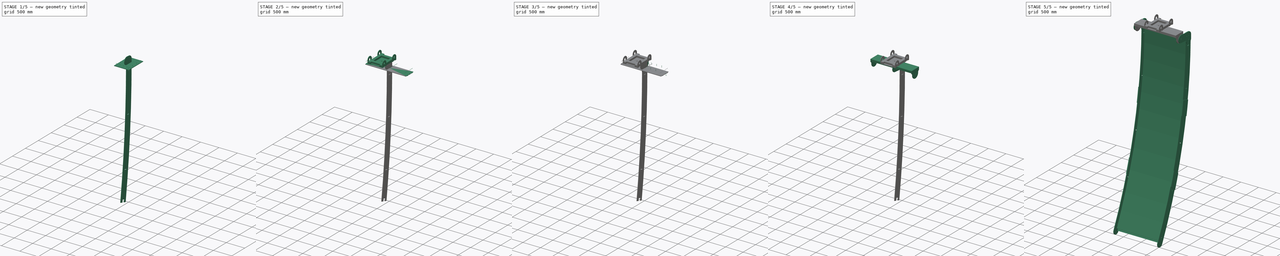
[diagram: build sequence overview — one tinted view per stage of 5, left to right]
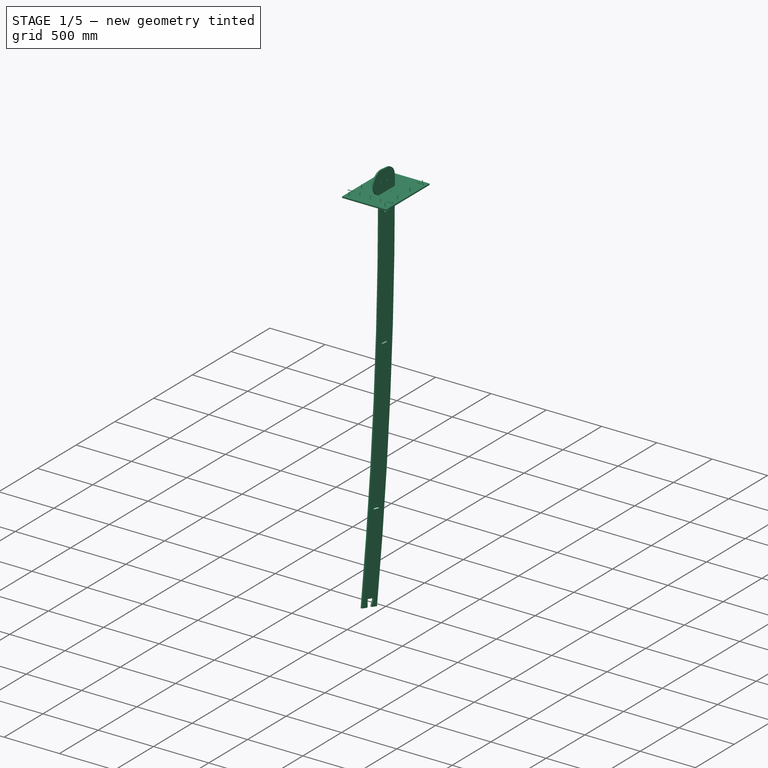
[diagram: stage 1 of 5 — iso view after this stage's code; geometry added in this stage tinted green]
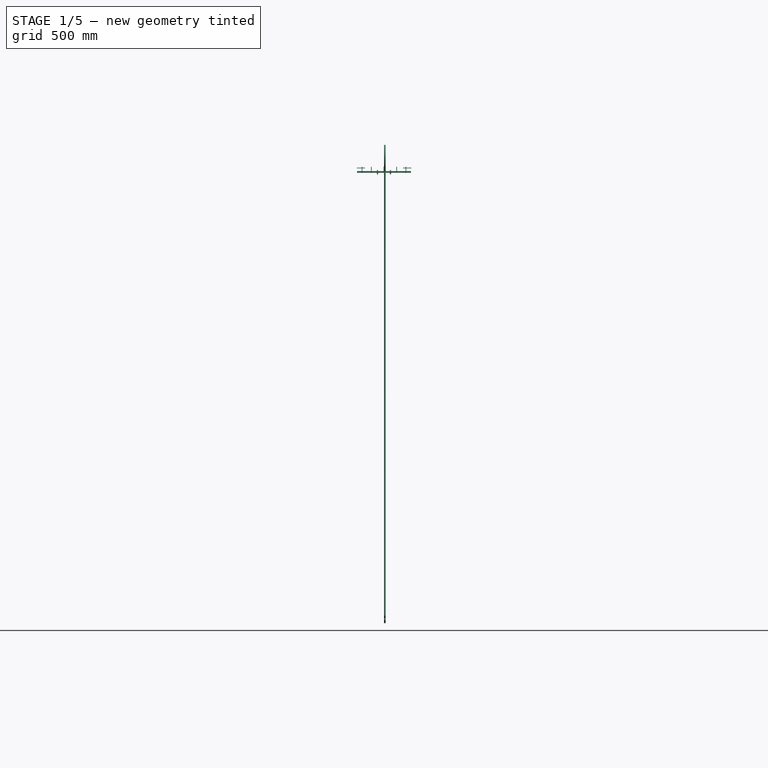
[diagram: stage 1 of 5 — front view after this stage's code; geometry added in this stage tinted green]
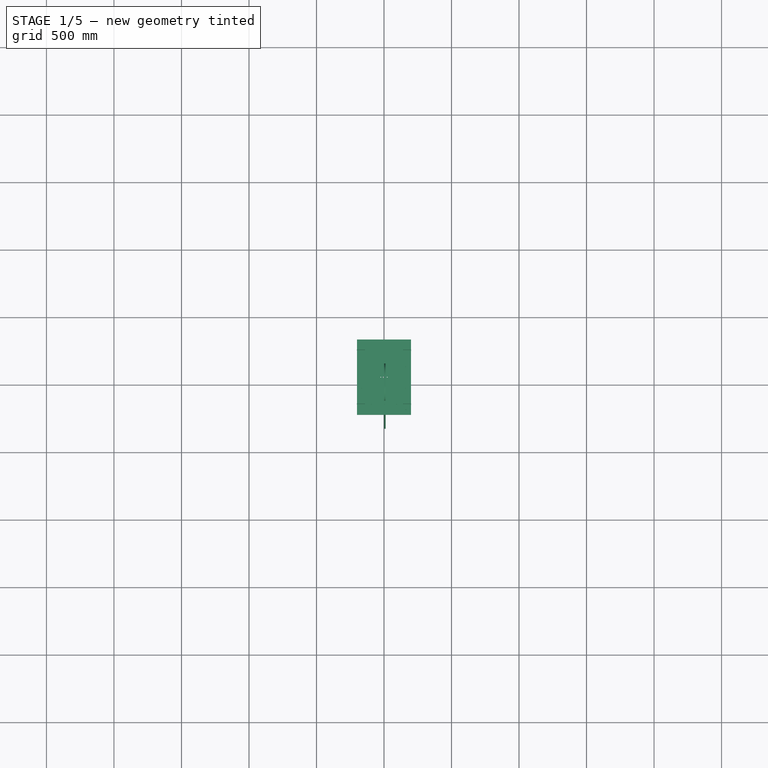
[diagram: stage 1 of 5 — top view after this stage's code; geometry added in this stage tinted green]
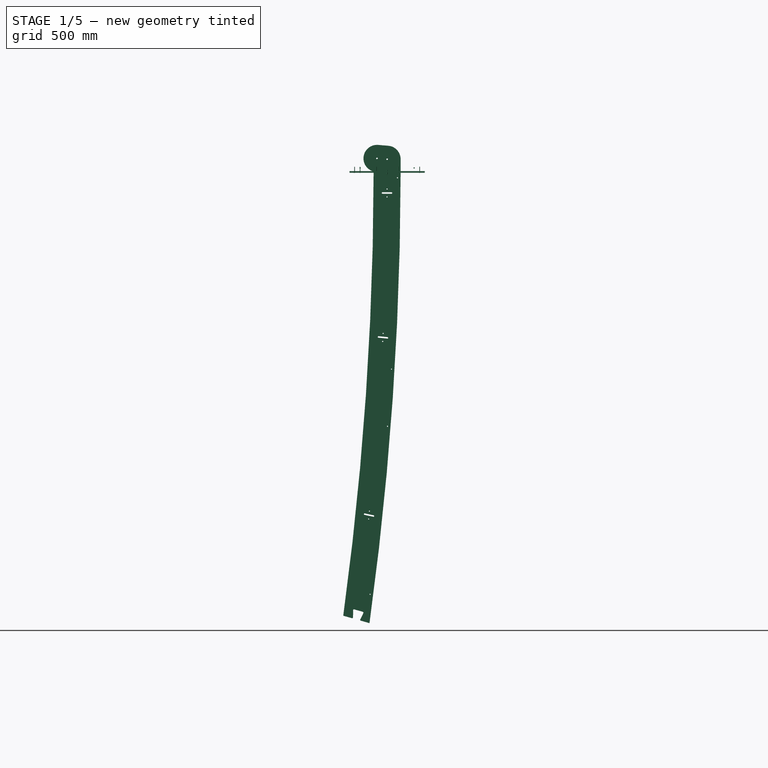
[diagram: stage 1 of 5 — right view after this stage's code; geometry added in this stage tinted green]
FCSTD DOCUMENT  (FreeCAD 0.20R29177 (Git))
Label: full_moon_reflector_merged
License: All rights reserved
LicenseURL: http://en.wikipedia.org/wiki/All_rights_reserved
objects: Part::FeaturePython×100, Sketcher::SketchObject×35, Drawing::FeatureViewPart×21, Part::Compound×19, PartDesign::Pad×13, PartDesign::Body×13, Part::Mirroring×13, Part::Extrusion×11, PartDesign::Hole×10, PartDesign::Pocket×9, Part::Feature×6, PartDesign::Mirrored×4, Drawing::FeaturePage×3, PartDesign::ShapeBinder×3, Spreadsheet::Sheet×2, PartDesign::MultiTransform×2, PartDesign::SubShapeBinder×1
note: 271 computed .brp shape members not serialized (recipe doc carries the construction recipe); baked Part::Feature solids carry a one-line shape summary decoded from their .brp

FEATURE [PartDesign::Body] Body001  label="panel_2"
  Group = -> [Sketch001,Pad001]
  Origin = -> Origin001
  Tip = -> Pad001
FEATURE [Sketcher::SketchObject] Sketch002
  FullyConstrained = true
  MapMode = 5
  Placement = pos=(0,0,0) rot=(0.57735,0.57735,0.57735;2.0944rad)
  Support = -> [YZ_Plane003]
  expr: Constraints[17] = <<d>>.panel_length / 2
  expr: Constraints[25] = <<d>>.sides_width / 2
  expr: Constraints[26] = <<d>>.sides_width / 2
  expr: Constraints[35] = <<d>>.sides_width / 2
  expr: Constraints[36] = <<d>>.sides_width * 1.5
  expr: Constraints[37] = <<d>>.sides_width * (1 / 2 + 1 / 8)
  expr: Constraints[38] = <<d>>.sides_width
  expr: Constraints[56] = <<d>>.sides_thickness
  expr: Constraints[5] = <<d>>.focus_distance
  sketch-geometry (39):
    g0: ArcOfParabola CenterX=0 CenterY=0 CenterZ=0 NormalX=0 NormalY=0 NormalZ=1 Focal=12000 AngleXU=-3.14159 StartAngle=0 EndAngle=4847.74
    g1: GeomPoint X=-12000 Y=0 Z=0
    g2: LineSegment StartX=0 StartY=0 StartZ=0 EndX=-12000 EndY=0 EndZ=0
    g3: LineSegment StartX=0 StartY=0 StartZ=0 EndX=-30.9883 EndY=-1219.61 EndZ=0
    g4: LineSegment StartX=-30.9883 StartY=-1219.61 StartZ=0 EndX=-123.635 EndY=-2436.08 EndZ=0
    g5: LineSegment StartX=-123.635 StartY=-2436.08 StartZ=0 EndX=-277.006 EndY=-3646.4 EndZ=0
    g6: LineSegment StartX=-277.006 StartY=-3646.4 StartZ=0 EndX=-489.595 EndY=-4847.74 EndZ=0
    g7: ArcOfCircle CenterX=-24429.6 CenterY=18.6672 CenterZ=0 NormalX=0 NormalY=0 NormalZ=1 AngleXU=0 Radius=24429.6 StartAngle=6.08264 EndAngle=6.28242
    g8: ArcOfCircle CenterX=-499.606 CenterY=-4896.73 CenterZ=0 NormalX=0 NormalY=0 NormalZ=1 AngleXU=0 Radius=100 StartAngle=2.939 EndAngle=6.0806
    g9: ArcOfCircle CenterX=0 CenterY=100 CenterZ=0 NormalX=0 NormalY=0 NormalZ=1 AngleXU=0 Radius=100.076 StartAngle=6.28242 EndAngle=7.77185
    g10: LineSegment StartX=100 StartY=0 StartZ=0 EndX=100.076 EndY=99.9238 EndZ=0
    g11: LineSegment StartX=-66.7962 StartY=205.913 StartZ=0 EndX=8.21006 EndY=199.739 EndZ=0
    g12: Circle CenterX=-300 CenterY=125 CenterZ=0 NormalX=0 NormalY=0 NormalZ=1 AngleXU=0 Radius=100
    g13: LineSegment StartX=-156.644 StartY=-1640.66 StartZ=0 EndX=-90.4497 EndY=-1649.83 EndZ=0
    g14: LineSegment StartX=-83.6725 StartY=-1643.15 StartZ=0 EndX=-90.3028 EndY=-1590.02 EndZ=0
    g15: LineSegment StartX=-83.5256 StartY=-1583.33 StartZ=0 EndX=-17.3316 EndY=-1592.5 EndZ=0
    g16: LineSegment StartX=-12.4535 StartY=-1600.31 StartZ=0 EndX=-29.1337 EndY=-1651.19 EndZ=0
    g17: LineSegment StartX=-24.2556 StartY=-1659 StartZ=0 EndX=41.9385 EndY=-1668.17 EndZ=0
    g18: ArcOfCircle CenterX=-89.6263 CenterY=-1643.89 CenterZ=0 NormalX=0 NormalY=0 NormalZ=1 AngleXU=0 Radius=6 StartAngle=4.57473 EndAngle=6.40733
    g19: ArcOfCircle CenterX=-84.349 CenterY=-1589.27 CenterZ=0 NormalX=0 NormalY=0 NormalZ=1 AngleXU=0 Radius=6 StartAngle=1.43314 EndAngle=3.26574
    g20: ArcOfCircle CenterX=-18.1549 CenterY=-1598.44 CenterZ=0 NormalX=0 NormalY=0 NormalZ=1 AngleXU=0 Radius=6 StartAngle=5.96639 EndAngle=7.71633
    g21: ArcOfCircle CenterX=-23.4323 CenterY=-1653.06 CenterZ=0 NormalX=0 NormalY=0 NormalZ=1 AngleXU=0 Radius=6 StartAngle=2.8248 EndAngle=4.57473
    g22: LineSegment StartX=-90.4497 StartY=-1649.83 StartZ=0 EndX=-24.2556 EndY=-1659 EndZ=0
    g23: ArcOfCircle CenterX=-24429.6 CenterY=18.6672 CenterZ=0 NormalX=0 NormalY=0 NormalZ=1 AngleXU=0 Radius=24329.6 StartAngle=6.0806 EndAngle=6.21493
    g24: ArcOfCircle CenterX=-24429.6 CenterY=18.6672 CenterZ=0 NormalX=0 NormalY=0 NormalZ=1 AngleXU=0 Radius=24329.6 StartAngle=6.21493 EndAngle=6.28242
    g25: ArcOfCircle CenterX=-24429.6 CenterY=18.6672 CenterZ=0 NormalX=0 NormalY=0 NormalZ=1 AngleXU=0 Radius=24529.6 StartAngle=6.0806 EndAngle=6.21436
    g26: ArcOfCircle CenterX=-24429.6 CenterY=18.6672 CenterZ=0 NormalX=0 NormalY=0 NormalZ=1 AngleXU=0 Radius=24529.6 StartAngle=6.21436 EndAngle=6.28242
    g27: LineSegment StartX=-431.707 StartY=-3251.07 StartZ=0 EndX=-597.56 EndY=-4876.61 EndZ=0
    g28: LineSegment StartX=-100 StartY=0 StartZ=0 EndX=-265.853 EndY=-1625.54 EndZ=0
    g29: LineSegment StartX=-265.853 StartY=-1625.54 StartZ=0 EndX=-431.707 EndY=-3251.07 EndZ=0
    g30: LineSegment StartX=-12000 StartY=0 StartZ=0 EndX=-265.853 EndY=-1625.54 EndZ=0
    g31: LineSegment StartX=-12000 StartY=0 StartZ=0 EndX=-431.707 EndY=-3251.07 EndZ=0
    g32: LineSegment StartX=-17.3316 StartY=-1592.5 StartZ=0 EndX=-26.5015 EndY=-1658.69 EndZ=0
    g33: ArcOfCircle CenterX=-112.747 CenterY=0.00977993 CenterZ=0 NormalX=0 NormalY=0 NormalZ=1 AngleXU=0 Radius=12.7466 StartAngle=6.28242 EndAngle=7.5126
    g34: LineSegment StartX=-150 StartY=112.5 StartZ=0 EndX=-75 EndY=106.25 EndZ=0
    g35: LineSegment StartX=-75 StartY=106.25 StartZ=0 EndX=0 EndY=100 EndZ=0
    g36: LineSegment StartX=-300 StartY=125 StartZ=0 EndX=-225 EndY=118.75 EndZ=0
    g37: LineSegment StartX=-225 StartY=118.75 StartZ=0 EndX=-150 EndY=112.5 EndZ=0
    g38: ArcOfCircle CenterX=-75 CenterY=106.25 CenterZ=0 NormalX=0 NormalY=0 NormalZ=1 AngleXU=0 Radius=100 StartAngle=1.48867 EndAngle=4.37101
  constraints (100):
    c: InternalAlignment(g1,g0)
    c: Coincident(g1,g2)
    c: Coincident(g0,g2)
    c: PointOnObject(g1,g-1)
    c: Coincident(g0,g-1)
    c: Distance(g2) = 12000
    c: Coincident(g3,g0)
    c: PointOnObject(g3,g0)
    c: Coincident(g3,g4)
    c: PointOnObject(g4,g0)
    c: Coincident(g4,g5)
    c: PointOnObject(g5,g0)
    c: Coincident(g6,g5)
    c: Coincident(g6,g0)
    c: Equal(g6,g5)
    c: Equal(g5,g4)
    c: Equal(g4,g3)
    c: Distance(g3) = 1220
    c: Coincident(g7,g0)
    c: Coincident(g7,g0)
    c: PointOnObject(g4,g7)
    c: Coincident(g23,g7)
    c: PointOnObject(g24,g2)
    c: Coincident(g25,g7)
    c: PointOnObject(g26,g-1)
    c: DistanceX(g24,g7) = 100
    c: DistanceX(g7,g26) = 100
    c: Tangent(g8,g23) = 1.5708
    c: Tangent(g8,g25) = -1.5708
    c: Distance(g7,g8) = 50
    c: PointOnObject(g9,g-2)
    c: PointOnObject(g7,g2)
    c: Tangent(g10,g26) = -1.5708
    c: Tangent(g10,g9) = -1.5708
    c: Tangent(g11,g9) = 1.5708
    c: DistanceY(g-1,g9) = 100
    c: DistanceX(g12,g0) = 300
    c: DistanceY(g0,g12) = 125
    c: Diameter(g12) = 200
    c: Coincident(g36,g12)
    c: Coincident(g35,g9)
    c: Coincident(g37,g34)
    c: Equal(g13,g17)
    c: Angle(g14,g13) = 1.309
    c: Tangent(g14,g18) = -1.5708
    c: Tangent(g13,g18) = -1.5708
    c: Tangent(g14,g19) = 1.5708
    c: Tangent(g15,g19) = 1.5708
    c: Tangent(g15,g20) = 1.5708
    c: Tangent(g16,g20) = 1.5708
    c: Tangent(g17,g21) = -1.5708
    c: Tangent(g16,g21) = -1.5708
    c: Coincident(g22,g13)
    c: Coincident(g22,g17)
    c: Equal(g13,g22)
    c: Equal(g15,g17)
    c: Diameter(g21) = 12
    c: Equal(g18,g21)
    c: Equal(g21,g19)
    c: Equal(g19,g20)
    c: Coincident(g23,g24)
    c: Coincident(g23,g24)
    c: Coincident(g23,g13)
    c: Coincident(g25,g26)
    c: Coincident(g25,g26)
    c: Coincident(g25,g17)
    c: Coincident(g27,g8)
    c: Coincident(g29,g27)
    c: Coincident(g28,g29)
    c: Equal(g28,g29)
    c: Equal(g29,g27)
    c: PointOnObject(g28,g27)
    c: PointOnObject(g27,g28)
    c: Coincident(g30,g1)
    c: Coincident(g30,g28)
    c: Coincident(g31,g1)
    c: Coincident(g31,g27)
    c: PointOnObject(g13,g17)
    c: PointOnObject(g17,g13)
    c: Parallel(g15,g22)
    c: PointOnObject(g13,g30)
    c: Parallel(g13,g30)
    c: Coincident(g32,g15)
    c: PointOnObject(g32,g22)
    c: Equal(g32,g15)
    c: Perpendicular(g15,g32)
    c: Coincident(g34,g35)
    c: Equal(g34,g35)
    c: Coincident(g36,g37)
    c: Parallel(g36,g34)
    c: Parallel(g37,g34)
    c: Parallel(g36,g35)
    c: Equal(g36,g37)
    c: Equal(g37,g34)
    c: Coincident(g38,g34)
    c: Tangent(g11,g38) = 1.5708
    c: Equal(g38,g12)
    c: Tangent(g33,g38) = 1.5708
    c: Coincident(g28,g24)
    c: Tangent(g33,g24) = -1.5708
FEATURE [PartDesign::Pad] Pad002
  Direction = (1,-2e-16,3e-16)
  Length = 12
  Length2 = 10
  Placement = pos=(0,0,0) rot=(0.57735,0.57735,0.57735;2.0944rad)
  Profile = -> Sketch002
  ReferenceAxis = -> Sketch002 [N_Axis]
  Type = 0
  expr: Length = <<d>>.sides_thickness
FEATURE [Sketcher::SketchObject] Sketch005
  FullyConstrained = false
  MapMode = 5
  Placement = pos=(0,0,0) rot=(0.57735,0.57735,0.57735;2.0944rad)
  Support = -> [YZ_Plane003]
  expr: Constraints[17] = <<d>>.screws_diam
  expr: Constraints[1] = <<d>>.sides_width / 2
  expr: Constraints[2] = <<d>>.sides_width * 1.5
  expr: Constraints[3] = <<d>>.sides_width * (1 / 2 + 1 / 8)
  sketch-geometry (8):
    g0: Circle CenterX=-300 CenterY=125 CenterZ=0 NormalX=0 NormalY=0 NormalZ=1 AngleXU=0 Radius=10
    g1: Circle CenterX=0 CenterY=100 CenterZ=0 NormalX=0 NormalY=0 NormalZ=1 AngleXU=0 Radius=5
    g2: LineSegment StartX=-300 StartY=125 StartZ=0 EndX=-225 EndY=118.75 EndZ=0
    g3: LineSegment StartX=-225 StartY=118.75 StartZ=0 EndX=-150 EndY=112.5 EndZ=0
    g4: LineSegment StartX=-150 StartY=112.5 StartZ=0 EndX=-75 EndY=106.25 EndZ=0
    g5: LineSegment StartX=-75 StartY=106.25 StartZ=0 EndX=0 EndY=100 EndZ=0
    g6: Circle CenterX=-75 CenterY=106.25 CenterZ=0 NormalX=0 NormalY=0 NormalZ=1 AngleXU=0 Radius=5
    g7: Circle CenterX=0 CenterY=0 CenterZ=0 NormalX=0 NormalY=0 NormalZ=1 AngleXU=0 Radius=5
  constraints (20):
    c: PointOnObject(g1,g-2)
    c: DistanceY(g-1,g1) = 100
    c: DistanceX(g0,g-1) = 300
    c: DistanceY(g-1,g0) = 125
    c: Coincident(g2,g0)
    c: Coincident(g4,g3)
    c: Coincident(g5,g1)
    c: Coincident(g2,g3)
    c: Coincident(g4,g5)
    c: Parallel(g4,g2)
    c: Parallel(g5,g2)
    c: Parallel(g4,g3)
    c: Equal(g5,g4)
    c: Equal(g4,g3)
    c: Equal(g3,g2)
    c: Coincident(g6,g4)
    c: Equal(g6,g1)
    c: Diameter(g1) = 10
    c: Coincident(g7,g-1)
    c: Equal(g7,g1)
FEATURE [PartDesign::Hole] Hole  label="Hole screws"
  BaseFeature = -> Pad002
  CustomThreadClearance = 0
  Depth = 10590.9
  DepthType = 1
  Diameter = 11
  DrillForDepth = false
  DrillPoint = 1
  DrillPointAngle = 118
  HoleCutCountersinkAngle = 90
  HoleCutCustomValues = false
  HoleCutDepth = 0
  HoleCutDiameter = 6.1
  HoleCutType = 0
  ModelThread = false
  Placement = pos=(0,0,0) rot=(0.57735,0.57735,0.57735;2.0944rad)
  Profile = -> Sketch005
  Reversed = true
  Tapered = false
  TaperedAngle = 90
  ThreadClass = 0
  ThreadDepth = 10590.9
  ThreadDepthType = 0
  ThreadDirection = 0
  ThreadFit = 0
  ThreadSize = 18
  ThreadType = 1
  Threaded = false
  UseCustomThreadClearance = false
FEATURE [Sketcher::SketchObject] Sketch015
  FullyConstrained = true
  MapMode = 5
  Placement = pos=(0,0,0) rot=(0.57735,0.57735,0.57735;2.0944rad)
  Support = -> [YZ_Plane003]
  expr: Constraints[100] = <<d>>.tool_diam
  expr: Constraints[106] = <<d>>.tool_diam
  expr: Constraints[112] = <<d>>.tool_diam
  expr: Constraints[17] = <<d>>.panel_length / 2
  expr: Constraints[27] = <<d>>.screws_diam + 1
  expr: Constraints[28] = <<d>>.sides_width / 3
  expr: Constraints[30] = <<d>>.sides_width / 4 * 3
  expr: Constraints[5] = <<d>>.focus_distance
  expr: Constraints[67] = <<d>>.sides_width / 2
  expr: Constraints[84] = <<d>>.sides_width / 2
  sketch-geometry (44):
    g0: ArcOfParabola CenterX=0 CenterY=0 CenterZ=0 NormalX=0 NormalY=0 NormalZ=1 Focal=12000 AngleXU=-3.14159 StartAngle=0 EndAngle=4847.74
    g1: GeomPoint X=-12000 Y=0 Z=0
    g2: LineSegment StartX=0 StartY=0 StartZ=0 EndX=-12000 EndY=0 EndZ=0
    g3: LineSegment StartX=0 StartY=0 StartZ=0 EndX=-30.9883 EndY=-1219.61 EndZ=0
    g4: LineSegment StartX=-30.9883 StartY=-1219.61 StartZ=0 EndX=-123.635 EndY=-2436.08 EndZ=0
    g5: LineSegment StartX=-123.635 StartY=-2436.08 StartZ=0 EndX=-277.006 EndY=-3646.4 EndZ=0
    g6: LineSegment StartX=-277.006 StartY=-3646.4 StartZ=0 EndX=-489.595 EndY=-4847.74 EndZ=0
    g7: ArcOfCircle CenterX=-24429.6 CenterY=18.6672 CenterZ=0 NormalX=0 NormalY=0 NormalZ=1 AngleXU=0 Radius=24429.6 StartAngle=6.08264 EndAngle=6.28242
    g8: ArcOfCircle CenterX=-64.1499 CenterY=-1216.23 CenterZ=0 NormalX=0 NormalY=0 NormalZ=1 AngleXU=0 Radius=5.5 StartAngle=1.46925 EndAngle=4.61084
    g9: ArcOfCircle CenterX=2.17329 CenterY=-1222.99 CenterZ=0 NormalX=0 NormalY=0 NormalZ=1 AngleXU=0 Radius=5.5 StartAngle=4.61084 EndAngle=7.75244
    g10: LineSegment StartX=-64.7075 StartY=-1221.7 StartZ=0 EndX=1.61575 EndY=-1228.46 EndZ=0
    g11: LineSegment StartX=2.73084 StartY=-1217.51 StartZ=0 EndX=-63.5924 EndY=-1210.76 EndZ=0
    g12: ArcOfCircle CenterX=-33.8021 CenterY=-149.999 CenterZ=0 NormalX=0 NormalY=0 NormalZ=1 AngleXU=0 Radius=5.5 StartAngle=1.5708 EndAngle=4.71239
    g13: ArcOfCircle CenterX=32.8646 CenterY=-149.999 CenterZ=0 NormalX=0 NormalY=0 NormalZ=1 AngleXU=0 Radius=5.5 StartAngle=4.71239 EndAngle=7.85398
    g14: LineSegment StartX=-33.8021 StartY=-155.499 StartZ=0 EndX=32.8646 EndY=-155.499 EndZ=0
    g15: LineSegment StartX=32.8646 StartY=-144.499 StartZ=0 EndX=-33.8021 EndY=-144.499 EndZ=0
    g16: Circle CenterX=-0.468745 CenterY=-149.999 CenterZ=0 NormalX=0 NormalY=0 NormalZ=1 AngleXU=0 Radius=33.3333
    g17: Circle CenterX=-30.9883 CenterY=-1219.61 CenterZ=0 NormalX=0 NormalY=0 NormalZ=1 AngleXU=0 Radius=33.784
    g18: ArcOfCircle CenterX=-166.535 CenterY=-2528.59 CenterZ=0 NormalX=0 NormalY=0 NormalZ=1 AngleXU=0 Radius=5.5 StartAngle=1.36028 EndAngle=4.50187
    g19: ArcOfCircle CenterX=-101.34 CenterY=-2542.52 CenterZ=0 NormalX=0 NormalY=0 NormalZ=1 AngleXU=0 Radius=5.5 StartAngle=4.50187 EndAngle=7.64347
    g20: LineSegment StartX=-167.685 StartY=-2533.96 StartZ=0 EndX=-102.49 EndY=-2547.9 EndZ=0
    g21: LineSegment StartX=-100.191 StartY=-2537.14 StartZ=0 EndX=-165.386 EndY=-2523.21 EndZ=0
    g22: Circle CenterX=-133.938 CenterY=-2535.55 CenterZ=0 NormalX=0 NormalY=0 NormalZ=1 AngleXU=0 Radius=33.3333
    g23: ArcOfCircle CenterX=-308.835 CenterY=-3636.5 CenterZ=0 NormalX=0 NormalY=0 NormalZ=1 AngleXU=0 Radius=5.5 StartAngle=1.26924 EndAngle=4.41083
    g24: ArcOfCircle CenterX=-245.176 CenterY=-3656.31 CenterZ=0 NormalX=0 NormalY=0 NormalZ=1 AngleXU=0 Radius=5.5 StartAngle=4.41083 EndAngle=7.55242
    g25: LineSegment StartX=-310.468 StartY=-3641.76 StartZ=0 EndX=-246.81 EndY=-3661.56 EndZ=0
    g26: LineSegment StartX=-243.543 StartY=-3651.05 StartZ=0 EndX=-307.201 EndY=-3631.25 EndZ=0
    g27: LineSegment StartX=-308.835 StartY=-3636.5 StartZ=0 EndX=-245.176 EndY=-3656.31 EndZ=0
    g28: Circle CenterX=-277.006 CenterY=-3646.4 CenterZ=0 NormalX=0 NormalY=0 NormalZ=1 AngleXU=0 Radius=33.3333
    g29: LineSegment StartX=-166.535 StartY=-2528.59 StartZ=0 EndX=-101.34 EndY=-2542.52 EndZ=0
    g30: ArcOfCircle CenterX=-500.81 CenterY=-4736.98 CenterZ=0 NormalX=0 NormalY=0 NormalZ=1 AngleXU=0 Radius=5.5 StartAngle=1.18004 EndAngle=4.32163
    g31: ArcOfCircle CenterX=-439.168 CenterY=-4762.38 CenterZ=0 NormalX=0 NormalY=0 NormalZ=1 AngleXU=0 Radius=5.5 StartAngle=4.32163 EndAngle=7.46322
    g32: LineSegment StartX=-502.904 StartY=-4742.07 StartZ=0 EndX=-441.263 EndY=-4767.46 EndZ=0
    g33: LineSegment StartX=-437.073 StartY=-4757.29 StartZ=0 EndX=-498.715 EndY=-4731.9 EndZ=0
    g34: LineSegment StartX=-500.81 StartY=-4736.98 StartZ=0 EndX=-439.168 EndY=-4762.38 EndZ=0
    g35: Circle CenterX=-469.989 CenterY=-4749.68 CenterZ=0 NormalX=0 NormalY=0 NormalZ=1 AngleXU=0 Radius=33.3333
    g36: LineSegment StartX=2.17329 StartY=-1222.99 StartZ=0 EndX=-64.1499 EndY=-1216.23 EndZ=0
    g37: LineSegment StartX=-33.8021 StartY=-149.999 StartZ=0 EndX=32.8646 EndY=-149.999 EndZ=0
    g38: Circle CenterX=-0.303341 CenterY=-120.666 CenterZ=0 NormalX=0 NormalY=0 NormalZ=1 AngleXU=0 Radius=4
    g39: Circle CenterX=-0.669999 CenterY=-179.332 CenterZ=0 NormalX=0 NormalY=0 NormalZ=1 AngleXU=0 Radius=4
    g40: Circle CenterX=-29.4951 CenterY=-1189.86 CenterZ=0 NormalX=0 NormalY=0 NormalZ=1 AngleXU=0 Radius=4
    g41: Circle CenterX=-32.5183 CenterY=-1249.35 CenterZ=0 NormalX=0 NormalY=0 NormalZ=1 AngleXU=0 Radius=4
    g42: Circle CenterX=-130.874 CenterY=-2506.38 CenterZ=0 NormalX=0 NormalY=0 NormalZ=1 AngleXU=0 Radius=4
    g43: Circle CenterX=-136.972 CenterY=-2564.73 CenterZ=0 NormalX=0 NormalY=0 NormalZ=1 AngleXU=0 Radius=4
  constraints (113):
    c: InternalAlignment(g1,g0)
    c: Coincident(g1,g2)
    c: Coincident(g0,g2)
    c: PointOnObject(g1,g-1)
    c: Coincident(g0,g-1)
    c: Distance(g2) = 12000
    c: Coincident(g3,g0)
    c: PointOnObject(g3,g0)
    c: Coincident(g3,g4)
    c: PointOnObject(g4,g0)
    c: Coincident(g4,g5)
    c: PointOnObject(g5,g0)
    c: Coincident(g6,g5)
    c: Coincident(g6,g0)
    c: Equal(g6,g5)
    c: Equal(g5,g4)
    c: Equal(g4,g3)
    c: Distance(g3) = 1220
    c: Coincident(g7,g0)
    c: Coincident(g7,g0)
    c: PointOnObject(g4,g7)
    c: PointOnObject(g7,g2)
    c: Tangent(g8,g10) = -1.5708
    c: Tangent(g10,g9) = -1.5708
    c: Tangent(g9,g11) = -1.5708
    c: Tangent(g11,g8) = -1.5708
    c: Equal(g8,g9)
    c: Diameter(g9) = 11
    c: Distance(g11) = 66.6667
    c: PointOnObject(g16,g0)
    c: Distance(g0,g16) = 150
    c: Tangent(g12,g14) = -1.5708
    c: Tangent(g14,g13) = -1.5708
    c: Tangent(g13,g15) = -1.5708
    c: Tangent(g15,g12) = -1.5708
    c: Equal(g12,g13)
    c: Horizontal(g14)
    c: PointOnObject(g12,g16)
    c: PointOnObject(g13,g16)
    c: Equal(g15,g11)
    c: Equal(g13,g9)
    c: Coincident(g17,g3)
    c: PointOnObject(g8,g17)
    c: PointOnObject(g9,g17)
    c: Tangent(g18,g20) = -1.5708
    c: Tangent(g20,g19) = -1.5708
    c: Tangent(g19,g21) = -1.5708
    c: Tangent(g21,g18) = -1.5708
    c: Equal(g18,g19)
    c: PointOnObject(g18,g22)
    c: PointOnObject(g19,g22)
    c: Equal(g21,g11)
    c: Equal(g9,g19)
    c: Tangent(g23,g25) = -1.5708
    c: Tangent(g25,g24) = -1.5708
    c: Tangent(g24,g26) = -1.5708
    c: Tangent(g26,g23) = -1.5708
    c: Equal(g23,g24)
    c: Coincident(g27,g23)
    c: Coincident(g27,g24)
    c: PointOnObject(g5,g27)
    c: PointOnObject(g1,g27)
    c: Coincident(g28,g5)
    c: PointOnObject(g23,g28)
    c: PointOnObject(g24,g28)
    c: Equal(g21,g26)
    c: PointOnObject(g22,g0)
    c: Distance(g22,g4) = 100
    c: Coincident(g29,g18)
    c: Coincident(g29,g19)
    c: PointOnObject(g22,g29)
    c: PointOnObject(g1,g29)
    c: Equal(g24,g19)
    c: Tangent(g30,g32) = -1.5708
    c: Tangent(g32,g31) = -1.5708
    c: Tangent(g31,g33) = -1.5708
    c: Tangent(g33,g30) = -1.5708
    c: Equal(g30,g31)
    c: Coincident(g34,g30)
    c: Coincident(g34,g31)
    c: PointOnObject(g35,g34)
    c: PointOnObject(g30,g35)
    c: PointOnObject(g31,g35)
    c: PointOnObject(g35,g0)
    c: Distance(g0,g35) = 100
    c: Equal(g25,g33)
    c: Equal(g24,g31)
    c: PointOnObject(g1,g34)
    c: Coincident(g36,g9)
    c: Coincident(g36,g8)
    c: PointOnObject(g3,g36)
    c: PointOnObject(g1,g36)
    c: Coincident(g37,g12)
    c: Coincident(g37,g13)
    c: PointOnObject(g16,g37)
    c: PointOnObject(g38,g0)
    c: Tangent(g38,g16)
    c: PointOnObject(g39,g0)
    c: Tangent(g39,g16)
    c: Equal(g38,g39)
    c: Diameter(g38) = 8
    c: PointOnObject(g40,g0)
    c: Tangent(g40,g17)
    c: PointOnObject(g41,g0)
    c: Tangent(g41,g17)
    c: Equal(g41,g40)
    c: Diameter(g41) = 8
    c: PointOnObject(g42,g0)
    c: Tangent(g42,g22)
    c: PointOnObject(g43,g7)
    c: Tangent(g43,g22)
    c: Equal(g42,g43)
    c: Diameter(g42) = 8
FEATURE [PartDesign::Pocket] Pocket002  label="Tolerances"
  BaseFeature = -> Hole
  Direction = (-1,2e-16,-3e-16)
  Length = 5
  Length2 = 5
  Placement = pos=(0,0,0) rot=(0.57735,0.57735,0.57735;2.0944rad)
  Profile = -> Sketch015
  ReferenceAxis = -> Sketch015 [N_Axis]
  Reversed = true
  Type = 1
FEATURE [Sketcher::SketchObject] Sketch016
  FullyConstrained = true
  MapMode = 5
  Placement = pos=(0,0,0) rot=(0.57735,0.57735,0.57735;2.0944rad)
  Support = -> [YZ_Plane008]
  expr: Constraints[17] = <<d>>.panel_length / 2
  expr: Constraints[25] = <<d>>.sides_width / 2
  expr: Constraints[26] = <<d>>.sides_width / 2
  expr: Constraints[35] = <<d>>.sides_width
  expr: Constraints[36] = <<d>>.sides_width * 2
  expr: Constraints[37] = <<d>>.sides_width * 2
  expr: Constraints[38] = <<d>>.sides_width
  expr: Constraints[45] = <<d>>.sides_width
  expr: Constraints[5] = <<d>>.focus_distance
  expr: Constraints[68] = <<d>>.sides_thickness
  sketch-geometry (38):
    g0: ArcOfParabola CenterX=0 CenterY=0 CenterZ=0 NormalX=0 NormalY=0 NormalZ=1 Focal=12000 AngleXU=-3.14159 StartAngle=0 EndAngle=4847.74
    g1: GeomPoint X=-12000 Y=0 Z=0
    g2: LineSegment StartX=0 StartY=0 StartZ=0 EndX=-12000 EndY=0 EndZ=0
    g3: LineSegment StartX=0 StartY=0 StartZ=0 EndX=-30.9883 EndY=-1219.61 EndZ=0
    g4: LineSegment StartX=-30.9883 StartY=-1219.61 StartZ=0 EndX=-123.635 EndY=-2436.08 EndZ=0
    g5: LineSegment StartX=-123.635 StartY=-2436.08 StartZ=0 EndX=-277.006 EndY=-3646.4 EndZ=0
    g6: LineSegment StartX=-277.006 StartY=-3646.4 StartZ=0 EndX=-489.595 EndY=-4847.74 EndZ=0
    g7: ArcOfCircle CenterX=-24429.6 CenterY=18.6672 CenterZ=0 NormalX=0 NormalY=0 NormalZ=1 AngleXU=0 Radius=24429.6 StartAngle=6.08264 EndAngle=6.28242
    g8: ArcOfCircle CenterX=-499.606 CenterY=-4896.73 CenterZ=0 NormalX=0 NormalY=0 NormalZ=1 AngleXU=0 Radius=100 StartAngle=2.939 EndAngle=6.0806
    g9: ArcOfCircle CenterX=0 CenterY=200 CenterZ=0 NormalX=0 NormalY=0 NormalZ=1 AngleXU=0 Radius=100.152 StartAngle=6.28242 EndAngle=7.39101
    g10: LineSegment StartX=100 StartY=0 StartZ=0 EndX=100.152 EndY=199.924 EndZ=0
    g11: LineSegment StartX=-155.34 StartY=389.473 StartZ=0 EndX=44.7284 EndY=289.609 EndZ=0
    g12: Circle CenterX=-400 CenterY=400 CenterZ=0 NormalX=0 NormalY=0 NormalZ=1 AngleXU=0 Radius=100
    g13: LineSegment StartX=-100 StartY=0 StartZ=0 EndX=-100 EndY=76.3751 EndZ=0
    g14: LineSegment StartX=-400 StartY=400 StartZ=0 EndX=-200 EndY=300 EndZ=0
    g15: LineSegment StartX=-200 StartY=300 StartZ=0 EndX=0 EndY=200 EndZ=0
    g16: ArcOfCircle CenterX=-200 CenterY=300 CenterZ=0 NormalX=0 NormalY=0 NormalZ=1 AngleXU=0 Radius=100 StartAngle=1.10783 EndAngle=4.24942
    g17: LineSegment StartX=-244.66 StartY=210.527 StartZ=0 EndX=-155.424 EndY=165.984 EndZ=0
    g18: ArcOfCircle CenterX=-200.152 CenterY=76.3751 CenterZ=0 NormalX=0 NormalY=0 NormalZ=1 AngleXU=0 Radius=100.152 StartAngle=0 EndAngle=1.10783
    g19: LineSegment StartX=-324.803 StartY=-3281.11 StartZ=0 EndX=-260.012 EndY=-3299.32 EndZ=0
    g20: LineSegment StartX=-252.39 StartY=-3293.62 StartZ=0 EndX=-251.732 EndY=-3239.59 EndZ=0
    g21: LineSegment StartX=-244.109 StartY=-3233.88 StartZ=0 EndX=-179.319 EndY=-3252.09 EndZ=0
    g22: LineSegment StartX=-175.537 StartY=-3260.47 StartZ=0 EndX=-199.003 EndY=-3309.15 EndZ=0
    g23: LineSegment StartX=-195.222 StartY=-3317.53 StartZ=0 EndX=-130.431 EndY=-3335.74 EndZ=0
    g24: ArcOfCircle CenterX=-258.389 CenterY=-3293.55 CenterZ=0 NormalX=0 NormalY=0 NormalZ=1 AngleXU=0 Radius=6 StartAngle=4.43842 EndAngle=6.27102
    g25: ArcOfCircle CenterX=-245.733 CenterY=-3239.66 CenterZ=0 NormalX=0 NormalY=0 NormalZ=1 AngleXU=0 Radius=6 StartAngle=1.29683 EndAngle=3.12943
    g26: ArcOfCircle CenterX=-180.942 CenterY=-3257.87 CenterZ=0 NormalX=0 NormalY=0 NormalZ=1 AngleXU=0 Radius=6 StartAngle=5.83396 EndAngle=7.58002
    g27: ArcOfCircle CenterX=-193.599 CenterY=-3311.76 CenterZ=0 NormalX=0 NormalY=0 NormalZ=1 AngleXU=0 Radius=6 StartAngle=2.69237 EndAngle=4.43842
    g28: LineSegment StartX=-260.012 StartY=-3299.32 StartZ=0 EndX=-195.222 EndY=-3317.53 EndZ=0
    g29: ArcOfCircle CenterX=-24429.6 CenterY=18.6672 CenterZ=0 NormalX=0 NormalY=0 NormalZ=1 AngleXU=0 Radius=24329.6 StartAngle=6.0806 EndAngle=6.14714
    g30: ArcOfCircle CenterX=-24429.6 CenterY=18.6672 CenterZ=0 NormalX=0 NormalY=0 NormalZ=1 AngleXU=0 Radius=24329.6 StartAngle=6.14714 EndAngle=6.28242
    g31: ArcOfCircle CenterX=-24429.6 CenterY=18.6672 CenterZ=0 NormalX=0 NormalY=0 NormalZ=1 AngleXU=0 Radius=24529.6 StartAngle=6.0806 EndAngle=6.14601
    g32: ArcOfCircle CenterX=-24429.6 CenterY=18.6672 CenterZ=0 NormalX=0 NormalY=0 NormalZ=1 AngleXU=0 Radius=24529.6 StartAngle=6.14601 EndAngle=6.28242
    g33: LineSegment StartX=-100 StartY=0 StartZ=0 EndX=-265.853 EndY=-1625.54 EndZ=0
    g34: LineSegment StartX=-265.853 StartY=-1625.54 StartZ=0 EndX=-431.707 EndY=-3251.07 EndZ=0
    g35: LineSegment StartX=-431.707 StartY=-3251.07 StartZ=0 EndX=-597.56 EndY=-4876.61 EndZ=0
    g36: LineSegment StartX=-12000 StartY=0 StartZ=0 EndX=-431.707 EndY=-3251.07 EndZ=0
    g37: LineSegment StartX=-179.319 StartY=-3252.09 StartZ=0 EndX=-197.527 EndY=-3316.88 EndZ=0
  constraints (97):
    c: InternalAlignment(g1,g0)
    c: Coincident(g1,g2)
    c: Coincident(g0,g2)
    c: PointOnObject(g1,g-1)
    c: Coincident(g0,g-1)
    c: Distance(g2) = 12000
    c: Coincident(g3,g0)
    c: PointOnObject(g3,g0)
    c: Coincident(g3,g4)
    c: PointOnObject(g4,g0)
    c: Coincident(g4,g5)
    c: PointOnObject(g5,g0)
    c: Coincident(g6,g5)
    c: Coincident(g6,g0)
    c: Equal(g6,g5)
    c: Equal(g5,g4)
    c: Equal(g4,g3)
    c: Distance(g3) = 1220
    c: Coincident(g7,g0)
    c: Coincident(g7,g0)
    c: PointOnObject(g4,g7)
    c: Coincident(g29,g7)
    c: PointOnObject(g30,g2)
    c: Coincident(g31,g7)
    c: PointOnObject(g32,g-1)
    c: DistanceX(g30,g7) = 100
    c: DistanceX(g7,g32) = 100
    c: Tangent(g8,g29) = 1.5708
    c: Tangent(g8,g31) = -1.5708
    c: Distance(g7,g8) = 50
    c: PointOnObject(g9,g-2)
    c: PointOnObject(g7,g2)
    c: Tangent(g10,g32) = -1.5708
    c: Tangent(g10,g9) = -1.5708
    c: Tangent(g11,g9) = 1.5708
    c: DistanceY(g-1,g9) = 200
    c: DistanceX(g12,g0) = 400
    c: DistanceY(g0,g12) = 400
    c: Diameter(g12) = 200
    c: Coincident(g13,g30)
    c: Coincident(g14,g12)
    c: Coincident(g15,g9)
    c: Equal(g15,g14)
    c: Parallel(g14,g15)
    c: Coincident(g16,g14)
    c: Diameter(g16) = 200
    c: Tangent(g11,g16) = 1.5708
    c: Coincident(g14,g15)
    c: Vertical(g13)
    c: Parallel(g17,g11)
    c: Tangent(g17,g16) = -1.5708
    c: Tangent(g17,g18) = 1.5708
    c: Tangent(g13,g18) = -1.5708
    c: Equal(g18,g9)
    c: Equal(g19,g23)
    c: Angle(g20,g19) = 1.309
    c: Tangent(g20,g24) = -1.5708
    c: Tangent(g19,g24) = -1.5708
    c: Tangent(g20,g25) = 1.5708
    c: Tangent(g21,g25) = 1.5708
    c: Tangent(g21,g26) = 1.5708
    c: Tangent(g22,g26) = 1.5708
    c: Tangent(g23,g27) = -1.5708
    c: Tangent(g22,g27) = -1.5708
    c: Coincident(g28,g19)
    c: Coincident(g28,g23)
    c: Equal(g19,g28)
    c: Equal(g21,g23)
    c: Diameter(g27) = 12
    c: Equal(g24,g27)
    c: Equal(g27,g25)
    c: Equal(g25,g26)
    c: Coincident(g29,g30)
    c: Coincident(g29,g30)
    c: Coincident(g29,g19)
    c: Coincident(g31,g32)
    c: Coincident(g31,g32)
    c: Coincident(g31,g23)
    c: Coincident(g33,g13)
    c: Coincident(g35,g8)
    c: Coincident(g33,g34)
    c: Coincident(g34,g35)
    c: PointOnObject(g33,g35)
    c: PointOnObject(g34,g33)
    c: Equal(g35,g34)
    c: Equal(g34,g33)
    c: Coincident(g36,g1)
    c: Coincident(g36,g34)
    c: PointOnObject(g19,g23)
    c: PointOnObject(g23,g19)
    c: Parallel(g21,g28)
    c: Coincident(g37,g21)
    c: PointOnObject(g37,g28)
    c: Equal(g37,g21)
    c: Perpendicular(g21,g37)
    c: PointOnObject(g19,g36)
    c: PointOnObject(g23,g36)
FEATURE [Sketcher::SketchObject] Sketch017
  FullyConstrained = true
  MapMode = 5
  Placement = pos=(0,0,0) rot=(0.57735,0.57735,0.57735;2.0944rad)
  Support = -> [YZ_Plane008]
  expr: Constraints[100] = <<d>>.tool_diam
  expr: Constraints[106] = <<d>>.tool_diam
  expr: Constraints[112] = <<d>>.tool_diam
  expr: Constraints[17] = <<d>>.panel_length / 2
  expr: Constraints[27] = <<d>>.screws_diam + 1
  expr: Constraints[28] = <<d>>.sides_width / 3
  expr: Constraints[30] = <<d>>.sides_width / 2
  expr: Constraints[5] = <<d>>.focus_distance
  expr: Constraints[67] = <<d>>.sides_width / 2
  expr: Constraints[84] = <<d>>.sides_width / 2
  sketch-geometry (44):
    g0: ArcOfParabola CenterX=0 CenterY=0 CenterZ=0 NormalX=0 NormalY=0 NormalZ=1 Focal=12000 AngleXU=-3.14159 StartAngle=0 EndAngle=4847.74
    g1: GeomPoint X=-12000 Y=0 Z=0
    g2: LineSegment StartX=0 StartY=0 StartZ=0 EndX=-12000 EndY=0 EndZ=0
    g3: LineSegment StartX=0 StartY=-3.91e-14 StartZ=0 EndX=-30.9883 EndY=-1219.61 EndZ=0
    g4: LineSegment StartX=-30.9883 StartY=-1219.61 StartZ=0 EndX=-123.635 EndY=-2436.08 EndZ=0
    g5: LineSegment StartX=-123.635 StartY=-2436.08 StartZ=0 EndX=-277.006 EndY=-3646.4 EndZ=0
    g6: LineSegment StartX=-277.006 StartY=-3646.4 StartZ=0 EndX=-489.595 EndY=-4847.74 EndZ=0
    g7: ArcOfCircle CenterX=-24429.6 CenterY=18.6672 CenterZ=0 NormalX=0 NormalY=0 NormalZ=1 AngleXU=0 Radius=24429.6 StartAngle=6.08264 EndAngle=6.28242
    g8: ArcOfCircle CenterX=-64.1499 CenterY=-1216.23 CenterZ=0 NormalX=0 NormalY=0 NormalZ=1 AngleXU=0 Radius=5.5 StartAngle=1.46925 EndAngle=4.61084
    g9: ArcOfCircle CenterX=2.17329 CenterY=-1222.99 CenterZ=0 NormalX=0 NormalY=0 NormalZ=1 AngleXU=0 Radius=5.5 StartAngle=4.61084 EndAngle=7.75244
    g10: LineSegment StartX=-64.7075 StartY=-1221.7 StartZ=0 EndX=1.61575 EndY=-1228.46 EndZ=0
    g11: LineSegment StartX=2.73084 StartY=-1217.51 StartZ=0 EndX=-63.5924 EndY=-1210.76 EndZ=0
    g12: ArcOfCircle CenterX=-33.5417 CenterY=-99.9998 CenterZ=0 NormalX=0 NormalY=0 NormalZ=1 AngleXU=0 Radius=5.5 StartAngle=1.5708 EndAngle=4.71239
    g13: ArcOfCircle CenterX=33.125 CenterY=-99.9998 CenterZ=0 NormalX=0 NormalY=0 NormalZ=1 AngleXU=0 Radius=5.5 StartAngle=4.71239 EndAngle=7.85398
    g14: LineSegment StartX=-33.5417 StartY=-105.5 StartZ=0 EndX=33.125 EndY=-105.5 EndZ=0
    g15: LineSegment StartX=33.125 StartY=-94.4998 StartZ=0 EndX=-33.5417 EndY=-94.4998 EndZ=0
    g16: Circle CenterX=-0.208332 CenterY=-99.9998 CenterZ=0 NormalX=0 NormalY=0 NormalZ=1 AngleXU=0 Radius=33.3333
    g17: Circle CenterX=-30.9883 CenterY=-1219.61 CenterZ=0 NormalX=0 NormalY=0 NormalZ=1 AngleXU=0 Radius=33.784
    g18: ArcOfCircle CenterX=-166.535 CenterY=-2528.59 CenterZ=0 NormalX=0 NormalY=0 NormalZ=1 AngleXU=0 Radius=5.5 StartAngle=1.36028 EndAngle=4.50187
    g19: ArcOfCircle CenterX=-101.34 CenterY=-2542.52 CenterZ=0 NormalX=0 NormalY=0 NormalZ=1 AngleXU=0 Radius=5.5 StartAngle=4.50187 EndAngle=7.64347
    g20: LineSegment StartX=-167.685 StartY=-2533.96 StartZ=0 EndX=-102.49 EndY=-2547.9 EndZ=0
    g21: LineSegment StartX=-100.191 StartY=-2537.14 StartZ=0 EndX=-165.386 EndY=-2523.21 EndZ=0
    g22: Circle CenterX=-133.938 CenterY=-2535.55 CenterZ=0 NormalX=0 NormalY=0 NormalZ=1 AngleXU=0 Radius=33.3333
    g23: ArcOfCircle CenterX=-308.835 CenterY=-3636.5 CenterZ=0 NormalX=0 NormalY=0 NormalZ=1 AngleXU=0 Radius=5.5 StartAngle=1.26924 EndAngle=4.41083
    g24: ArcOfCircle CenterX=-245.176 CenterY=-3656.31 CenterZ=0 NormalX=0 NormalY=0 NormalZ=1 AngleXU=0 Radius=5.5 StartAngle=4.41083 EndAngle=7.55242
    g25: LineSegment StartX=-310.468 StartY=-3641.76 StartZ=0 EndX=-246.81 EndY=-3661.56 EndZ=0
    g26: LineSegment StartX=-243.543 StartY=-3651.05 StartZ=0 EndX=-307.201 EndY=-3631.25 EndZ=0
    g27: LineSegment StartX=-308.835 StartY=-3636.5 StartZ=0 EndX=-245.176 EndY=-3656.31 EndZ=0
    g28: Circle CenterX=-277.006 CenterY=-3646.4 CenterZ=0 NormalX=0 NormalY=0 NormalZ=1 AngleXU=0 Radius=33.3333
    g29: LineSegment StartX=-166.535 StartY=-2528.59 StartZ=0 EndX=-101.34 EndY=-2542.52 EndZ=0
    g30: ArcOfCircle CenterX=-500.81 CenterY=-4736.98 CenterZ=0 NormalX=0 NormalY=0 NormalZ=1 AngleXU=0 Radius=5.5 StartAngle=1.18004 EndAngle=4.32163
    g31: ArcOfCircle CenterX=-439.168 CenterY=-4762.38 CenterZ=0 NormalX=0 NormalY=0 NormalZ=1 AngleXU=0 Radius=5.5 StartAngle=4.32163 EndAngle=7.46322
    g32: LineSegment StartX=-502.904 StartY=-4742.07 StartZ=0 EndX=-441.263 EndY=-4767.46 EndZ=0
    g33: LineSegment StartX=-437.073 StartY=-4757.29 StartZ=0 EndX=-498.715 EndY=-4731.9 EndZ=0
    g34: LineSegment StartX=-500.81 StartY=-4736.98 StartZ=0 EndX=-439.168 EndY=-4762.38 EndZ=0
    g35: Circle CenterX=-469.989 CenterY=-4749.68 CenterZ=0 NormalX=0 NormalY=0 NormalZ=1 AngleXU=0 Radius=33.3333
    g36: LineSegment StartX=2.17329 StartY=-1222.99 StartZ=0 EndX=-64.1499 EndY=-1216.23 EndZ=0
    g37: LineSegment StartX=-33.5417 StartY=-99.9998 StartZ=0 EndX=33.125 EndY=-99.9998 EndZ=0
    g38: Circle CenterX=-464.311 CenterY=-4720.9 CenterZ=0 NormalX=0 NormalY=0 NormalZ=1 AngleXU=0 Radius=4
    g39: Circle CenterX=-475.7 CenterY=-4778.45 CenterZ=0 NormalX=0 NormalY=0 NormalZ=1 AngleXU=0 Radius=4
    g40: Circle CenterX=-272.114 CenterY=-3617.48 CenterZ=0 NormalX=0 NormalY=0 NormalZ=1 AngleXU=0 Radius=4
    g41: Circle CenterX=-280.914 CenterY=-3675.48 CenterZ=0 NormalX=0 NormalY=0 NormalZ=1 AngleXU=0 Radius=4
    g42: Circle CenterX=-130.874 CenterY=-2506.38 CenterZ=0 NormalX=0 NormalY=0 NormalZ=1 AngleXU=0 Radius=4
    g43: Circle CenterX=-137.037 CenterY=-2564.72 CenterZ=0 NormalX=0 NormalY=0 NormalZ=1 AngleXU=0 Radius=4
  constraints (113):
    c: InternalAlignment(g1,g0)
    c: Coincident(g1,g2)
    c: Coincident(g0,g2)
    c: PointOnObject(g1,g-1)
    c: Coincident(g0,g-1)
    c: Distance(g2) = 12000
    c: Coincident(g3,g0)
    c: PointOnObject(g3,g0)
    c: Coincident(g3,g4)
    c: PointOnObject(g4,g0)
    c: Coincident(g4,g5)
    c: PointOnObject(g5,g0)
    c: Coincident(g6,g5)
    c: Coincident(g6,g0)
    c: Equal(g6,g5)
    c: Equal(g5,g4)
    c: Equal(g4,g3)
    c: Distance(g3) = 1220
    c: Coincident(g7,g0)
    c: Coincident(g7,g0)
    c: PointOnObject(g4,g7)
    c: PointOnObject(g7,g2)
    c: Tangent(g8,g10) = -1.5708
    c: Tangent(g10,g9) = -1.5708
    c: Tangent(g9,g11) = -1.5708
    c: Tangent(g11,g8) = -1.5708
    c: Equal(g8,g9)
    c: Diameter(g9) = 11
    c: Distance(g11) = 66.6667
    c: PointOnObject(g16,g0)
    c: Distance(g0,g16) = 100
    c: Tangent(g12,g14) = -1.5708
    c: Tangent(g14,g13) = -1.5708
    c: Tangent(g13,g15) = -1.5708
    c: Tangent(g15,g12) = -1.5708
    c: Equal(g12,g13)
    c: Horizontal(g14)
    c: PointOnObject(g12,g16)
    c: PointOnObject(g13,g16)
    c: Equal(g15,g11)
    c: Equal(g13,g9)
    c: Coincident(g17,g3)
    c: PointOnObject(g8,g17)
    c: PointOnObject(g9,g17)
    c: Tangent(g18,g20) = -1.5708
    c: Tangent(g20,g19) = -1.5708
    c: Tangent(g19,g21) = -1.5708
    c: Tangent(g21,g18) = -1.5708
    c: Equal(g18,g19)
    c: PointOnObject(g18,g22)
    c: PointOnObject(g19,g22)
    c: Equal(g21,g11)
    c: Equal(g9,g19)
    c: Tangent(g23,g25) = -1.5708
    c: Tangent(g25,g24) = -1.5708
    c: Tangent(g24,g26) = -1.5708
    c: Tangent(g26,g23) = -1.5708
    c: Equal(g23,g24)
    c: Coincident(g27,g23)
    c: Coincident(g27,g24)
    c: PointOnObject(g5,g27)
    c: PointOnObject(g1,g27)
    c: Coincident(g28,g5)
    c: PointOnObject(g23,g28)
    c: PointOnObject(g24,g28)
    c: Equal(g21,g26)
    c: PointOnObject(g22,g0)
    c: Distance(g22,g4) = 100
    c: Coincident(g29,g18)
    c: Coincident(g29,g19)
    c: PointOnObject(g22,g29)
    c: PointOnObject(g1,g29)
    c: Equal(g24,g19)
    c: Tangent(g30,g32) = -1.5708
    c: Tangent(g32,g31) = -1.5708
    c: Tangent(g31,g33) = -1.5708
    c: Tangent(g33,g30) = -1.5708
    c: Equal(g30,g31)
    c: Coincident(g34,g30)
    c: Coincident(g34,g31)
    c: PointOnObject(g35,g34)
    c: PointOnObject(g30,g35)
    c: PointOnObject(g31,g35)
    c: PointOnObject(g35,g0)
    c: Distance(g0,g35) = 100
    c: Equal(g25,g33)
    c: Equal(g24,g31)
    c: PointOnObject(g1,g34)
    c: Coincident(g36,g9)
    c: Coincident(g36,g8)
    c: PointOnObject(g3,g36)
    c: PointOnObject(g1,g36)
    c: Coincident(g37,g12)
    c: Coincident(g37,g13)
    c: PointOnObject(g16,g37)
    c: PointOnObject(g38,g0)
    c: Tangent(g38,g35)
    c: PointOnObject(g39,g0)
    c: Tangent(g39,g35)
    c: Equal(g39,g38)
    c: Diameter(g39) = 8
    c: PointOnObject(g40,g7)
    c: Tangent(g40,g28)
    c: PointOnObject(g41,g7)
    c: Tangent(g41,g28)
    c: Equal(g41,g40)
    c: Diameter(g41) = 8
    c: PointOnObject(g42,g0)
    c: Tangent(g42,g22)
    c: PointOnObject(g43,g0)
    c: Tangent(g43,g22)
    c: Equal(g43,g42)
    c: Diameter(g43) = 8
FEATURE [PartDesign::Pad] Pad007
  Direction = (1,-2e-16,3e-16)
  Length = 12
  Length2 = 10
  Placement = pos=(0,0,0) rot=(0.57735,0.57735,0.57735;2.0944rad)
  Profile = -> Sketch016
  ReferenceAxis = -> Sketch016 [N_Axis]
  Type = 0
  expr: Length = <<d>>.sides_thickness
FEATURE [PartDesign::Pocket] Pocket003
  BaseFeature = -> Pad007
  Direction = (-1,2e-16,-3e-16)
  Length = 5
  Length2 = 5
  Placement = pos=(0,0,0) rot=(0.57735,0.57735,0.57735;2.0944rad)
  Profile = -> Sketch017
  ReferenceAxis = -> Sketch017 [N_Axis]
  Reversed = true
  Type = 1
FEATURE [PartDesign::Body] Body002  label="panel_seam"
  Group = -> [Sketch026,Pad011]
  Origin = -> Origin002
  Tip = -> Pad011
FEATURE [Sketcher::SketchObject] Sketch027
  FullyConstrained = true
  MapMode = 5
  Placement = pos=(0,0,0) rot=(0.57735,0.57735,0.57735;2.0944rad)
  Support = -> [YZ_Plane012]
  expr: Constraints[107] = <<d>>.sides_thickness
  expr: Constraints[17] = <<d>>.panel_length / 2
  expr: Constraints[25] = <<d>>.sides_width / 2
  expr: Constraints[26] = <<d>>.sides_width / 2
  expr: Constraints[35] = <<d>>.sides_width
  expr: Constraints[36] = <<d>>.sides_width * 2
  expr: Constraints[37] = <<d>>.sides_width * 2
  expr: Constraints[38] = <<d>>.sides_width
  expr: Constraints[45] = <<d>>.sides_width
  expr: Constraints[5] = <<d>>.focus_distance
  expr: Constraints[64] = <<d>>.sides_thickness
  sketch-geometry (52):
    g0: ArcOfParabola CenterX=0 CenterY=0 CenterZ=0 NormalX=0 NormalY=0 NormalZ=1 Focal=12000 AngleXU=-3.14159 StartAngle=0 EndAngle=4847.74
    g1: GeomPoint X=-12000 Y=0 Z=0
    g2: LineSegment StartX=0 StartY=0 StartZ=0 EndX=-12000 EndY=0 EndZ=0
    g3: LineSegment StartX=0 StartY=0 StartZ=0 EndX=-30.9883 EndY=-1219.61 EndZ=0
    g4: LineSegment StartX=-30.9883 StartY=-1219.61 StartZ=0 EndX=-123.635 EndY=-2436.08 EndZ=0
    g5: LineSegment StartX=-123.635 StartY=-2436.08 StartZ=0 EndX=-277.006 EndY=-3646.4 EndZ=0
    g6: LineSegment StartX=-277.006 StartY=-3646.4 StartZ=0 EndX=-489.595 EndY=-4847.74 EndZ=0
    g7: ArcOfCircle CenterX=-24429.6 CenterY=18.6672 CenterZ=0 NormalX=0 NormalY=0 NormalZ=1 AngleXU=0 Radius=24429.6 StartAngle=6.08264 EndAngle=6.28242
    g8: ArcOfCircle CenterX=-499.606 CenterY=-4896.73 CenterZ=0 NormalX=0 NormalY=0 NormalZ=1 AngleXU=0 Radius=100 StartAngle=2.939 EndAngle=6.0806
    g9: ArcOfCircle CenterX=0 CenterY=200 CenterZ=0 NormalX=0 NormalY=0 NormalZ=1 AngleXU=0 Radius=100.152 StartAngle=6.28242 EndAngle=7.39101
    g10: LineSegment StartX=100 StartY=0 StartZ=0 EndX=100.152 EndY=199.924 EndZ=0
    g11: LineSegment StartX=-155.34 StartY=389.473 StartZ=0 EndX=44.7284 EndY=289.609 EndZ=0
    g12: Circle CenterX=-400 CenterY=400 CenterZ=0 NormalX=0 NormalY=0 NormalZ=1 AngleXU=0 Radius=100
    g13: LineSegment StartX=-100 StartY=0 StartZ=0 EndX=-100 EndY=76.3751 EndZ=0
    g14: LineSegment StartX=-400 StartY=400 StartZ=0 EndX=-200 EndY=300 EndZ=0
    g15: LineSegment StartX=-200 StartY=300 StartZ=0 EndX=0 EndY=200 EndZ=0
    g16: ArcOfCircle CenterX=-200 CenterY=300 CenterZ=0 NormalX=0 NormalY=0 NormalZ=1 AngleXU=0 Radius=100 StartAngle=1.10783 EndAngle=4.24942
    g17: LineSegment StartX=-244.66 StartY=210.527 StartZ=0 EndX=-155.424 EndY=165.984 EndZ=0
    g18: ArcOfCircle CenterX=-200.152 CenterY=76.3751 CenterZ=0 NormalX=0 NormalY=0 NormalZ=1 AngleXU=0 Radius=100.152 StartAngle=0 EndAngle=1.10783
    g19: LineSegment StartX=-324.803 StartY=-3281.11 StartZ=0 EndX=-260.012 EndY=-3299.32 EndZ=0
    g20: LineSegment StartX=-252.39 StartY=-3293.62 StartZ=0 EndX=-251.732 EndY=-3239.59 EndZ=0
    g21: LineSegment StartX=-244.109 StartY=-3233.88 StartZ=0 EndX=-179.319 EndY=-3252.09 EndZ=0
    g22: LineSegment StartX=-175.537 StartY=-3260.47 StartZ=0 EndX=-199.003 EndY=-3309.15 EndZ=0
    g23: LineSegment StartX=-195.222 StartY=-3317.53 StartZ=0 EndX=-130.431 EndY=-3335.74 EndZ=0
    g24: ArcOfCircle CenterX=-258.389 CenterY=-3293.55 CenterZ=0 NormalX=0 NormalY=0 NormalZ=1 AngleXU=0 Radius=6 StartAngle=4.43842 EndAngle=6.27102
    g25: ArcOfCircle CenterX=-245.733 CenterY=-3239.66 CenterZ=0 NormalX=0 NormalY=0 NormalZ=1 AngleXU=0 Radius=6 StartAngle=1.29683 EndAngle=3.12943
    g26: ArcOfCircle CenterX=-180.942 CenterY=-3257.87 CenterZ=0 NormalX=0 NormalY=0 NormalZ=1 AngleXU=0 Radius=6 StartAngle=5.83396 EndAngle=7.58002
    g27: ArcOfCircle CenterX=-193.599 CenterY=-3311.76 CenterZ=0 NormalX=0 NormalY=0 NormalZ=1 AngleXU=0 Radius=6 StartAngle=2.69237 EndAngle=4.43842
    g28: ArcOfCircle CenterX=-24429.6 CenterY=18.6672 CenterZ=0 NormalX=0 NormalY=0 NormalZ=1 AngleXU=0 Radius=24329.6 StartAngle=6.0806 EndAngle=6.14714
    g29: ArcOfCircle CenterX=-24429.6 CenterY=18.6672 CenterZ=0 NormalX=0 NormalY=0 NormalZ=1 AngleXU=0 Radius=24529.6 StartAngle=6.0806 EndAngle=6.14601
    g30: LineSegment StartX=-100 StartY=0 StartZ=0 EndX=-265.853 EndY=-1625.54 EndZ=0
    g31: LineSegment StartX=-265.853 StartY=-1625.54 StartZ=0 EndX=-431.707 EndY=-3251.07 EndZ=0
    g32: LineSegment StartX=-431.707 StartY=-3251.07 StartZ=0 EndX=-597.56 EndY=-4876.61 EndZ=0
    g33: LineSegment StartX=-12000 StartY=0 StartZ=0 EndX=-431.707 EndY=-3251.07 EndZ=0
    g34: LineSegment StartX=-156.644 StartY=-1640.66 StartZ=0 EndX=-90.4497 EndY=-1649.83 EndZ=0
    g35: LineSegment StartX=-83.6725 StartY=-1643.15 StartZ=0 EndX=-90.3028 EndY=-1590.02 EndZ=0
    g36: LineSegment StartX=-83.5256 StartY=-1583.33 StartZ=0 EndX=-17.3316 EndY=-1592.5 EndZ=0
    g37: LineSegment StartX=-12.4535 StartY=-1600.31 StartZ=0 EndX=-29.1337 EndY=-1651.19 EndZ=0
    g38: LineSegment StartX=-24.2556 StartY=-1659 StartZ=0 EndX=41.9385 EndY=-1668.17 EndZ=0
    g39: LineSegment StartX=-12000 StartY=0 StartZ=0 EndX=-265.853 EndY=-1625.54 EndZ=0
    g40: ArcOfCircle CenterX=-24429.6 CenterY=18.6672 CenterZ=0 NormalX=0 NormalY=0 NormalZ=1 AngleXU=0 Radius=24529.6 StartAngle=6.14601 EndAngle=6.21436
    g41: ArcOfCircle CenterX=-24429.6 CenterY=18.6672 CenterZ=0 NormalX=0 NormalY=0 NormalZ=1 AngleXU=0 Radius=24529.6 StartAngle=6.21436 EndAngle=6.28242
    g42: ArcOfCircle CenterX=-24429.6 CenterY=18.6672 CenterZ=0 NormalX=0 NormalY=0 NormalZ=1 AngleXU=0 Radius=24329.6 StartAngle=6.14714 EndAngle=6.21493
    g43: ArcOfCircle CenterX=-24429.6 CenterY=18.6672 CenterZ=0 NormalX=0 NormalY=0 NormalZ=1 AngleXU=0 Radius=24329.6 StartAngle=6.21493 EndAngle=6.28242
    g44: ArcOfCircle CenterX=-84.349 CenterY=-1589.27 CenterZ=0 NormalX=0 NormalY=0 NormalZ=1 AngleXU=0 Radius=6 StartAngle=1.43314 EndAngle=3.26574
    g45: ArcOfCircle CenterX=-18.1549 CenterY=-1598.44 CenterZ=0 NormalX=0 NormalY=0 NormalZ=1 AngleXU=0 Radius=6 StartAngle=5.96639 EndAngle=7.71633
    g46: ArcOfCircle CenterX=-23.4323 CenterY=-1653.06 CenterZ=0 NormalX=0 NormalY=0 NormalZ=1 AngleXU=0 Radius=6 StartAngle=2.8248 EndAngle=4.57473
    g47: ArcOfCircle CenterX=-89.6263 CenterY=-1643.89 CenterZ=0 NormalX=0 NormalY=0 NormalZ=1 AngleXU=0 Radius=6 StartAngle=4.57473 EndAngle=6.40733
    g48: LineSegment StartX=-260.012 StartY=-3299.32 StartZ=0 EndX=-195.222 EndY=-3317.53 EndZ=0
    g49: LineSegment StartX=-179.319 StartY=-3252.09 StartZ=0 EndX=-197.527 EndY=-3316.88 EndZ=0
    g50: LineSegment StartX=-90.4497 StartY=-1649.83 StartZ=0 EndX=-24.2556 EndY=-1659 EndZ=0
    g51: LineSegment StartX=-17.3316 StartY=-1592.5 StartZ=0 EndX=-26.5015 EndY=-1658.69 EndZ=0
  constraints (136):
    c: InternalAlignment(g1,g0)
    c: Coincident(g1,g2)
    c: Coincident(g0,g2)
    c: PointOnObject(g1,g-1)
    c: Coincident(g0,g-1)
    c: Distance(g2) = 12000
    c: Coincident(g3,g0)
    c: PointOnObject(g3,g0)
    c: Coincident(g3,g4)
    c: PointOnObject(g4,g0)
    c: Coincident(g4,g5)
    c: PointOnObject(g5,g0)
    c: Coincident(g6,g5)
    c: Coincident(g6,g0)
    c: Equal(g6,g5)
    c: Equal(g5,g4)
    c: Equal(g4,g3)
    c: Distance(g3) = 1220
    c: Coincident(g7,g0)
    c: Coincident(g7,g0)
    c: PointOnObject(g4,g7)
    c: Coincident(g28,g7)
    c: PointOnObject(g43,g2)
    c: Coincident(g29,g7)
    c: PointOnObject(g41,g-1)
    c: DistanceX(g43,g7) = 100
    c: DistanceX(g7,g41) = 100
    c: Tangent(g8,g28) = 1.5708
    c: Tangent(g8,g29) = -1.5708
    c: Distance(g7,g8) = 50
    c: PointOnObject(g9,g-2)
    c: PointOnObject(g7,g2)
    c: Tangent(g10,g41) = -1.5708
    c: Tangent(g10,g9) = -1.5708
    c: Tangent(g11,g9) = 1.5708
    c: DistanceY(g-1,g9) = 200
    c: DistanceX(g12,g0) = 400
    c: DistanceY(g0,g12) = 400
    c: Diameter(g12) = 200
    c: Coincident(g13,g43)
    c: Coincident(g14,g12)
    c: Coincident(g15,g9)
    c: Equal(g15,g14)
    c: Parallel(g14,g15)
    c: Coincident(g16,g14)
    c: Diameter(g16) = 200
    c: Tangent(g11,g16) = 1.5708
    c: Coincident(g14,g15)
    c: Vertical(g13)
    c: Parallel(g17,g11)
    c: Tangent(g17,g16) = -1.5708
    c: Tangent(g17,g18) = 1.5708
    c: Tangent(g13,g18) = -1.5708
    c: Equal(g18,g9)
    c: Equal(g19,g23)
    c: Tangent(g20,g24) = -1.5708
    c: Tangent(g19,g24) = -1.5708
    c: Tangent(g20,g25) = 1.5708
    c: Tangent(g21,g25) = 1.5708
    c: Tangent(g21,g26) = 1.5708
    c: Tangent(g22,g26) = 1.5708
    c: Tangent(g23,g27) = -1.5708
    c: Tangent(g22,g27) = -1.5708
    c: Equal(g21,g23)
    c: Diameter(g27) = 12
    c: Equal(g24,g27)
    c: Equal(g27,g25)
    c: Equal(g25,g26)
    c: Coincident(g28,g42)
    c: Coincident(g28,g42)
    c: Coincident(g28,g19)
    c: Coincident(g29,g40)
    c: Coincident(g29,g40)
    c: Coincident(g29,g23)
    c: Coincident(g30,g13)
    c: Coincident(g32,g8)
    c: Coincident(g30,g31)
    c: Coincident(g31,g32)
    c: PointOnObject(g30,g32)
    c: PointOnObject(g31,g30)
    c: Equal(g32,g31)
    c: Equal(g31,g30)
    c: Coincident(g33,g1)
    c: Coincident(g33,g31)
    c: PointOnObject(g19,g23)
    c: PointOnObject(g23,g19)
    c: PointOnObject(g19,g33)
    c: PointOnObject(g23,g33)
    c: Coincident(g39,g1)
    c: Coincident(g39,g30)
    c: PointOnObject(g34,g39)
    c: PointOnObject(g38,g39)
    c: Coincident(g40,g41)
    c: Coincident(g40,g41)
    c: Coincident(g42,g43)
    c: Coincident(g42,g43)
    c: Coincident(g42,g34)
    c: Coincident(g40,g38)
    c: Tangent(g35,g44) = 1.5708
    c: Tangent(g36,g44) = 1.5708
    c: Tangent(g36,g45) = 1.5708
    c: Tangent(g37,g45) = 1.5708
    c: Tangent(g37,g46) = -1.5708
    c: Tangent(g38,g46) = -1.5708
    c: Tangent(g34,g47) = -1.5708
    c: Tangent(g35,g47) = -1.5708
    c: Parallel(g34,g36)
    c: Diameter(g45) = 12
    c: Coincident(g48,g19)
    c: Coincident(g48,g23)
    c: Equal(g48,g19)
    c: Coincident(g49,g21)
    c: PointOnObject(g49,g48)
    c: Coincident(g50,g34)
    c: Coincident(g50,g38)
    c: Coincident(g51,g36)
    c: PointOnObject(g51,g50)
    c: Perpendicular(g36,g51)
    c: PointOnObject(g34,g38)
    c: PointOnObject(g34,g39)
    c: Equal(g47,g46)
    c: Equal(g46,g44)
    c: Equal(g44,g45)
    c: Equal(g36,g50)
    c: Equal(g50,g34)
    c: Equal(g51,g34)
    c: Equal(g34,g38)
    c: Parallel(g21,g48)
    c: Perpendicular(g21,g49)
    c: Equal(g49,g48)
    c: Angle(g20,g19) = 1.309
    c: Angle(g20,g19) = 1.309
    c: Angle(g20,g21) = 1.309
    c: Angle(g20,g21) = 1.309
    c: Angle(g35,g34) = 1.309
    c: Angle(g20,g19) = 1.309
FEATURE [PartDesign::Pad] Pad012
  Direction = (1,-2e-16,3e-16)
  Length = 12
  Length2 = 10
  Placement = pos=(0,0,0) rot=(0.57735,0.57735,0.57735;2.0944rad)
  Profile = -> Sketch027
  ReferenceAxis = -> Sketch027 [N_Axis]
  Type = 0
  expr: Length = <<d>>.sides_thickness
FEATURE [PartDesign::SubShapeBinder] Binder
  BindCopyOnChange = 0
  BindMode = 0
  ClaimChildren = false
  Context = -> Body012 [Binder.]
  Fuse = false
  MakeFace = true
  OffsetFill = false
  OffsetIntersection = false
  OffsetJoinType = 0
  OffsetOpenResult = false
  PartialLoad = false
  Relative = true
  Support = -> [Body008[Pocket003.Sketch017.]]
  _Version = 2
FEATURE [PartDesign::Pocket] Pocket006
  BaseFeature = -> Pad012
  Direction = (-1,2e-16,-2e-16)
  Length = 5
  Length2 = 5
  Placement = pos=(0,0,0) rot=(0.57735,0.57735,0.57735;2.0944rad)
  Profile = -> Binder
  Reversed = true
  Type = 1
FEATURE [Sketcher::SketchObject] Sketch031
  FullyConstrained = true
  MapMode = 5
  Placement = pos=(0,0,0) rot=(0.57735,0.57735,0.57735;2.0944rad)
  expr: Constraints[116] = <<d>>.post_width_3_2
  expr: Constraints[117] = <<d>>.post_height_3_2
  expr: Constraints[143] = <<d>>.post_width_3_2
  expr: Constraints[144] = <<d>>.post_height_3_2
  expr: Constraints[149] = <<d>>.post_width_3_2
  expr: Constraints[150] = <<d>>.post_height_3_2
  expr: Constraints[159] = <<d>>.post_width_3_2
  expr: Constraints[160] = <<d>>.post_height_3_2
  expr: Constraints[174] = <<d>>.post_height_3_2
  expr: Constraints[175] = <<d>>.post_width_3_2
  expr: Constraints[17] = <<d>>.panel_length / 2
  expr: Constraints[195] = <<d>>.post_width_3_2
  expr: Constraints[196] = <<d>>.post_height_3_2
  expr: Constraints[25] = <<d>>.sides_width / 2
  expr: Constraints[26] = <<d>>.sides_width / 2
  expr: Constraints[35] = <<d>>.sides_width / 2
  expr: Constraints[36] = <<d>>.sides_width * 1.5
  expr: Constraints[37] = <<d>>.sides_width * (1 / 2 + 1 / 8)
  expr: Constraints[38] = <<d>>.sides_width
  expr: Constraints[56] = <<d>>.sides_thickness
  expr: Constraints[5] = <<d>>.focus_distance
  sketch-geometry (75):
    g0: ArcOfParabola CenterX=0 CenterY=0 CenterZ=0 NormalX=0 NormalY=0 NormalZ=1 Focal=12000 AngleXU=-3.14159 StartAngle=0 EndAngle=4847.74
    g1: GeomPoint X=-12000 Y=0 Z=0
    g2: LineSegment StartX=0 StartY=0 StartZ=0 EndX=-12000 EndY=0 EndZ=0
    g3: LineSegment StartX=0 StartY=0 StartZ=0 EndX=-30.9883 EndY=-1219.61 EndZ=0
    g4: LineSegment StartX=-30.9883 StartY=-1219.61 StartZ=0 EndX=-123.635 EndY=-2436.08 EndZ=0
    g5: LineSegment StartX=-123.635 StartY=-2436.08 StartZ=0 EndX=-277.006 EndY=-3646.4 EndZ=0
    g6: LineSegment StartX=-277.006 StartY=-3646.4 StartZ=0 EndX=-489.595 EndY=-4847.74 EndZ=0
    g7: ArcOfCircle CenterX=-24429.6 CenterY=18.6672 CenterZ=0 NormalX=0 NormalY=0 NormalZ=1 AngleXU=0 Radius=24429.6 StartAngle=6.08264 EndAngle=6.28242
    g8: ArcOfCircle CenterX=-499.606 CenterY=-4896.73 CenterZ=0 NormalX=0 NormalY=0 NormalZ=1 AngleXU=0 Radius=100 StartAngle=2.939 EndAngle=6.0806
    g9: ArcOfCircle CenterX=0 CenterY=100 CenterZ=0 NormalX=0 NormalY=0 NormalZ=1 AngleXU=0 Radius=100.076 StartAngle=6.28242 EndAngle=7.77185
    g10: LineSegment StartX=100 StartY=0 StartZ=0 EndX=100.076 EndY=99.9238 EndZ=0
    g11: LineSegment StartX=-66.7962 StartY=205.913 StartZ=0 EndX=8.21006 EndY=199.739 EndZ=0
    g12: Circle CenterX=-300 CenterY=125 CenterZ=0 NormalX=0 NormalY=0 NormalZ=1 AngleXU=0 Radius=100
    g13: LineSegment StartX=-156.644 StartY=-1640.66 StartZ=0 EndX=-90.4497 EndY=-1649.83 EndZ=0
    g14: LineSegment StartX=-83.6725 StartY=-1643.15 StartZ=0 EndX=-90.3028 EndY=-1590.02 EndZ=0
    g15: LineSegment StartX=-83.5256 StartY=-1583.33 StartZ=0 EndX=-17.3316 EndY=-1592.5 EndZ=0
    g16: LineSegment StartX=-12.4535 StartY=-1600.31 StartZ=0 EndX=-29.1337 EndY=-1651.19 EndZ=0
    g17: LineSegment StartX=-24.2556 StartY=-1659 StartZ=0 EndX=41.9385 EndY=-1668.17 EndZ=0
    g18: ArcOfCircle CenterX=-89.6263 CenterY=-1643.89 CenterZ=0 NormalX=0 NormalY=0 NormalZ=1 AngleXU=0 Radius=6 StartAngle=4.57473 EndAngle=6.40733
    g19: ArcOfCircle CenterX=-84.349 CenterY=-1589.27 CenterZ=0 NormalX=0 NormalY=0 NormalZ=1 AngleXU=0 Radius=6 StartAngle=1.43314 EndAngle=3.26574
    g20: ArcOfCircle CenterX=-18.1549 CenterY=-1598.44 CenterZ=0 NormalX=0 NormalY=0 NormalZ=1 AngleXU=0 Radius=6 StartAngle=5.96639 EndAngle=7.71633
    g21: ArcOfCircle CenterX=-23.4323 CenterY=-1653.06 CenterZ=0 NormalX=0 NormalY=0 NormalZ=1 AngleXU=0 Radius=6 StartAngle=2.8248 EndAngle=4.57473
    g22: LineSegment StartX=-90.4497 StartY=-1649.83 StartZ=0 EndX=-24.2556 EndY=-1659 EndZ=0
    g23: ArcOfCircle CenterX=-24429.6 CenterY=18.6672 CenterZ=0 NormalX=0 NormalY=0 NormalZ=1 AngleXU=0 Radius=24329.6 StartAngle=6.0806 EndAngle=6.21493
    g24: ArcOfCircle CenterX=-24429.6 CenterY=18.6672 CenterZ=0 NormalX=0 NormalY=0 NormalZ=1 AngleXU=0 Radius=24329.6 StartAngle=6.21493 EndAngle=6.28242
    g25: ArcOfCircle CenterX=-24429.6 CenterY=18.6672 CenterZ=0 NormalX=0 NormalY=0 NormalZ=1 AngleXU=0 Radius=24529.6 StartAngle=6.0806 EndAngle=6.21436
    g26: ArcOfCircle CenterX=-24429.6 CenterY=18.6672 CenterZ=0 NormalX=0 NormalY=0 NormalZ=1 AngleXU=0 Radius=24529.6 StartAngle=6.21436 EndAngle=6.28242
    g27: LineSegment StartX=-431.707 StartY=-3251.07 StartZ=0 EndX=-597.56 EndY=-4876.61 EndZ=0
    g28: LineSegment StartX=-100 StartY=-4e-16 StartZ=0 EndX=-265.853 EndY=-1625.54 EndZ=0
    g29: LineSegment StartX=-265.853 StartY=-1625.54 StartZ=0 EndX=-431.707 EndY=-3251.07 EndZ=0
    g30: LineSegment StartX=-12000 StartY=0 StartZ=0 EndX=-265.853 EndY=-1625.54 EndZ=0
    g31: LineSegment StartX=-12000 StartY=0 StartZ=0 EndX=-431.707 EndY=-3251.07 EndZ=0
    g32: LineSegment StartX=-17.3316 StartY=-1592.5 StartZ=0 EndX=-26.5015 EndY=-1658.69 EndZ=0
    g33: ArcOfCircle CenterX=-112.747 CenterY=0.00977993 CenterZ=0 NormalX=0 NormalY=0 NormalZ=1 AngleXU=0 Radius=12.7466 StartAngle=6.28242 EndAngle=7.5126
    g34: LineSegment StartX=-150 StartY=112.5 StartZ=0 EndX=-75 EndY=106.25 EndZ=0
    g35: LineSegment StartX=-75 StartY=106.25 StartZ=0 EndX=0 EndY=100 EndZ=0
    g36: LineSegment StartX=-300 StartY=125 StartZ=0 EndX=-225 EndY=118.75 EndZ=0
    g37: LineSegment StartX=-225 StartY=118.75 StartZ=0 EndX=-150 EndY=112.5 EndZ=0
    g38: ArcOfCircle CenterX=-75 CenterY=106.25 CenterZ=0 NormalX=0 NormalY=0 NormalZ=1 AngleXU=0 Radius=100 StartAngle=1.48867 EndAngle=4.37101
    g39: ArcOfCircle CenterX=-24429.6 CenterY=18.6672 CenterZ=0 NormalX=0 NormalY=0 NormalZ=1 AngleXU=0 Radius=25429.6 StartAngle=6.0806 EndAngle=6.28245
    g40: LineSegment StartX=-24429.6 StartY=18.6672 StartZ=0 EndX=479.943 EndY=-5097.93 EndZ=0
    g41: LineSegment StartX=-24429.6 StartY=18.6672 StartZ=0 EndX=966.686 EndY=-1282.71 EndZ=0
    g42: LineSegment StartX=-24429.6 StartY=18.6672 StartZ=0 EndX=868.711 EndY=-2562.1 EndZ=0
    g43: LineSegment StartX=-24429.6 StartY=18.6672 StartZ=0 EndX=706.326 EndY=-3834.92 EndZ=0
    g44: LineSegment StartX=10.9441 StartY=-1415.86 StartZ=0 EndX=57.8591 EndY=-1418.68 EndZ=0
    g45: LineSegment StartX=57.8591 StartY=-1418.68 StartZ=0 EndX=53.3499 EndY=-1493.55 EndZ=0
    g46: LineSegment StartX=53.3499 StartY=-1493.55 StartZ=0 EndX=6.43495 EndY=-1490.72 EndZ=0
    g47: LineSegment StartX=6.43495 StartY=-1490.72 StartZ=0 EndX=10.9441 EndY=-1415.86 EndZ=0
    g48: LineSegment StartX=1000 StartY=0 StartZ=0 EndX=966.686 EndY=-1282.71 EndZ=0
    g49: LineSegment StartX=1000 StartY=0 StartZ=0 EndX=966.686 EndY=-1282.71 EndZ=0
    g50: LineSegment StartX=966.686 StartY=-1282.71 StartZ=0 EndX=868.711 EndY=-2562.1 EndZ=0
    g51: LineSegment StartX=868.711 StartY=-2562.1 StartZ=0 EndX=706.326 EndY=-3834.92 EndZ=0
    g52: LineSegment StartX=706.326 StartY=-3834.92 StartZ=0 EndX=479.943 EndY=-5097.93 EndZ=0
    g53: LineSegment StartX=-97.5066 StartY=-3087.92 StartZ=0 EndX=-144.119 EndY=-3081.89 EndZ=0
    g54: LineSegment StartX=-144.119 StartY=-3081.89 StartZ=0 EndX=-153.731 EndY=-3156.28 EndZ=0
    g55: LineSegment StartX=-153.731 StartY=-3156.28 StartZ=0 EndX=-107.119 EndY=-3162.3 EndZ=0
    g56: LineSegment StartX=-107.119 StartY=-3162.3 StartZ=0 EndX=-97.5066 EndY=-3087.92 EndZ=0
    g57: LineSegment StartX=53.0001 StartY=0.107619 StartZ=0 EndX=100 EndY=0 EndZ=0
    g58: LineSegment StartX=100 StartY=0 StartZ=0 EndX=99.8283 EndY=-74.9998 EndZ=0
    g59: LineSegment StartX=99.8283 StartY=-74.9998 StartZ=0 EndX=52.8284 EndY=-74.8922 EndZ=0
    g60: LineSegment StartX=52.8284 StartY=-74.8922 StartZ=0 EndX=53.0001 EndY=0.107619 EndZ=0
    g61: LineSegment StartX=-201.482 StartY=-3502.18 StartZ=0 EndX=-154.981 EndY=-3509.01 EndZ=0
    g62: LineSegment StartX=-154.981 StartY=-3509.01 StartZ=0 EndX=-165.88 EndY=-3583.21 EndZ=0
    g63: LineSegment StartX=-165.88 StartY=-3583.21 StartZ=0 EndX=-212.381 EndY=-3576.38 EndZ=0
    g64: LineSegment StartX=-212.381 StartY=-3576.38 StartZ=0 EndX=-201.482 EndY=-3502.18 EndZ=0
    g65: LineSegment StartX=-447.704 StartY=-4907.46 StartZ=0 EndX=-401.651 EndY=-4916.85 EndZ=0
    g66: LineSegment StartX=-401.651 StartY=-4916.85 StartZ=0 EndX=-386.673 EndY=-4843.36 EndZ=0
    g67: LineSegment StartX=-386.673 StartY=-4843.36 StartZ=0 EndX=-432.726 EndY=-4833.97 EndZ=0
    g68: LineSegment StartX=-432.726 StartY=-4833.97 StartZ=0 EndX=-447.704 EndY=-4907.46 EndZ=0
    g69: Circle CenterX=-130.431 CenterY=-3335.74 CenterZ=0 NormalX=0 NormalY=0 NormalZ=1 AngleXU=0 Radius=175
    g70: Circle CenterX=41.9385 CenterY=-1668.17 CenterZ=0 NormalX=0 NormalY=0 NormalZ=1 AngleXU=0 Radius=175
    g71: LineSegment StartX=-17.5775 StartY=-1839.08 StartZ=0 EndX=29.2815 EndY=-1842.72 EndZ=0
    g72: LineSegment StartX=29.2815 StartY=-1842.72 StartZ=0 EndX=23.4759 EndY=-1917.49 EndZ=0
    g73: LineSegment StartX=23.4759 StartY=-1917.49 StartZ=0 EndX=-23.3831 EndY=-1913.85 EndZ=0
    g74: LineSegment StartX=-23.3831 StartY=-1913.85 StartZ=0 EndX=-17.5775 EndY=-1839.08 EndZ=0
  constraints (200):
    c: InternalAlignment(g1,g0)
    c: Coincident(g1,g2)
    c: Coincident(g0,g2)
    c: PointOnObject(g1,g-1)
    c: Coincident(g0,g-1)
    c: Distance(g2) = 12000
    c: Coincident(g3,g0)
    c: PointOnObject(g3,g0)
    c: Coincident(g3,g4)
    c: PointOnObject(g4,g0)
    c: Coincident(g4,g5)
    c: PointOnObject(g5,g0)
    c: Coincident(g6,g5)
    c: Coincident(g6,g0)
    c: Equal(g6,g5)
    c: Equal(g5,g4)
    c: Equal(g4,g3)
    c: Distance(g3) = 1220
    c: Coincident(g7,g0)
    c: Coincident(g7,g0)
    c: PointOnObject(g4,g7)
    c: Coincident(g23,g7)
    c: PointOnObject(g24,g2)
    c: Coincident(g25,g7)
    c: PointOnObject(g26,g-1)
    c: DistanceX(g24,g7) = 100
    c: DistanceX(g7,g26) = 100
    c: Tangent(g8,g23) = 1.5708
    c: Tangent(g8,g25) = -1.5708
    c: Distance(g7,g8) = 50
    c: PointOnObject(g9,g-2)
    c: PointOnObject(g7,g2)
    c: Tangent(g10,g26) = -1.5708
    c: Tangent(g10,g9) = -1.5708
    c: Tangent(g11,g9) = 1.5708
    c: DistanceY(g-1,g9) = 100
    c: DistanceX(g12,g0) = 300
    c: DistanceY(g0,g12) = 125
    c: Diameter(g12) = 200
    c: Coincident(g36,g12)
    c: Coincident(g35,g9)
    c: Coincident(g37,g34)
    c: Equal(g13,g17)
    c: Angle(g14,g13) = 1.309
    c: Tangent(g14,g18) = -1.5708
    c: Tangent(g13,g18) = -1.5708
    c: Tangent(g14,g19) = 1.5708
    c: Tangent(g15,g19) = 1.5708
    c: Tangent(g15,g20) = 1.5708
    c: Tangent(g16,g20) = 1.5708
    c: Tangent(g17,g21) = -1.5708
    c: Tangent(g16,g21) = -1.5708
    c: Coincident(g22,g13)
    c: Coincident(g22,g17)
    c: Equal(g13,g22)
    c: Equal(g15,g17)
    c: Diameter(g21) = 12
    c: Equal(g18,g21)
    c: Equal(g21,g19)
    c: Equal(g19,g20)
    c: Coincident(g23,g24)
    c: Coincident(g23,g24)
    c: Coincident(g23,g13)
    c: Coincident(g25,g26)
    c: Coincident(g25,g26)
    c: Coincident(g25,g17)
    c: Coincident(g27,g8)
    c: Coincident(g29,g27)
    c: Coincident(g28,g29)
    c: Equal(g28,g29)
    c: Equal(g29,g27)
    c: PointOnObject(g28,g27)
    c: PointOnObject(g27,g28)
    c: Coincident(g30,g1)
    c: Coincident(g30,g28)
    c: Coincident(g31,g1)
    c: Coincident(g31,g27)
    c: PointOnObject(g13,g17)
    c: PointOnObject(g17,g13)
    c: Parallel(g15,g22)
    c: PointOnObject(g13,g30)
    c: Parallel(g13,g30)
    c: Coincident(g32,g15)
    c: PointOnObject(g32,g22)
    c: Equal(g32,g15)
    c: Perpendicular(g15,g32)
    c: Coincident(g34,g35)
    c: Equal(g34,g35)
    c: Coincident(g36,g37)
    c: Parallel(g36,g34)
    c: Parallel(g37,g34)
    c: Parallel(g36,g35)
    c: Equal(g36,g37)
    c: Equal(g37,g34)
    c: Coincident(g38,g34)
    c: Tangent(g11,g38) = 1.5708
    c: Equal(g38,g12)
    c: Tangent(g33,g38) = 1.5708
    c: Coincident(g28,g24)
    c: Tangent(g33,g24) = -1.5708
    c: Coincident(g39,g7)
    c: PointOnObject(g39,g-1)
    c: Coincident(g40,g7)
    c: Coincident(g40,g39)
    c: PointOnObject(g8,g40)
    c: DistanceX(g0,g39) = 1000
    c: PointOnObject(g41,g39)
    c: PointOnObject(g42,g39)
    c: Coincident(g43,g42)
    c: PointOnObject(g43,g39)
    c: Coincident(g44,g45)
    c: Coincident(g45,g46)
    c: Coincident(g46,g47)
    c: Coincident(g47,g44)
    c: Perpendicular(g47,g46)
    c: Perpendicular(g45,g44)
    c: Distance(g44) = 47
    c: Distance(g47) = 75
    c: PointOnObject(g44,g26)
    c: Coincident(g48,g39)
    c: Coincident(g49,g39)
    c: Coincident(g49,g41)
    c: Coincident(g50,g41)
    c: Coincident(g50,g42)
    c: Coincident(g51,g42)
    c: Coincident(g51,g43)
    c: Equal(g51,g50)
    c: Equal(g50,g48)
    c: Perpendicular(g47,g44)
    c: Coincident(g41,g48)
    c: Coincident(g52,g43)
    c: Coincident(g52,g39)
    c: Equal(g52,g51)
    c: Coincident(g41,g7)
    c: Coincident(g42,g7)
    c: PointOnObject(g53,g25)
    c: Coincident(g53,g54)
    c: Coincident(g54,g55)
    c: Coincident(g55,g56)
    c: Coincident(g56,g53)
    c: Perpendicular(g53,g56)
    c: Perpendicular(g54,g55)
    c: Perpendicular(g55,g56)
    c: Distance(g53) = 47
    c: Distance(g54) = 75
    c: Coincident(g57,g58)
    c: Coincident(g58,g59)
    c: Coincident(g59,g60)
    c: Coincident(g60,g57)
    c: Distance(g57) = 47
    c: Distance(g60) = 75
    c: Coincident(g57,g10)
    c: Coincident(g61,g62)
    c: Coincident(g62,g63)
    c: Coincident(g63,g64)
    c: Coincident(g64,g61)
    c: Perpendicular(g64,g61)
    c: Perpendicular(g61,g62)
    c: Perpendicular(g63,g62)
    c: Distance(g61) = 47
    c: Distance(g64) = 75
    c: PointOnObject(g61,g25)
    c: Perpendicular(g57,g58)
    c: Perpendicular(g59,g60)
    c: Perpendicular(g59,g58)
    c: PointOnObject(g58,g26)
    c: Coincident(g65,g66)
    c: Coincident(g66,g67)
    c: Coincident(g67,g68)
    c: Coincident(g68,g65)
    c: Perpendicular(g65,g66)
    c: Perpendicular(g67,g66)
    c: Perpendicular(g68,g67)
    c: Coincident(g65,g8)
    c: Distance(g66) = 75
    c: Distance(g67) = 47
    c: PointOnObject(g66,g25)
    c: PointOnObject(g55,g25)
    c: PointOnObject(g69,g25)
    c: Diameter(g69) = 350
    c: PointOnObject(g69,g31)
    c: PointOnObject(g55,g69)
    c: PointOnObject(g62,g25)
    c: PointOnObject(g61,g69)
    c: PointOnObject(g45,g26)
    c: Coincident(g70,g17)
    c: Equal(g70,g69)
    c: PointOnObject(g45,g70)
    c: Coincident(g71,g72)
    c: Coincident(g72,g73)
    c: Coincident(g73,g74)
    c: Coincident(g74,g71)
    c: Perpendicular(g72,g71)
    c: Perpendicular(g74,g73)
    c: Perpendicular(g72,g73)
    c: Distance(g73) = 47
    c: Distance(g72) = 75
    c: PointOnObject(g71,g25)
    c: PointOnObject(g72,g25)
    c: PointOnObject(g71,g70)
FEATURE [Part::Extrusion] Extrude  label="posts_back"
  Base = -> Sketch031
  Dir = (1,0,0)
  DirMode = 2
  FaceMakerClass = Part::FaceMakerBullseye
  LengthFwd = 1220
  LengthRev = 0
  Solid = true
  Symmetric = true
  expr: LengthFwd = <<d>>.panel_width
FEATURE [Sketcher::SketchObject] Sketch020
  FullyConstrained = true
  MapMode = 5
  Support = -> [XY_Plane009]
  expr: Constraints[6] = <<d>>.tubes_distance + <<d>>.tubes_diam * 1.15 + <<d>>.tubes_diam * 2
  expr: Constraints[9] = <<d>>.tubes_distance
  sketch-geometry (4):
    g0: LineSegment StartX=-200 StartY=278.75 StartZ=0 EndX=200 EndY=278.75 EndZ=0
    g1: LineSegment StartX=200 StartY=278.75 StartZ=0 EndX=200 EndY=-278.75 EndZ=0
    g2: LineSegment StartX=200 StartY=-278.75 StartZ=0 EndX=-200 EndY=-278.75 EndZ=0
    g3: LineSegment StartX=-200 StartY=-278.75 StartZ=0 EndX=-200 EndY=278.75 EndZ=0
  constraints (10):
    c: Coincident(g0,g1)
    c: Coincident(g1,g2)
    c: Coincident(g2,g3)
    c: Coincident(g3,g0)
    c: Horizontal(g2)
    c: Vertical(g3)
    c: DistanceY(g1,g1) = 557.5
    c: Symmetric(g0,g0,g-2)
    c: Symmetric(g0,g1,g-1)
    c: DistanceX(g2,g2) = 400
FEATURE [PartDesign::Pad] Pad008
  Direction = (0,0,1)
  Length = 12
  Length2 = 10
  Profile = -> Sketch020
  ReferenceAxis = -> Sketch020 [N_Axis]
  Type = 0
  expr: Length = <<d>>.support_thickness
FEATURE [Sketcher::SketchObject] Sketch021
  FullyConstrained = true
  MapMode = 5
  Support = -> [XY_Plane009]
  expr: Constraints[1] = <<d>>.ball_bearing_int_diam + 1
  sketch-geometry (1):
    g0: Circle CenterX=0 CenterY=0 CenterZ=0 NormalX=0 NormalY=0 NormalZ=1 AngleXU=0 Radius=6.5
  constraints (2):
    c: Coincident(g0,g-1)
    c: Diameter(g0) = 13
FEATURE [PartDesign::Pocket] Pocket005
  BaseFeature = -> Pad008
  Direction = (0,0,-1)
  Length = 5
  Length2 = 5
  Profile = -> Sketch021
  ReferenceAxis = -> Sketch021 [N_Axis]
  Reversed = true
  Type = 1
FEATURE [Part::FeaturePython] Screw056  label="M5x45-Screw"  # Fasteners workbench fastener (typed FeaturePython)
  Placement = pos=(162.5,241.25,-1) rot=(0,1,0;3.14159rad)
  diameter = 7
  invert = false
  leftHanded = false
  length = 10
  lengthCustom = 45
  matchOuter = false
  offset = 0
  thread = false
  type = 37
  expr: .Placement.Base.x = <<d>>.tubes_distance / 2 - <<d>>.post_height_3_2 / 2
  expr: .Placement.Base.y = (<<d>>.tubes_distance + <<d>>.tubes_diam * 1.15 + <<d>>.tubes_diam * 2) / 2 - <<d>>.post_height_3_2 / 2
FEATURE [Part::FeaturePython] Screw057  label="M5x45-Screw742"  # Fasteners workbench fastener (typed FeaturePython)
  Placement = pos=(162.5,80.4167,-1) rot=(0,1,0;3.14159rad)
  diameter = 7
  invert = false
  leftHanded = false
  length = 10
  lengthCustom = 45
  matchOuter = false
  offset = 0
  thread = false
  type = 37
  expr: .Placement.Base.x = <<d>>.tubes_distance / 2 - <<d>>.post_height_3_2 / 2
  expr: .Placement.Base.y = ((<<d>>.tubes_distance + <<d>>.tubes_diam * 1.15 + <<d>>.tubes_diam * 2) / 2 - <<d>>.post_height_3_2 / 2) / 3
FEATURE [Part::FeaturePython] Screw058  label="M5x45-Screw743"  # Fasteners workbench fastener (typed FeaturePython)
  Placement = pos=(-162.5,241.25,-1) rot=(0,1,0;3.14159rad)
  diameter = 7
  invert = false
  leftHanded = false
  length = 10
  lengthCustom = 45
  matchOuter = false
  offset = 0
  thread = false
  type = 37
  expr: .Placement.Base.x = -(<<d>>.tubes_distance / 2 - <<d>>.post_height_3_2 / 2)
  expr: .Placement.Base.y = (<<d>>.tubes_distance + <<d>>.tubes_diam * 1.15 + <<d>>.tubes_diam * 2) / 2 - <<d>>.post_height_3_2 / 2
FEATURE [Part::FeaturePython] Screw059  label="M5x45-Screw744"  # Fasteners workbench fastener (typed FeaturePython)
  Placement = pos=(-162.5,80.4167,-1) rot=(0,1,0;3.14159rad)
  diameter = 7
  invert = false
  leftHanded = false
  length = 10
  lengthCustom = 45
  matchOuter = false
  offset = 0
  thread = false
  type = 37
  expr: .Placement.Base.x = -(<<d>>.tubes_distance / 2 - <<d>>.post_height_3_2 / 2)
  expr: .Placement.Base.y = ((<<d>>.tubes_distance + <<d>>.tubes_diam * 1.15 + <<d>>.tubes_diam * 2) / 2 - <<d>>.post_height_3_2 / 2) / 3
FEATURE [Part::FeaturePython] Screw060  label="M5x45-Screw745"  # Fasteners workbench fastener (typed FeaturePython)
  Placement = pos=(-162.5,-241.25,-1) rot=(0,1,0;3.14159rad)
  diameter = 7
  invert = false
  leftHanded = false
  length = 10
  lengthCustom = 45
  matchOuter = false
  offset = 0
  thread = false
  type = 37
  expr: .Placement.Base.x = -(<<d>>.tubes_distance / 2 - <<d>>.post_height_3_2 / 2)
  expr: .Placement.Base.y = -((<<d>>.tubes_distance + <<d>>.tubes_diam * 1.15 + <<d>>.tubes_diam * 2) / 2 - <<d>>.post_height_3_2 / 2)
FEATURE [Part::FeaturePython] Screw061  label="M5x45-Screw746"  # Fasteners workbench fastener (typed FeaturePython)
  Placement = pos=(-162.5,-80.4167,-1) rot=(0,1,0;3.14159rad)
  diameter = 7
  invert = false
  leftHanded = false
  length = 10
  lengthCustom = 45
  matchOuter = false
  offset = 0
  thread = false
  type = 37
  expr: .Placement.Base.x = -(<<d>>.tubes_distance / 2 - <<d>>.post_height_3_2 / 2)
  expr: .Placement.Base.y = -(((<<d>>.tubes_distance + <<d>>.tubes_diam * 1.15 + <<d>>.tubes_diam * 2) / 2 - <<d>>.post_height_3_2 / 2) / 3)
FEATURE [Part::FeaturePython] Screw062  label="M5x45-Screw747"  # Fasteners workbench fastener (typed FeaturePython)
  Placement = pos=(162.5,-241.25,-1) rot=(0,1,0;3.14159rad)
  diameter = 7
  invert = false
  leftHanded = false
  length = 10
  lengthCustom = 45
  matchOuter = false
  offset = 0
  thread = false
  type = 37
  expr: .Placement.Base.x = <<d>>.tubes_distance / 2 - <<d>>.post_height_3_2 / 2
  expr: .Placement.Base.y = -((<<d>>.tubes_distance + <<d>>.tubes_diam * 1.15 + <<d>>.tubes_diam * 2) / 2 - <<d>>.post_height_3_2 / 2)
FEATURE [Part::FeaturePython] Screw063  label="M5x45-Screw748"  # Fasteners workbench fastener (typed FeaturePython)
  Placement = pos=(162.5,-80.4167,-1) rot=(0,1,0;3.14159rad)
  diameter = 7
  invert = false
  leftHanded = false
  length = 10
  lengthCustom = 45
  matchOuter = false
  offset = 0
  thread = false
  type = 37
  expr: .Placement.Base.x = <<d>>.tubes_distance / 2 - <<d>>.post_height_3_2 / 2
  expr: .Placement.Base.y = -(((<<d>>.tubes_distance + <<d>>.tubes_diam * 1.15 + <<d>>.tubes_diam * 2) / 2 - <<d>>.post_height_3_2 / 2) / 3)
FEATURE [Part::FeaturePython] Screw067  label="M5x45-Screw752"  # Fasteners workbench fastener (typed FeaturePython)
  Placement = pos=(93.75,-200,-1) rot=(0,1,0;3.14159rad)
  diameter = 7
  invert = false
  leftHanded = false
  length = 10
  lengthCustom = 45
  matchOuter = false
  offset = 0
  thread = false
  type = 37
  expr: .Placement.Base.x = (<<d>>.tubes_distance - 2 * <<d>>.post_height_3_2) * 3 / 8
  expr: .Placement.Base.y = -<<d>>.tubes_distance / 2
FEATURE [Part::FeaturePython] Screw068  label="M5x45-Screw753"  # Fasteners workbench fastener (typed FeaturePython)
  Placement = pos=(0,-200,-1) rot=(0,1,0;3.14159rad)
  diameter = 7
  invert = false
  leftHanded = false
  length = 10
  lengthCustom = 45
  matchOuter = false
  offset = 0
  thread = false
  type = 37
  expr: .Placement.Base.y = -<<d>>.tubes_distance / 2
FEATURE [Part::FeaturePython] Screw069  label="M5x45-Screw754"  # Fasteners workbench fastener (typed FeaturePython)
  Placement = pos=(-93.75,-200,-1) rot=(0,1,0;3.14159rad)
  diameter = 7
  invert = false
  leftHanded = false
  length = 10
  lengthCustom = 45
  matchOuter = false
  offset = 0
  thread = false
  type = 37
  expr: .Placement.Base.x = -(<<d>>.tubes_distance - 2 * <<d>>.post_height_3_2) * 3 / 8
  expr: .Placement.Base.y = -<<d>>.tubes_distance / 2
FEATURE [Part::FeaturePython] Screw070  label="M5x60-Screw1234"  # Fasteners workbench fastener (typed FeaturePython)
  Placement = pos=(201,200,35.5) rot=(0,1,0;1.5708rad)
  diameter = 7
  invert = false
  leftHanded = false
  length = 12
  lengthCustom = 60
  matchOuter = false
  offset = 0
  thread = false
  type = 37
  expr: .Placement.Base.x = <<d>>.tubes_distance / 2 + 1
  expr: .Placement.Base.y = <<d>>.tubes_distance / 2
  expr: .Placement.Base.z = <<d>>.support_thickness + <<d>>.post_width_3_2 / 2
FEATURE [Part::FeaturePython] Screw071  label="M5x60-Screw1235"  # Fasteners workbench fastener (typed FeaturePython)
  Placement = pos=(201,-200,35.5) rot=(0,1,0;1.5708rad)
  diameter = 7
  invert = false
  leftHanded = false
  length = 12
  lengthCustom = 60
  matchOuter = false
  offset = 0
  thread = false
  type = 37
  expr: .Placement.Base.x = <<d>>.tubes_distance / 2 + 1
  expr: .Placement.Base.y = -<<d>>.tubes_distance / 2
  expr: .Placement.Base.z = <<d>>.support_thickness + <<d>>.post_width_3_2 / 2
FEATURE [Part::FeaturePython] Screw072  label="M5x60-Screw1236"  # Fasteners workbench fastener (typed FeaturePython)
  Placement = pos=(-201,200,35.5) rot=(0,-1,0;1.5708rad)
  diameter = 7
  invert = false
  leftHanded = false
  length = 12
  lengthCustom = 60
  matchOuter = false
  offset = 0
  thread = false
  type = 37
  expr: .Placement.Base.x = -<<d>>.tubes_distance / 2 - 1
  expr: .Placement.Base.y = <<d>>.tubes_distance / 2
  expr: .Placement.Base.z = <<d>>.support_thickness + <<d>>.post_width_3_2 / 2
FEATURE [Part::FeaturePython] Screw073  label="M5x60-Screw1237"  # Fasteners workbench fastener (typed FeaturePython)
  Placement = pos=(-201,-200,35.5) rot=(0,-1,0;1.5708rad)
  diameter = 7
  invert = false
  leftHanded = false
  length = 12
  lengthCustom = 60
  matchOuter = false
  offset = 0
  thread = false
  type = 37
  expr: .Placement.Base.x = -<<d>>.tubes_distance / 2 - 1
  expr: .Placement.Base.y = -<<d>>.tubes_distance / 2
  expr: .Placement.Base.z = <<d>>.support_thickness + <<d>>.post_width_3_2 / 2
FEATURE [Part::Compound] Compound014  label="screws_sides"
  Links = -> [Screw070,Screw071,Screw072,Screw073]
FEATURE [Part::FeaturePython] Screw074  label="M5x30-Screw217"  # Fasteners workbench fastener (typed FeaturePython)
  Placement = pos=(48,0,16) rot=(0,0,1;0rad)
  diameter = 7
  invert = false
  leftHanded = false
  length = 1
  lengthCustom = 30
  matchOuter = false
  offset = 0
  thread = false
  type = 39
  expr: .Placement.Base.x = <<d>>.distance_screws_ball_bearing
  expr: .Placement.Base.z = <<d>>.support_thickness + 4
FEATURE [Part::FeaturePython] Screw075  label="M5x30-Screw218"  # Fasteners workbench fastener (typed FeaturePython)
  Placement = pos=(-48,0,16) rot=(0,0,1;0rad)
  diameter = 7
  invert = false
  leftHanded = false
  length = 1
  lengthCustom = 30
  matchOuter = false
  offset = 0
  thread = false
  type = 39
  expr: .Placement.Base.x = -<<d>>.distance_screws_ball_bearing
  expr: .Placement.Base.z = <<d>>.support_thickness + 4
FEATURE [Part::Compound] Compound018  label="head_top_screws_long_post"
  Links = -> [Screw056,Screw057,Screw058,Screw059,Screw060,Screw061,Screw062,Screw063]
FEATURE [Sketcher::SketchObject] Sketch039
  FullyConstrained = true
  MapMode = 5
  Support = -> [XY_Plane009]
  expr: Constraints[4] = <<d>>.distance_screws_ball_bearing
  sketch-geometry (2):
    g0: Circle CenterX=-24 CenterY=0 CenterZ=0 NormalX=0 NormalY=0 NormalZ=1 AngleXU=0 Radius=2.5
    g1: Circle CenterX=24 CenterY=0 CenterZ=0 NormalX=0 NormalY=0 NormalZ=1 AngleXU=0 Radius=2.5
  constraints (5):
    c: PointOnObject(g0,g-1)
    c: Symmetric(g1,g0,g-2)
    c: Equal(g0,g1)
    c: Diameter(g0) = 5
    c: DistanceX(g0,g1) = 48
FEATURE [PartDesign::Hole] Hole006
  BaseFeature = -> Pocket005
  CustomThreadClearance = 0
  Depth = 1386.24
  DepthType = 0
  Diameter = 5.5
  DrillForDepth = false
  DrillPoint = 1
  DrillPointAngle = 118
  HoleCutCountersinkAngle = 90
  HoleCutCustomValues = false
  HoleCutDepth = 0
  HoleCutDiameter = 6.1
  HoleCutType = 0
  ModelThread = false
  Profile = -> Sketch039
  Reversed = true
  Tapered = false
  TaperedAngle = 90
  ThreadClass = 0
  ThreadDepth = 1386.24
  ThreadDepthType = 0
  ThreadDirection = 0
  ThreadFit = 0
  ThreadSize = 13
  ThreadType = 1
  Threaded = false
  UseCustomThreadClearance = false
FEATURE [PartDesign::Body] Body009  label="support_top"
  Group = -> [Sketch020,Pad008,Sketch021,Pocket005,Sketch039,Hole006]
  Origin = -> Origin009
  Tip = -> Hole006
FEATURE [Part::FeaturePython] Nut017  label="M6-Nut"  # Fasteners workbench fastener (typed FeaturePython)
  Placement = pos=(48,0,0) rot=(1,0,0;3.14159rad)
  diameter = 2
  invert = false
  leftHanded = false
  matchOuter = false
  offset = 0
  thread = false
  type = 23
  expr: .Placement.Base.x = <<d>>.distance_screws_ball_bearing
FEATURE [Part::FeaturePython] Nut018  label="M6-Nut001"  # Fasteners workbench fastener (typed FeaturePython)
  Placement = pos=(-48,0,0) rot=(1,0,0;3.14159rad)
  diameter = 2
  invert = false
  leftHanded = false
  matchOuter = false
  offset = 0
  thread = false
  type = 23
  expr: .Placement.Base.x = -<<d>>.distance_screws_ball_bearing
FEATURE [Drawing::FeatureViewPart] Ortho  label="Ortho_0_0"
  Direction = (0,0,1)
  HiddenWidth = 0.15
  LineWidth = 0.35
  Rotation = 0
  ShowHiddenLines = false
  ShowSmoothLines = false
  Source = -> Body005
  Tolerance = 0.05
  ViewResult = <blob: 2436 chars omitted>
  Visible = false
  X = 420.5
  Y = 594.5
FEATURE [Drawing::FeaturePage] Page
  Group = -> [Ortho]
  Template = /Applications/FreeCAD 0.20.app/Contents/Resources/share/Mod/Drawing/Templates/CNC_1220_2440.svg
FEATURE [Drawing::FeatureViewPart] Ortho001  label="Ortho_arm_left"
  Direction = (1,0,0)
  HiddenWidth = 0.15
  LineWidth = 0.35
  Rotation = -90
  ShowHiddenLines = false
  ShowSmoothLines = false
  Source = -> Body004
  Tolerance = 0.06
  ViewResult = <g id="Ortho_arm_left"\n   transform="rotate(-90,1000,2300) translate(1000,2300) scale(1,1)"\n  >\n<g   fill="none"\n   stroke="rgb(0, 0, 0)"\n   stroke-linecap="butt"\n   stroke-linejoin="miter"\n   stroke-width="0.350000"\n   transform="scale(1,-1)"\n  >\n<path d="M1.84997e-13 100 A100 100 0 0 1 -2.29218e-13 -100" /><path d="M1.71911e-13 100 A8.67995 8.67995 0 0 1 8.64997 107.959" /><path id= "3" d=" M -2.06057e-13 -100 L 100 -100 " />\n<path id= "4" d=" M 25.3454 308.305 L 8.64997 107.959 " />\n<path d="M100 -100 A100 100 0 0 1 199.655 -8.30455" /><path d="M224.655 291.695 A100 100 0 0 1 25.3454 308.305" /><path id= "7" d=" M 199.655 -8.30455 L 224.655 291.695 " />\n<circle cx ="3.33067e-15" cy ="1.06581e-14" r ="5.5" /><circle cx ="100" cy ="-1.15463e-14" r ="5.5" /><circle cx ="106.25" cy ="75" r ="5.5" /><circle cx ="101" cy ="300" r ="2.75" /><circle cx ="125" cy ="300" r ="5.5" /><circle cx ="149" cy ="300" r ="2.75" /></g>\n</g>
  Visible = false
  X = 1000
  Y = 2300
FEATURE [Drawing::FeatureViewPart] Ortho002  label="Ortho_arm_right"
  Direction = (1,0,0)
  HiddenWidth = 0.15
  LineWidth = 0.35
  Rotation = 60
  ShowHiddenLines = false
  ShowSmoothLines = false
  Source = -> Part__Mirroring001
  Tolerance = 0.05
  ViewResult = <g id="Ortho_arm_right"\n   transform="rotate(60,150,2200) translate(150,2200) scale(1,1)"\n  >\n<g   fill="none"\n   stroke="rgb(0, 0, 0)"\n   stroke-linecap="butt"\n   stroke-linejoin="miter"\n   stroke-width="0.350000"\n   transform="scale(1,-1)"\n  >\n<path d="M0.000148296 100 A100 100 90 0 1 0.000148296 -100" />\n<path d="M0.000148296 100 A8.67995 8.67995 90 0 1 8.65012 107.959" />\n<path id= "3" d=" M 0.000148296 -100 L 100 -100 " />\n<path id= "4" d=" M 25.3456 308.305 L 8.65012 107.959 " />\n<path d="M100 -100 A100 100 90 0 1 199.655 -8.30455" />\n<path d="M224.655 291.695 A100 100 90 0 1 25.3456 308.305" />\n<path id= "7" d=" M 199.655 -8.30455 L 224.655 291.695 " />\n<g transform = "rotate(-90,0.000148296,-1.38112e-13)">\n<ellipse cx ="0.000148296" cy ="-1.38112e-13" rx ="5.5"  ry ="5.5"/>\n</g>\n<g transform = "rotate(-90,100,-4.26326e-14)">\n<ellipse cx ="100" cy ="-4.26326e-14" rx ="5.5"  ry ="5.5"/>\n</g>\n<g transform = "rotate(-90,106.25,75)">\n<ellipse cx ="106.25" cy ="75" rx ="5.5"  ry ="5.5"/>\n</g>\n<g transform = "rotate(-90,101,300)">\n<ellipse cx ="101" cy ="300" rx ="2.75"  ry ="2.75"/>\n</g>\n<g transform = "rotate(-90,125,300)">\n<ellipse cx ="125" cy ="300" rx ="5.5"  ry ="5.5"/>\n</g>\n<g transform = "rotate(-90,149,300)">\n<ellipse cx ="149" cy ="300" rx ="2.75"  ry ="2.75"/>\n</g>\n</g>\n</g>
  Visible = false
  X = 150
  Y = 2200
FEATURE [Drawing::FeatureViewPart] Ortho006  label="Ortho_side_left_joint_1"
  Direction = (1,0,0)
  HiddenWidth = 0.15
  LineWidth = 0.35
  Rotation = -90
  ShowHiddenLines = false
  ShowSmoothLines = false
  Source = -> Body013
  Tolerance = 0.05
  ViewResult = <g id="Ortho_side_left_joint_1"\n   transform="rotate(-90,1100,-1400) translate(1100,-1400) scale(1,1)"\n  >\n<g   fill="none"\n   stroke="rgb(0, 0, 0)"\n   stroke-linecap="butt"\n   stroke-linejoin="miter"\n   stroke-width="0.350000"\n   transform="scale(1,-1)"\n  >\n<path d="M-1836.86 170.853 A24329.6 24329.6 0 0 1 -1640.66 156.644" /><path d="M-1640.66 156.644 A24329.6 24329.6 0 0 1 -1444.36 144.021" /><path id= "3" d=" M -1444.36 144.021 L -1468.59 -54.8784 " />\n<path d="M-1668.17 -41.9385 A24529.6 24529.6 0 0 1 -1468.59 -54.8784" /><path d="M-1867.64 -27.3717 A24529.6 24529.6 0 0 1 -1668.17 -41.9385" /><path id= "6" d=" M -1836.86 170.853 L -1867.64 -27.3717 " />\n</g>\n</g>
  Visible = false
  X = 1100
  Y = -1400
FEATURE [Drawing::FeatureViewPart] Ortho007  label="Ortho_side_left_joint_2"
  Direction = (1,0,0)
  HiddenWidth = 0.15
  LineWidth = 0.35
  Rotation = -90
  ShowHiddenLines = false
  ShowSmoothLines = false
  Source = -> Body014
  Tolerance = 0.05
  ViewResult = <g id="Ortho_side_left_joint_2"\n   transform="rotate(-90,1250,-2600) translate(1250,-2600) scale(1,1)"\n  >\n<g   fill="none"\n   stroke="rgb(0, 0, 0)"\n   stroke-linecap="butt"\n   stroke-linejoin="miter"\n   stroke-width="0.350000"\n   transform="scale(1,-1)"\n  >\n<path id= "1" d=" M -3533.75 158.589 L -3475.95 352.277 " />\n<path d="M-3475.95 352.277 A24329.6 24329.6 0 0 1 -3281.11 324.803" /><path d="M-3281.11 324.803 A24329.6 24329.6 0 0 1 -3086.07 298.906" /><path id= "4" d=" M -3086.07 298.906 L -3137.51 103.889 " />\n<path d="M-3335.74 130.431 A24529.6 24529.6 0 0 1 -3137.51 103.889" /><path d="M-3533.75 158.589 A24529.6 24529.6 0 0 1 -3335.74 130.431" /></g>\n</g>
  Visible = false
  X = 1250
  Y = -2600
FEATURE [Drawing::FeatureViewPart] Ortho008  label="Ortho_side_right_joint_1"
  Direction = (-1,0,0)
  HiddenWidth = 0.15
  LineWidth = 0.35
  Rotation = -90
  ShowHiddenLines = false
  ShowSmoothLines = false
  Source = -> Part__Mirroring010
  Tolerance = 0.05
  ViewResult = <g id="Ortho_side_right_joint_1"\n   transform="rotate(-90,1100,2900) translate(1100,2900) scale(1,1)"\n  >\n<g   fill="none"\n   stroke="rgb(0, 0, 0)"\n   stroke-linecap="butt"\n   stroke-linejoin="miter"\n   stroke-width="0.350000"\n   transform="scale(1,-1)"\n  >\n<path d="M1836.86 170.853 A24329.6 24329.6 0 0 0 1640.66 156.644" /><path d="M1640.66 156.644 A24329.6 24329.6 0 0 0 1444.36 144.021" /><path id= "3" d=" M 1444.36 144.021 L 1468.59 -54.8784 " />\n<path d="M1668.17 -41.9385 A24529.6 24529.6 0 0 0 1468.59 -54.8784" /><path d="M1867.64 -27.3717 A24529.6 24529.6 0 0 0 1668.17 -41.9385" /><path id= "6" d=" M 1836.86 170.853 L 1867.64 -27.3717 " />\n</g>\n</g>
  Visible = false
  X = 1100
  Y = 2900
FEATURE [Drawing::FeatureViewPart] Ortho009  label="Ortho_side_right_joint_2"
  Direction = (-1,0,0)
  HiddenWidth = 0.15
  LineWidth = 0.35
  Rotation = -90
  ShowHiddenLines = false
  ShowSmoothLines = false
  Source = -> Part__Mirroring011
  Tolerance = 0.05
  ViewResult = <g id="Ortho_side_right_joint_2"\n   transform="rotate(-90,1200,5050) translate(1200,5050) scale(1,1)"\n  >\n<g   fill="none"\n   stroke="rgb(0, 0, 0)"\n   stroke-linecap="butt"\n   stroke-linejoin="miter"\n   stroke-width="0.350000"\n   transform="scale(1,-1)"\n  >\n<path id= "1" d=" M 3533.75 158.589 L 3475.95 352.277 " />\n<path d="M3475.95 352.277 A24329.6 24329.6 0 0 0 3281.11 324.803" /><path d="M3281.11 324.803 A24329.6 24329.6 0 0 0 3086.07 298.906" /><path id= "4" d=" M 3086.07 298.906 L 3137.51 103.889 " />\n<path d="M3335.74 130.431 A24529.6 24529.6 0 0 0 3137.51 103.889" /><path d="M3533.75 158.589 A24529.6 24529.6 0 0 0 3335.74 130.431" /></g>\n</g>
  Visible = false
  X = 1200
  Y = 5050
FEATURE [Drawing::FeatureViewPart] Ortho013  label="Ortho_support_bottom"
  Direction = (0,0,1)
  HiddenWidth = 0.15
  LineWidth = 0.35
  Rotation = 90
  ShowHiddenLines = false
  ShowSmoothLines = false
  Source = -> Body005
  Tolerance = 0.05
  ViewResult = <blob: 2440 chars omitted>
  Visible = false
  X = 200
  Y = 650
FEATURE [Drawing::FeatureViewPart] Ortho014  label="Ortho_support_bottom_left"
  Direction = (1,0,0)
  HiddenWidth = 0.15
  LineWidth = 0.35
  Rotation = -90
  ShowHiddenLines = false
  ShowSmoothLines = false
  Source = -> Body006
  Tolerance = 0.05
  ViewResult = <g id="Ortho_support_bottom_left"\n   transform="rotate(-90,600,200) translate(600,200) scale(1,1)"\n  >\n<g   fill="none"\n   stroke="rgb(0, 0, 0)"\n   stroke-linecap="butt"\n   stroke-linejoin="miter"\n   stroke-width="0.350000"\n   transform="scale(1,-1)"\n  >\n<path d="M3.2549e-13 114 A114 114 0 0 1 -3.99847e-13 -114" /><path id= "2" d=" M 3.2685e-13 114 L 24 114 " />\n<path id= "3" d=" M -4.01457e-13 -114 L 24 -114 " />\n<path id= "4" d=" M 24 114 L 60 150 " />\n<path id= "5" d=" M 60 150 L 131 150 " />\n<path id= "6" d=" M 60 -150 L 24 -114 " />\n<path id= "7" d=" M 131 150 L 131 107.143 " />\n<path id= "8" d=" M 131 -150 L 60 -150 " />\n<path id= "9" d=" M 131 107.143 L 119 107.143 " />\n<path id= "10" d=" M 131 -107.143 L 131 -150 " />\n<path d="M119 99.1429 A4 4 0 0 0 119 107.143" /><path id= "12" d=" M 119 -107.143 L 131 -107.143 " />\n<path id= "13" d=" M 119 99.1429 L 119 72.2857 " />\n<path d="M119 -107.143 A4 4 0 0 0 119 -99.1429" /><path d="M119 64.2857 A4 4 0 0 0 119 72.2857" /><path id= "16" d=" M 119 -72.2857 L 119 -99.1429 " />\n<path id= "17" d=" M 119 64.2857 L 131 64.2857 " />\n<path d="M119 -72.2857 A4 4 0 0 0 119 -64.2857" /><path id= "19" d=" M 131 64.2857 L 131 21.4286 " />\n<path id= "20" d=" M 131 -64.2857 L 119 -64.2857 " />\n<path id= "21" d=" M 131 21.4286 L 119 21.4286 " />\n<path id= "22" d=" M 131 -21.4286 L 131 -64.2857 " />\n<path d="M119 13.4286 A4 4 0 0 0 119 21.4286" /><path id= "24" d=" M 119 -21.4286 L 131 -21.4286 " />\n<path id= "25" d=" M 119 13.4286 L 119 -13.4286 " />\n<path d="M119 -21.4286 A4 4 0 0 0 119 -13.4286" /><circle cx ="-24" cy ="1.33227e-14" r ="2.75" /><circle cx ="3.33067e-15" cy ="1.06581e-14" r ="6.75" /><circle cx ="24" cy ="-2.66454e-15" r ="2.75" /></g>\n</g>
  Visible = false
  X = 600
  Y = 200
FEATURE [Drawing::FeatureViewPart] Ortho015  label="Ortho_support_bottom_right"
  Direction = (-1,0,0)
  HiddenWidth = 0.15
  LineWidth = 0.35
  Rotation = -90
  ShowHiddenLines = false
  ShowSmoothLines = false
  Source = -> Part__Mirroring002
  Tolerance = 0.05
  ViewResult = <blob: 2058 chars omitted>
  Visible = false
  X = 1000
  Y = 150
FEATURE [Drawing::FeatureViewPart] Ortho016  label="Ortho_support_top"
  Direction = (0,0,1)
  HiddenWidth = 0.15
  LineWidth = 0.35
  Rotation = 0
  ShowHiddenLines = false
  ShowSmoothLines = false
  Source = -> Body009
  Tolerance = 0.05
  ViewResult = <g id="Ortho_support_top"\n   transform="rotate(0,220,1600) translate(220,1600) scale(1,1)"\n  >\n<g   fill="none"\n   stroke="rgb(0, 0, 0)"\n   stroke-linecap="butt"\n   stroke-linejoin="miter"\n   stroke-width="0.350000"\n   transform="scale(1,-1)"\n  >\n<path id= "1" d=" M -200 278.75 L 200 278.75 " />\n<path id= "2" d=" M -200 -278.75 L -200 278.75 " />\n<path id= "3" d=" M 200 278.75 L 200 -278.75 " />\n<path id= "4" d=" M 200 -278.75 L -200 -278.75 " />\n<circle cx ="-24" cy ="0" r ="2.75" /><circle cx ="0" cy ="0" r ="6.5" /><circle cx ="24" cy ="0" r ="2.75" /></g>\n</g>
  Visible = false
  X = 220
  Y = 1600
FEATURE [Drawing::FeatureViewPart] Ortho017  label="Ortho_support_top_hook_1"
  Direction = (1,0,0)
  HiddenWidth = 0.15
  LineWidth = 0.35
  Rotation = -90
  ShowHiddenLines = false
  ShowSmoothLines = false
  Source = -> Body011
  Tolerance = 0.05
  ViewResult = <g id="Ortho_support_top_hook_1"\n   transform="rotate(-90,200,2400) translate(200,2400) scale(1,1)"\n  >\n<g   fill="none"\n   stroke="rgb(0, 0, 0)"\n   stroke-linecap="butt"\n   stroke-linejoin="miter"\n   stroke-width="0.350000"\n   transform="scale(1,-1)"\n  >\n<path d="M84 -228.75 A28.75 28.75 0 0 1 84 -171.25" /><path id= "2" d=" M 1.95399e-14 -171.25 L 84 -171.25 " />\n<path id= "3" d=" M 1.95399e-14 -171.25 L 5.83977e-14 -121.25 " />\n<path id= "4" d=" M 5.86198e-14 -121.25 L 84 -121.25 " />\n<path d="M84 -278.75 A78.75 78.75 0 0 1 84 -121.25" /><path id= "6" d=" M -6.57252e-14 -278.75 L 84 -278.75 " />\n<path id= "7" d=" M -2.66454e-14 -228.75 L -6.55032e-14 -278.75 " />\n<path id= "8" d=" M 84 -228.75 L 2.84217e-14 -228.75 " />\n</g>\n</g>
  Visible = false
  X = 200
  Y = 2400
FEATURE [Drawing::FeatureViewPart] Ortho018  label="Ortho_support_top_hook_002"
  Direction = (1,0,0)
  HiddenWidth = 0.15
  LineWidth = 0.35
  Rotation = -90
  ShowHiddenLines = false
  ShowSmoothLines = false
  Source = -> Body011
  Tolerance = 0.05
  ViewResult = <g id="Ortho_support_top_hook_002"\n   transform="rotate(-90,-20,2150) translate(-20,2150) scale(1,1)"\n  >\n<g   fill="none"\n   stroke="rgb(0, 0, 0)"\n   stroke-linecap="butt"\n   stroke-linejoin="miter"\n   stroke-width="0.350000"\n   transform="scale(1,-1)"\n  >\n<path d="M84 -228.75 A28.75 28.75 0 0 1 84 -171.25" /><path id= "2" d=" M 1.95399e-14 -171.25 L 84 -171.25 " />\n<path id= "3" d=" M 1.95399e-14 -171.25 L 5.83977e-14 -121.25 " />\n<path id= "4" d=" M 5.86198e-14 -121.25 L 84 -121.25 " />\n<path d="M84 -278.75 A78.75 78.75 0 0 1 84 -121.25" /><path id= "6" d=" M -6.57252e-14 -278.75 L 84 -278.75 " />\n<path id= "7" d=" M -2.66454e-14 -228.75 L -6.55032e-14 -278.75 " />\n<path id= "8" d=" M 84 -228.75 L 2.84217e-14 -228.75 " />\n</g>\n</g>
  Visible = false
  X = -20
  Y = 2150
FEATURE [Drawing::FeatureViewPart] Ortho019  label="Ortho_support_top_hook_003"
  Direction = (1,0,0)
  HiddenWidth = 0.15
  LineWidth = 0.35
  Rotation = -90
  ShowHiddenLines = false
  ShowSmoothLines = false
  Source = -> Body011
  Tolerance = 0.05
  ViewResult = <g id="Ortho_support_top_hook_003"\n   transform="rotate(-90,200,2150) translate(200,2150) scale(1,1)"\n  >\n<g   fill="none"\n   stroke="rgb(0, 0, 0)"\n   stroke-linecap="butt"\n   stroke-linejoin="miter"\n   stroke-width="0.350000"\n   transform="scale(1,-1)"\n  >\n<path d="M84 -228.75 A28.75 28.75 0 0 1 84 -171.25" /><path id= "2" d=" M 1.95399e-14 -171.25 L 84 -171.25 " />\n<path id= "3" d=" M 1.95399e-14 -171.25 L 5.83977e-14 -121.25 " />\n<path id= "4" d=" M 5.86198e-14 -121.25 L 84 -121.25 " />\n<path d="M84 -278.75 A78.75 78.75 0 0 1 84 -121.25" /><path id= "6" d=" M -6.57252e-14 -278.75 L 84 -278.75 " />\n<path id= "7" d=" M -2.66454e-14 -228.75 L -6.55032e-14 -278.75 " />\n<path id= "8" d=" M 84 -228.75 L 2.84217e-14 -228.75 " />\n</g>\n</g>
  Visible = false
  X = 200
  Y = 2150
FEATURE [Drawing::FeatureViewPart] Ortho020  label="Ortho_support_top_hook_004"
  Direction = (1,0,0)
  HiddenWidth = 0.15
  LineWidth = 0.35
  Rotation = -90
  ShowHiddenLines = false
  ShowSmoothLines = false
  Source = -> Body011
  Tolerance = 0.05
  ViewResult = <g id="Ortho_support_top_hook_004"\n   transform="rotate(-90,-20,2400) translate(-20,2400) scale(1,1)"\n  >\n<g   fill="none"\n   stroke="rgb(0, 0, 0)"\n   stroke-linecap="butt"\n   stroke-linejoin="miter"\n   stroke-width="0.350000"\n   transform="scale(1,-1)"\n  >\n<path d="M84 -228.75 A28.75 28.75 0 0 1 84 -171.25" /><path id= "2" d=" M 1.95399e-14 -171.25 L 84 -171.25 " />\n<path id= "3" d=" M 1.95399e-14 -171.25 L 5.83977e-14 -121.25 " />\n<path id= "4" d=" M 5.86198e-14 -121.25 L 84 -121.25 " />\n<path d="M84 -278.75 A78.75 78.75 0 0 1 84 -121.25" /><path id= "6" d=" M -6.57252e-14 -278.75 L 84 -278.75 " />\n<path id= "7" d=" M -2.66454e-14 -228.75 L -6.55032e-14 -278.75 " />\n<path id= "8" d=" M 84 -228.75 L 2.84217e-14 -228.75 " />\n</g>\n</g>
  Visible = false
  X = -20
  Y = 2400
FEATURE [PartDesign::ShapeBinder] ShapeBinder
  Support = -> [Extrude]
  TraceSupport = false
FEATURE [Sketcher::SketchObject] Sketch040
  ExternalGeometry = -> [ShapeBinder]
  FullyConstrained = true
  MapMode = 5
  Placement = pos=(-610,0,0) rot=(0.57735,-0.57735,-0.57735;2.0944rad)
  Support = -> [ShapeBinder]
  sketch-geometry (6):
    g0: LineSegment StartX=-57.8591 StartY=-1418.68 StartZ=0 EndX=-6.43495 EndY=-1490.72 EndZ=0
    g1: Circle CenterX=-32.147 CenterY=-1454.7 CenterZ=0 NormalX=0 NormalY=0 NormalZ=1 AngleXU=0 Radius=44.2549
    g2: LineSegment StartX=-29.2815 StartY=-1842.72 StartZ=0 EndX=23.3831 EndY=-1913.85 EndZ=0
    g3: Circle CenterX=-2.9492 CenterY=-1878.28 CenterZ=0 NormalX=0 NormalY=0 NormalZ=1 AngleXU=0 Radius=44.2549
    g4: LineSegment StartX=-100 StartY=0 StartZ=0 EndX=-52.8284 EndY=-74.8922 EndZ=0
    g5: Circle CenterX=-76.4142 CenterY=-37.4461 CenterZ=0 NormalX=0 NormalY=0 NormalZ=1 AngleXU=0 Radius=44.2549
  constraints (15):
    c: Coincident(g0,g-6)
    c: Coincident(g0,g-5)
    c: PointOnObject(g1,g0)
    c: PointOnObject(g0,g1)
    c: PointOnObject(g0,g1)
    c: Coincident(g2,g-8)
    c: Coincident(g2,g-10)
    c: PointOnObject(g3,g2)
    c: PointOnObject(g2,g3)
    c: PointOnObject(g2,g3)
    c: Coincident(g4,g-14)
    c: Coincident(g4,g-13)
    c: PointOnObject(g5,g4)
    c: PointOnObject(g4,g5)
    c: PointOnObject(g4,g5)
FEATURE [PartDesign::Hole] Hole007
  BaseFeature = -> Pocket002
  CustomThreadClearance = 0
  Depth = 4033.17
  DepthType = 1
  Diameter = 8
  DrillForDepth = false
  DrillPoint = 1
  DrillPointAngle = 118
  HoleCutCountersinkAngle = 90
  HoleCutCustomValues = false
  HoleCutDepth = 0
  HoleCutDiameter = 6.1
  HoleCutType = 0
  ModelThread = false
  Placement = pos=(0,0,0) rot=(0.57735,0.57735,0.57735;2.0944rad)
  Profile = -> Sketch040
  Tapered = false
  TaperedAngle = 90
  ThreadClass = 0
  ThreadDepth = 4033.17
  ThreadDepthType = 0
  ThreadDirection = 0
  ThreadFit = 0
  ThreadSize = 0
  ThreadType = 0
  Threaded = false
  UseCustomThreadClearance = false
  expr: Diameter = <<d>>.tool_diam
FEATURE [Drawing::FeatureViewPart] Ortho003  label="Ortho_side_left_top"
  Direction = (1,0,0)
  HiddenWidth = 0.15
  LineWidth = 0.35
  Rotation = 90
  ShowHiddenLines = false
  ShowSmoothLines = false
  Source = -> Body003
  Tolerance = 0.05
  ViewResult = <blob: 2173 chars omitted>
  Visible = false
  X = 150
  Y = 1850
FEATURE [Drawing::FeatureViewPart] Ortho010  label="Ortho_side_right_top"
  Direction = (-1,0,0)
  HiddenWidth = 0.15
  LineWidth = 0.35
  Rotation = -90
  ShowHiddenLines = false
  ShowSmoothLines = false
  Source = -> Part__Mirroring
  Tolerance = 0.05
  ViewResult = <blob: 2753 chars omitted>
  Visible = false
  X = 1100
  Y = 2200
FEATURE [PartDesign::ShapeBinder] ShapeBinder001
  Support = -> [Extrude]
  TraceSupport = false
FEATURE [Sketcher::SketchObject] Sketch041
  ExternalGeometry = -> [ShapeBinder001]
  FullyConstrained = true
  MapMode = 5
  Placement = pos=(0,0,0) rot=(0.57735,0.57735,0.57735;2.0944rad)
  Support = -> [YZ_Plane012]
  sketch-geometry (4):
    g0: LineSegment StartX=-17.5775 StartY=-1839.08 StartZ=0 EndX=23.4759 EndY=-1917.49 EndZ=0
    g1: LineSegment StartX=-144.119 StartY=-3081.89 StartZ=0 EndX=-107.119 EndY=-3162.3 EndZ=0
    g2: Circle CenterX=-125.619 CenterY=-3122.1 CenterZ=0 NormalX=0 NormalY=0 NormalZ=1 AngleXU=0 Radius=44.2549
    g3: Circle CenterX=2.9492 CenterY=-1878.28 CenterZ=0 NormalX=0 NormalY=0 NormalZ=1 AngleXU=0 Radius=44.2549
  constraints (10):
    c: Coincident(g0,g-6)
    c: Coincident(g0,g-5)
    c: Coincident(g1,g-8)
    c: Coincident(g1,g-10)
    c: PointOnObject(g2,g1)
    c: PointOnObject(g1,g2)
    c: PointOnObject(g1,g2)
    c: PointOnObject(g3,g0)
    c: PointOnObject(g0,g3)
    c: PointOnObject(g0,g3)
FEATURE [PartDesign::Hole] Hole008
  BaseFeature = -> Pocket006
  CustomThreadClearance = 0
  Depth = 3618.89
  DepthType = 1
  Diameter = 8
  DrillForDepth = false
  DrillPoint = 1
  DrillPointAngle = 118
  HoleCutCountersinkAngle = 90
  HoleCutCustomValues = false
  HoleCutDepth = 0
  HoleCutDiameter = 0
  HoleCutType = 0
  ModelThread = false
  Placement = pos=(0,0,0) rot=(0.57735,0.57735,0.57735;2.0944rad)
  Profile = -> Sketch041
  Reversed = true
  Tapered = false
  TaperedAngle = 90
  ThreadClass = 0
  ThreadDepth = 3618.89
  ThreadDepthType = 0
  ThreadDirection = 0
  ThreadFit = 0
  ThreadSize = 0
  ThreadType = 0
  Threaded = false
  UseCustomThreadClearance = false
  expr: Diameter = <<d>>.tool_diam
FEATURE [Drawing::FeatureViewPart] Ortho005  label="Ortho_side_left_centre"
  Direction = (1,0,0)
  HiddenWidth = 0.15
  LineWidth = 0.35
  Rotation = -90
  ShowHiddenLines = false
  ShowSmoothLines = false
  Source = -> Body012
  Tolerance = 0.05
  ViewResult = <g id="Ortho_side_left_centre"\n   transform="rotate(-90,850,-1550) translate(850,-1550) scale(1,1)"\n  >\n<g   fill="none"\n   stroke="rgb(0, 0, 0)"\n   stroke-linecap="butt"\n   stroke-linejoin="miter"\n   stroke-width="0.350000"\n   transform="scale(1,-1)"\n  >\n<path id= "1" d=" M -3281.11 324.803 L -3299.32 260.012 " />\n<path d="M-3281.11 324.803 A24329.6 24329.6 0 0 1 -1640.66 156.644" /><path d="M-3299.32 260.012 A6 6 0 0 1 -3293.62 252.39" /><path id= "4" d=" M -1640.66 156.644 L -1649.83 90.4497 " />\n<path id= "5" d=" M -3293.62 252.39 L -3239.59 251.732 " />\n<path d="M-1649.83 90.4497 A6 6 0 0 1 -1643.15 83.6725" /><path d="M-3233.88 244.109 A6 6 0 0 1 -3239.59 251.732" /><path id= "8" d=" M -1643.15 83.6725 L -1590.02 90.3028 " />\n<path id= "9" d=" M -3233.88 244.109 L -3252.09 179.319 " />\n<path d="M-1583.33 83.5256 A6 6 0 0 1 -1590.02 90.3028" /><path d="M-3260.47 175.537 A6 6 0 0 1 -3252.09 179.319" /><path id= "12" d=" M -1583.33 83.5256 L -1592.5 17.3316 " />\n<path id= "13" d=" M -3260.47 175.537 L -3309.15 199.003 " />\n<path d="M-1600.31 12.4535 A6 6 0 0 1 -1592.5 17.3316" /><path d="M-3309.15 199.003 A6 6 0 0 1 -3317.53 195.222" /><path id= "16" d=" M -1600.31 12.4535 L -1651.19 29.1337 " />\n<path id= "17" d=" M -3317.53 195.222 L -3335.74 130.431 " />\n<path d="M-1651.19 29.1337 A6 6 0 0 1 -1659 24.2556" /><path d="M-3335.74 130.431 A24529.6 24529.6 0 0 1 -1668.17 -41.9385" /><path id= "20" d=" M -1659 24.2556 L -1668.17 -41.9385 " />\n<circle cx ="-3122.1" cy ="125.619" r ="4" /><circle cx ="-2564.72" cy ="137.037" r ="4" /><path id= "23" d=" M -2547.9 102.49 L -2533.96 167.685 " />\n<path d="M-2537.14 100.191 A5.5 5.5 0 1 0 -2547.9 102.49" /><path d="M-2533.96 167.685 A5.5 5.5 0 1 0 -2523.21 165.386" /><path id= "26" d=" M -2523.21 165.386 L -2537.14 100.191 " />\n<circle cx ="-2506.38" cy ="130.874" r ="4" /><circle cx ="-1878.28" cy ="-2.9492" r ="4" /></g>\n</g>
  Visible = false
  X = 850
  Y = -1550
FEATURE [Drawing::FeatureViewPart] Ortho011  label="Ortho_side_right_centre"
  Direction = (-1,0,0)
  HiddenWidth = 0.15
  LineWidth = 0.35
  Rotation = -88
  ShowHiddenLines = false
  ShowSmoothLines = false
  Source = -> Part__Mirroring009
  Tolerance = 0.05
  ViewResult = <g id="Ortho_side_right_centre"\n   transform="rotate(-88,870,3700) translate(870,3700) scale(1,1)"\n  >\n<g   fill="none"\n   stroke="rgb(0, 0, 0)"\n   stroke-linecap="butt"\n   stroke-linejoin="miter"\n   stroke-width="0.350000"\n   transform="scale(1,-1)"\n  >\n<path id= "1" d=" M 3281.11 324.803 L 3299.32 260.012 " />\n<path d="M3281.11 324.803 A24329.6 24329.6 0 0 0 1640.66 156.644" /><path d="M3299.32 260.012 A6 6 0 0 0 3293.62 252.39" /><path id= "4" d=" M 1640.66 156.644 L 1649.83 90.4497 " />\n<path id= "5" d=" M 3293.62 252.39 L 3239.59 251.732 " />\n<path d="M1649.83 90.4497 A6 6 0 0 0 1643.15 83.6725" /><path d="M3233.88 244.109 A6 6 0 0 0 3239.59 251.732" /><path id= "8" d=" M 1643.15 83.6725 L 1590.02 90.3028 " />\n<path id= "9" d=" M 3233.88 244.109 L 3252.09 179.319 " />\n<path d="M1583.33 83.5256 A6 6 0 0 0 1590.02 90.3028" /><path d="M3260.47 175.537 A6 6 0 0 0 3252.09 179.319" /><path id= "12" d=" M 1583.33 83.5256 L 1592.5 17.3316 " />\n<path id= "13" d=" M 3260.47 175.537 L 3309.15 199.003 " />\n<path d="M1600.31 12.4535 A6 6 0 0 0 1592.5 17.3316" /><path d="M3309.15 199.003 A6 6 0 0 0 3317.53 195.222" /><path id= "16" d=" M 1600.31 12.4535 L 1651.19 29.1337 " />\n<path id= "17" d=" M 3317.53 195.222 L 3335.74 130.431 " />\n<path d="M1651.19 29.1337 A6 6 0 0 0 1659 24.2556" /><path d="M3335.74 130.431 A24529.6 24529.6 0 0 0 1668.17 -41.9385" /><path id= "20" d=" M 1659 24.2556 L 1668.17 -41.9385 " />\n<circle cx ="3122.1" cy ="125.619" r ="4" /><circle cx ="2564.72" cy ="137.037" r ="4" /><path id= "23" d=" M 2547.9 102.49 L 2533.96 167.685 " />\n<path d="M2537.14 100.191 A5.5 5.5 0 1 1 2547.9 102.49" /><path d="M2533.96 167.685 A5.5 5.5 0 1 1 2523.21 165.386" /><path id= "26" d=" M 2523.21 165.386 L 2537.14 100.191 " />\n<circle cx ="2506.38" cy ="130.874" r ="4" /><circle cx ="1878.28" cy ="-2.9492" r ="4" /></g>\n</g>
  Visible = false
  X = 870
  Y = 3700
FEATURE [PartDesign::ShapeBinder] ShapeBinder002
  Support = -> [Extrude]
  TraceSupport = false
FEATURE [Sketcher::SketchObject] Sketch042
  ExternalGeometry = -> [ShapeBinder002]
  FullyConstrained = true
  MapMode = 5
  Placement = pos=(610,0,0) rot=(0.57735,0.57735,0.57735;2.0944rad)
  Support = -> [ShapeBinder002]
  sketch-geometry (4):
    g0: LineSegment StartX=-432.726 StartY=-4833.97 StartZ=0 EndX=-401.651 EndY=-4916.85 EndZ=0
    g1: LineSegment StartX=-201.482 StartY=-3502.18 StartZ=0 EndX=-165.88 EndY=-3583.21 EndZ=0
    g2: Circle CenterX=-183.681 CenterY=-3542.7 CenterZ=0 NormalX=0 NormalY=0 NormalZ=1 AngleXU=0 Radius=44.2549
    g3: Circle CenterX=-417.188 CenterY=-4875.41 CenterZ=0 NormalX=0 NormalY=0 NormalZ=1 AngleXU=0 Radius=44.2549
  constraints (10):
    c: Coincident(g0,g-8)
    c: Coincident(g0,g-10)
    c: Coincident(g1,g-4)
    c: Coincident(g1,g-6)
    c: PointOnObject(g2,g1)
    c: PointOnObject(g1,g2)
    c: PointOnObject(g3,g0)
    c: PointOnObject(g0,g3)
    c: PointOnObject(g0,g3)
    c: PointOnObject(g1,g2)
FEATURE [PartDesign::Hole] Hole009
  BaseFeature = -> Pocket003
  CustomThreadClearance = 0
  Depth = 3885.21
  DepthType = 1
  Diameter = 8
  DrillForDepth = false
  DrillPoint = 1
  DrillPointAngle = 118
  HoleCutCountersinkAngle = 90
  HoleCutCustomValues = false
  HoleCutDepth = 0
  HoleCutDiameter = 6.1
  HoleCutType = 0
  ModelThread = false
  Placement = pos=(0,0,0) rot=(0.57735,0.57735,0.57735;2.0944rad)
  Profile = -> Sketch042
  Tapered = false
  TaperedAngle = 90
  ThreadClass = 0
  ThreadDepth = 3885.21
  ThreadDepthType = 0
  ThreadDirection = 0
  ThreadFit = 0
  ThreadSize = 0
  ThreadType = 0
  Threaded = false
  UseCustomThreadClearance = false
  expr: Diameter = <<d>>.tool_diam
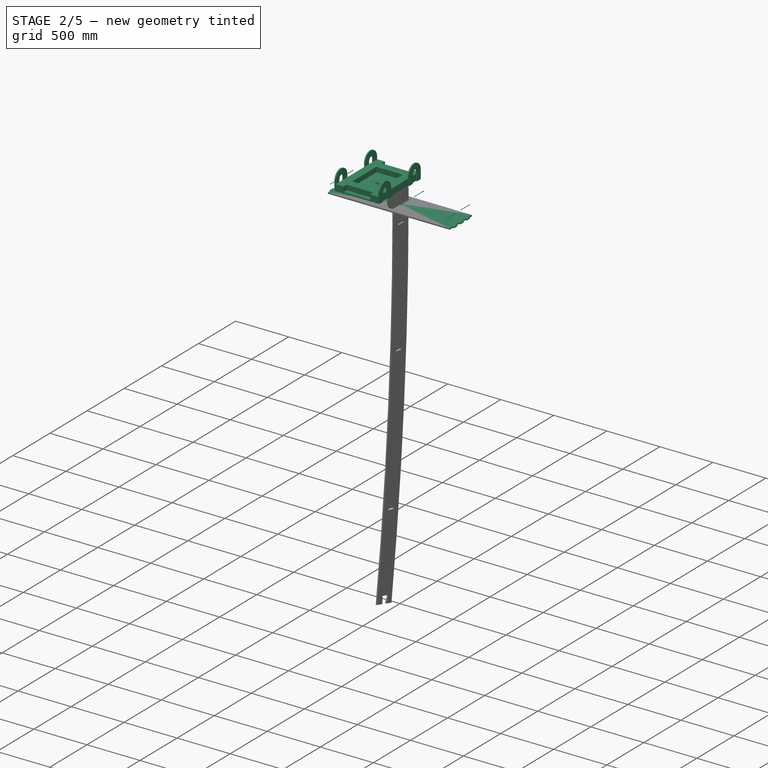
[diagram: stage 2 of 5 — iso view after this stage's code; geometry added in this stage tinted green]
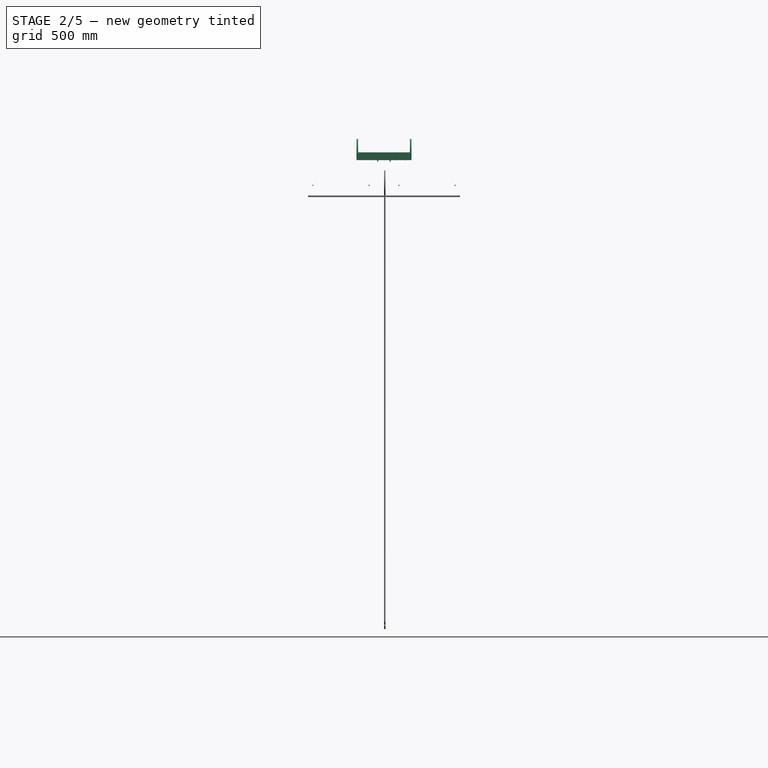
[diagram: stage 2 of 5 — front view after this stage's code; geometry added in this stage tinted green]
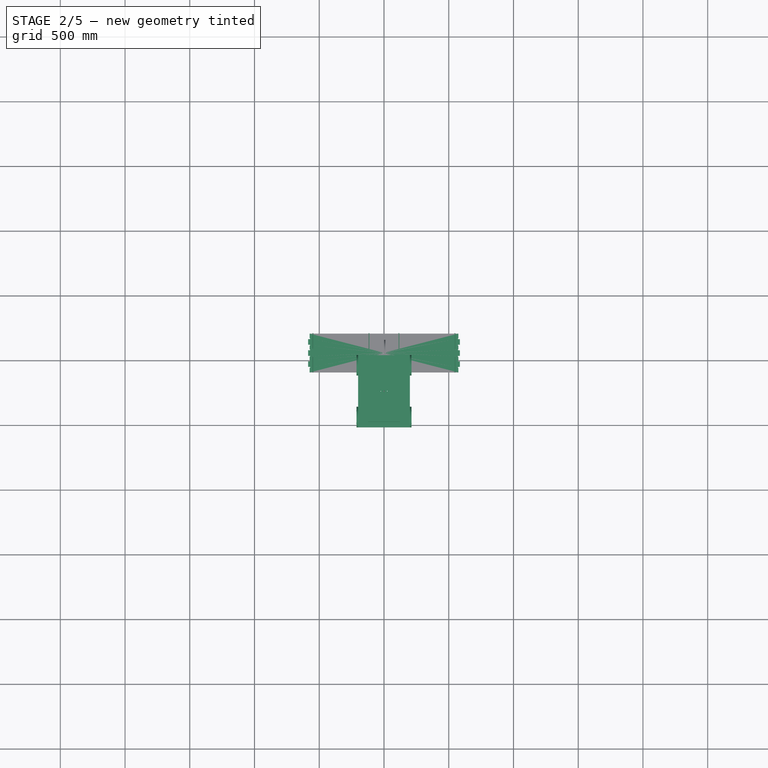
[diagram: stage 2 of 5 — top view after this stage's code; geometry added in this stage tinted green]
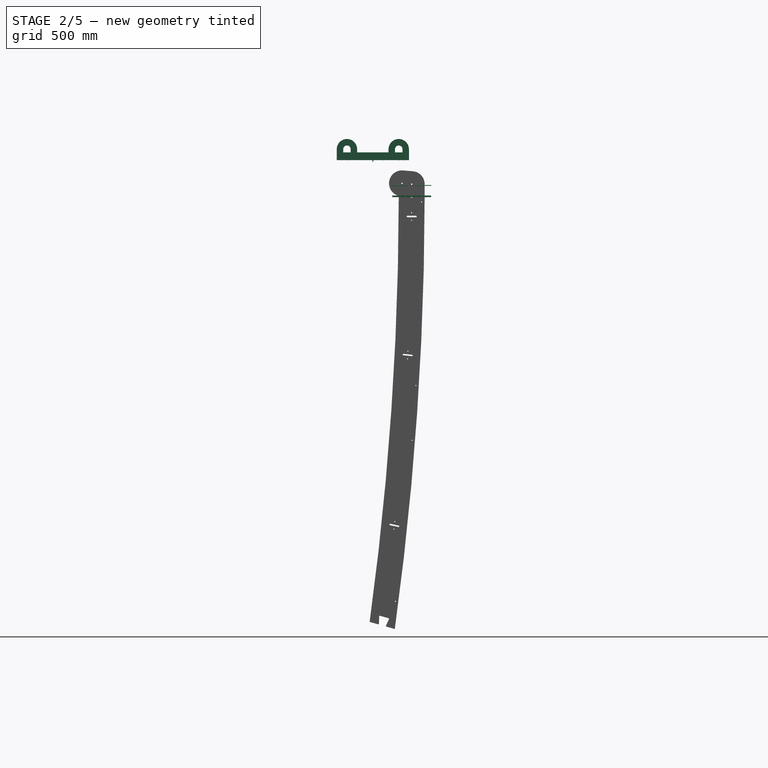
[diagram: stage 2 of 5 — right view after this stage's code; geometry added in this stage tinted green]
FEATURE [Sketcher::SketchObject] Sketch010
  FullyConstrained = true
  MapMode = 5
  Support = -> [XY_Plane005]
  expr: Constraints[8] = <<d>>.support_width
  expr: Constraints[9] = <<d>>.support_bottom_width
  sketch-geometry (4):
    g0: LineSegment StartX=-586 StartY=-150 StartZ=0 EndX=586 EndY=-150 EndZ=0
    g1: LineSegment StartX=586 StartY=-150 StartZ=0 EndX=586 EndY=150 EndZ=0
    g2: LineSegment StartX=586 StartY=150 StartZ=0 EndX=-586 EndY=150 EndZ=0
    g3: LineSegment StartX=-586 StartY=150 StartZ=0 EndX=-586 EndY=-150 EndZ=0
  constraints (10):
    c: Coincident(g0,g1)
    c: Coincident(g1,g2)
    c: Coincident(g2,g3)
    c: Coincident(g3,g0)
    c: Horizontal(g0)
    c: Vertical(g3)
    c: Symmetric(g2,g1,g-2)
    c: Symmetric(g1,g0,g-1)
    c: DistanceY(g1,g1) = 300
    c: DistanceX(g2,g2) = 1172
FEATURE [PartDesign::Pad] Pad004
  Direction = (0,0,1)
  Length = 12
  Length2 = 10
  Profile = -> Sketch010
  ReferenceAxis = -> Sketch010 [N_Axis]
  Type = 0
  expr: Length = <<d>>.support_thickness
FEATURE [Sketcher::SketchObject] Sketch011
  FullyConstrained = true
  MapMode = 5
  Support = -> [XY_Plane005]
  expr: Constraints[16] = <<d>>.support_width / 2
  expr: Constraints[17] = <<d>>.support_width / 7
  expr: Constraints[23] = <<d>>.support_bottom_width / 2
  expr: Constraints[24] = <<d>>.support_thickness
  sketch-geometry (9):
    g0: LineSegment StartX=586 StartY=150 StartZ=0 EndX=574 EndY=150 EndZ=0
    g1: LineSegment StartX=574 StartY=150 StartZ=0 EndX=574 EndY=107.143 EndZ=0
    g2: LineSegment StartX=574 StartY=107.143 StartZ=0 EndX=586 EndY=107.143 EndZ=0
    g3: LineSegment StartX=586 StartY=107.143 StartZ=0 EndX=586 EndY=150 EndZ=0
    g4: LineSegment StartX=574 StartY=64.2857 StartZ=0 EndX=586 EndY=64.2857 EndZ=0
    g5: LineSegment StartX=586 StartY=64.2857 StartZ=0 EndX=586 EndY=21.4286 EndZ=0
    g6: LineSegment StartX=586 StartY=21.4286 StartZ=0 EndX=574 EndY=21.4286 EndZ=0
    g7: LineSegment StartX=574 StartY=21.4286 StartZ=0 EndX=574 EndY=64.2857 EndZ=0
    g8: LineSegment StartX=574 StartY=107.143 StartZ=0 EndX=574 EndY=64.2857 EndZ=0
  constraints (26):
    c: Coincident(g0,g1)
    c: Coincident(g1,g2)
    c: Coincident(g2,g3)
    c: Coincident(g3,g0)
    c: Horizontal(g0)
    c: Horizontal(g2)
    c: Vertical(g1)
    c: Vertical(g3)
    c: Coincident(g4,g5)
    c: Coincident(g5,g6)
    c: Coincident(g6,g7)
    c: Coincident(g7,g4)
    c: Horizontal(g4)
    c: Horizontal(g6)
    c: Vertical(g5)
    c: Vertical(g7)
    c: DistanceY(g-1,g0) = 150
    c: DistanceY(g1,g1) = 42.8571
    c: Coincident(g8,g1)
    c: Coincident(g8,g4)
    c: Vertical(g8)
    c: Equal(g1,g8)
    c: Equal(g8,g7)
    c: DistanceX(g-1,g0) = 586
    c: DistanceX(g0,g0) = 12
    c: Equal(g4,g2)
FEATURE [PartDesign::Pocket] Pocket
  BaseFeature = -> Pad004
  Direction = (0,0,-1)
  Length = 5
  Length2 = 5
  Profile = -> Sketch011
  ReferenceAxis = -> Sketch011 [N_Axis]
  Reversed = true
  Type = 1
FEATURE [PartDesign::Mirrored] Mirrored
  MirrorPlane = -> Sketch011 [V_Axis]
FEATURE [PartDesign::Mirrored] Mirrored001
  MirrorPlane = -> XZ_Plane005
FEATURE [PartDesign::MultiTransform] MultiTransform
  BaseFeature = -> Pocket
  Originals = -> [Pocket]
  Transformations = -> [Mirrored,Mirrored001]
FEATURE [Sketcher::SketchObject] Sketch018
  FullyConstrained = true
  MapMode = 5
  Support = -> [XY_Plane005]
  expr: Constraints[1] = <<d>>.ball_bearing_int_diam
  sketch-geometry (1):
    g0: Circle CenterX=0 CenterY=0 CenterZ=0 NormalX=0 NormalY=0 NormalZ=1 AngleXU=0 Radius=6
  constraints (2):
    c: Coincident(g0,g-1)
    c: Diameter(g0) = 12
FEATURE [PartDesign::Pocket] Pocket004
  BaseFeature = -> MultiTransform
  Direction = (0,0,-1)
  Length = 5
  Length2 = 5
  Profile = -> Sketch018
  ReferenceAxis = -> Sketch018 [N_Axis]
  Reversed = true
  Type = 1
FEATURE [Sketcher::SketchObject] Sketch030
  FullyConstrained = true
  MapMode = 5
  Support = -> [XY_Plane005]
  expr: Constraints[14] = <<d>>.tool_diam
  expr: Constraints[7] = <<d>>.support_width / 2
  expr: Constraints[8] = <<d>>.support_bottom_width / 2 - <<d>>.sides_thickness
  sketch-geometry (7):
    g0: LineSegment StartX=574 StartY=-21.4286 StartZ=0 EndX=574 EndY=21.4286 EndZ=0
    g1: LineSegment StartX=574 StartY=21.4286 StartZ=0 EndX=574 EndY=64.2857 EndZ=0
    g2: LineSegment StartX=574 StartY=64.2857 StartZ=0 EndX=574 EndY=107.143 EndZ=0
    g3: LineSegment StartX=574 StartY=107.143 StartZ=0 EndX=574 EndY=150 EndZ=0
    g4: Circle CenterX=574 CenterY=111.143 CenterZ=0 NormalX=0 NormalY=0 NormalZ=1 AngleXU=0 Radius=4
    g5: Circle CenterX=574 CenterY=60.2857 CenterZ=0 NormalX=0 NormalY=0 NormalZ=1 AngleXU=0 Radius=4
    g6: Circle CenterX=574 CenterY=25.4286 CenterZ=0 NormalX=0 NormalY=0 NormalZ=1 AngleXU=0 Radius=4
  constraints (21):
    c: Vertical(g1)
    c: Vertical(g2)
    c: Vertical(g3)
    c: Symmetric(g0,g0,g-1)
    c: Equal(g0,g1)
    c: Equal(g1,g2)
    c: Equal(g2,g3)
    c: DistanceY(g-1,g3) = 150
    c: DistanceX(g-1,g3) = 574
    c: Coincident(g3,g2)
    c: Coincident(g0,g1)
    c: Coincident(g2,g1)
    c: PointOnObject(g4,g3)
    c: PointOnObject(g2,g4)
    c: Diameter(g4) = 8
    c: PointOnObject(g5,g1)
    c: PointOnObject(g1,g5)
    c: Equal(g5,g4)
    c: PointOnObject(g6,g1)
    c: PointOnObject(g0,g6)
    c: Equal(g6,g5)
FEATURE [PartDesign::Pocket] Pocket007  label="tool_tolerance"
  BaseFeature = -> Pocket004
  Direction = (0,0,-1)
  Length = 5
  Length2 = 5
  Profile = -> Sketch030
  ReferenceAxis = -> Sketch030 [N_Axis]
  Reversed = true
  Type = 1
FEATURE [PartDesign::Mirrored] Mirrored002
  MirrorPlane = -> Sketch030 [V_Axis]
FEATURE [PartDesign::Mirrored] Mirrored003
  MirrorPlane = -> Sketch030 [H_Axis]
FEATURE [PartDesign::MultiTransform] MultiTransform001
  BaseFeature = -> Pocket007
  Originals = -> [Pocket007]
  Transformations = -> [Mirrored002,Mirrored003]
FEATURE [PartDesign::Body] Body005  label="support_bottom"
  Group = -> [Sketch010,Pad004,Sketch011,Pocket,MultiTransform,Mirrored,Mirrored001,Sketch018,Pocket004,Sketch030,Pocket007,MultiTransform001,Mirrored002,Mirrored003,Sketch036,Hole004]
  Origin = -> Origin005
  Placement = pos=(0,0,119) rot=(0,0,1;0rad)
  Tip = -> Hole004
  expr: .Placement.Base.z = <<d>>.support_thickness * 6 + <<d>>.post_width_3_2
FEATURE [Part::FeaturePython] Screw044  label="M5x120-Screw"  # Fasteners workbench fastener (typed FeaturePython)
  Placement = pos=(-548.5,-151,90.5) rot=(1,0,0;1.5708rad)
  diameter = 7
  invert = false
  leftHanded = false
  length = 12
  lengthCustom = 120
  matchOuter = false
  offset = 0
  thread = false
  type = 37
  expr: .Placement.Base.x = -<<d>>.support_bottom_width / 2 + <<d>>.post_height_3_2 / 2
  expr: .Placement.Base.y = -(<<d>>.support_width / 2 + 1)
  expr: .Placement.Base.z = <<d>>.support_thickness * 6 + <<d>>.post_width_3_2 / 2 - 5
FEATURE [Part::FeaturePython] Screw045  label="M5x120-Screw501"  # Fasteners workbench fastener (typed FeaturePython)
  Placement = pos=(-115,-151,90.5) rot=(1,0,0;1.5708rad)
  diameter = 7
  invert = false
  leftHanded = false
  length = 12
  lengthCustom = 120
  matchOuter = false
  offset = 0
  thread = false
  type = 37
  expr: .Placement.Base.x = -<<d>>.panel_width / 8 + <<d>>.post_height_3_2 / 2
  expr: .Placement.Base.y = -(<<d>>.support_width / 2 + 1)
  expr: .Placement.Base.z = <<d>>.support_thickness * 6 + <<d>>.post_width_3_2 / 2 - 5
FEATURE [Part::FeaturePython] Screw046  label="M5x120-Screw502"  # Fasteners workbench fastener (typed FeaturePython)
  Placement = pos=(115,-151,90.5) rot=(1,0,0;1.5708rad)
  diameter = 7
  invert = false
  leftHanded = false
  length = 12
  lengthCustom = 120
  matchOuter = false
  offset = 0
  thread = false
  type = 37
  expr: .Placement.Base.x = <<d>>.panel_width / 8 - <<d>>.post_height_3_2 / 2
  expr: .Placement.Base.y = -(<<d>>.support_width / 2 + 1)
  expr: .Placement.Base.z = <<d>>.support_thickness * 6 + <<d>>.post_width_3_2 / 2 - 5
FEATURE [Part::FeaturePython] Screw047  label="M5x120-Screw503"  # Fasteners workbench fastener (typed FeaturePython)
  Placement = pos=(548.5,-151,90.5) rot=(1,0,0;1.5708rad)
  diameter = 7
  invert = false
  leftHanded = false
  length = 12
  lengthCustom = 120
  matchOuter = false
  offset = 0
  thread = false
  type = 37
  expr: .Placement.Base.x = <<d>>.support_bottom_width / 2 - <<d>>.post_height_3_2 / 2
  expr: .Placement.Base.y = -(<<d>>.support_width / 2 + 1)
  expr: .Placement.Base.z = <<d>>.support_thickness * 6 + <<d>>.post_width_3_2 / 2 - 5
FEATURE [Part::FeaturePython] Screw048  label="M5x120-Screw504"  # Fasteners workbench fastener (typed FeaturePython)
  Placement = pos=(-548.5,151,90.5) rot=(-1,0,0;1.5708rad)
  diameter = 7
  invert = false
  leftHanded = false
  length = 12
  lengthCustom = 120
  matchOuter = false
  offset = 0
  thread = false
  type = 37
  expr: .Placement.Base.x = -<<d>>.support_bottom_width / 2 + <<d>>.post_height_3_2 / 2
  expr: .Placement.Base.y = <<d>>.support_width / 2 + 1
  expr: .Placement.Base.z = <<d>>.support_thickness * 6 + <<d>>.post_width_3_2 / 2 - 5
FEATURE [Part::FeaturePython] Screw049  label="M5x120-Screw505"  # Fasteners workbench fastener (typed FeaturePython)
  Placement = pos=(-115,151,90.5) rot=(-1,0,0;1.5708rad)
  diameter = 7
  invert = false
  leftHanded = false
  length = 12
  lengthCustom = 120
  matchOuter = false
  offset = 0
  thread = false
  type = 37
  expr: .Placement.Base.x = -<<d>>.panel_width / 8 + <<d>>.post_height_3_2 / 2
  expr: .Placement.Base.y = <<d>>.support_width / 2 + 1
  expr: .Placement.Base.z = <<d>>.support_thickness * 6 + <<d>>.post_width_3_2 / 2 - 5
FEATURE [Part::FeaturePython] Screw050  label="M5x120-Screw506"  # Fasteners workbench fastener (typed FeaturePython)
  Placement = pos=(115,151,90.5) rot=(-1,0,0;1.5708rad)
  diameter = 7
  invert = false
  leftHanded = false
  length = 12
  lengthCustom = 120
  matchOuter = false
  offset = 0
  thread = false
  type = 37
  expr: .Placement.Base.x = <<d>>.panel_width / 8 - <<d>>.post_height_3_2 / 2
  expr: .Placement.Base.y = <<d>>.support_width / 2 + 1
  expr: .Placement.Base.z = <<d>>.support_thickness * 6 + <<d>>.post_width_3_2 / 2 - 5
FEATURE [Part::FeaturePython] Screw051  label="M5x120-Screw507"  # Fasteners workbench fastener (typed FeaturePython)
  Placement = pos=(548.5,151,90.5) rot=(-1,0,0;1.5708rad)
  diameter = 7
  invert = false
  leftHanded = false
  length = 12
  lengthCustom = 120
  matchOuter = false
  offset = 0
  thread = false
  type = 37
  expr: .Placement.Base.x = <<d>>.support_bottom_width / 2 - <<d>>.post_height_3_2 / 2
  expr: .Placement.Base.y = <<d>>.support_width / 2 + 1
  expr: .Placement.Base.z = <<d>>.support_thickness * 6 + <<d>>.post_width_3_2 / 2 - 5
FEATURE [Part::Compound] Compound007  label="screws_short_posts_to_long_posts"
  Links = -> [Screw044,Screw045,Screw046,Screw047,Screw048,Screw049,Screw050,Screw051]
FEATURE [Sketcher::SketchObject] Sketch023
  FullyConstrained = true
  MapMode = 5
  Placement = pos=(0,0,0) rot=(0.57735,0.57735,0.57735;2.0944rad)
  Support = -> [YZ_Plane011]
  expr: Constraints[15] = <<d>>.tubes_diam * 1.15
  expr: Constraints[22] = <<d>>.tubes_diam
  expr: Constraints[24] = <<d>>.support_thickness + <<d>>.post_width_3_2 + <<d>>.tubes_diam / 2
  sketch-geometry (8):
    g0: LineSegment StartX=-28.75 StartY=0 StartZ=0 EndX=-78.75 EndY=0 EndZ=0
    g1: LineSegment StartX=-78.75 StartY=0 StartZ=0 EndX=-78.75 EndY=84 EndZ=0
    g2: LineSegment StartX=-28.75 StartY=0 StartZ=0 EndX=-28.75 EndY=84 EndZ=0
    g3: LineSegment StartX=28.75 StartY=84 StartZ=0 EndX=28.75 EndY=0 EndZ=0
    g4: LineSegment StartX=28.75 StartY=0 StartZ=0 EndX=78.75 EndY=0 EndZ=0
    g5: LineSegment StartX=78.75 StartY=0 StartZ=0 EndX=78.75 EndY=84 EndZ=0
    g6: ArcOfCircle CenterX=0 CenterY=84 CenterZ=0 NormalX=0 NormalY=0 NormalZ=1 AngleXU=0 Radius=28.75 StartAngle=0 EndAngle=3.14159
    g7: ArcOfCircle CenterX=0 CenterY=84 CenterZ=0 NormalX=0 NormalY=0 NormalZ=1 AngleXU=0 Radius=78.75 StartAngle=0 EndAngle=3.14159
  constraints (25):
    c: PointOnObject(g0,g-1)
    c: PointOnObject(g0,g-1)
    c: Coincident(g0,g1)
    c: Vertical(g1)
    c: Vertical(g2)
    c: PointOnObject(g3,g-1)
    c: Vertical(g3)
    c: Coincident(g3,g4)
    c: Horizontal(g4)
    c: Coincident(g4,g5)
    c: Vertical(g5)
    c: PointOnObject(g6,g-2)
    c: Coincident(g6,g3)
    c: Coincident(g7,g6)
    c: Coincident(g7,g5)
    c: Diameter(g6) = 57.5
    c: Coincident(g1,g7)
    c: Coincident(g2,g6)
    c: Horizontal(g1,g2)
    c: Horizontal(g2,g6)
    c: Horizontal(g6,g3)
    c: Horizontal(g3,g5)
    c: DistanceX(g4,g4) = 50
    c: Coincident(g0,g2)
    c: DistanceY(g3,g3) = 84
FEATURE [PartDesign::Pad] Pad010
  Direction = (1,-2e-16,3e-16)
  Length = 12
  Length2 = 10
  Placement = pos=(0,0,0) rot=(0.57735,0.57735,0.57735;2.0944rad)
  Profile = -> Sketch023
  ReferenceAxis = -> Sketch023 [N_Axis]
  Type = 0
  expr: Length = <<d>>.support_thickness
FEATURE [PartDesign::Body] Body011  label="support_hook"
  Group = -> [Sketch023,Pad010]
  Origin = -> Origin011
  Placement = pos=(200,200,0) rot=(0,0,1;0rad)
  Tip = -> Pad010
  expr: .Placement.Base.x = <<d>>.tubes_distance / 2
  expr: .Placement.Base.y = <<d>>.tubes_distance / 2
FEATURE [Part::Mirroring] Part__Mirroring006  label="support_hook (Mirror #7)"
  Base = (0,0,0)
  Normal = (1,0,0)
  Source = -> Body011
FEATURE [Part::Mirroring] Part__Mirroring007  label="support_hook (Mirror #8)"
  Base = (0,0,0)
  Normal = (0,1,0)
  Source = -> Body011
FEATURE [Part::Mirroring] Part__Mirroring008  label="support_hook (Mirror #9)"
  Base = (0,0,0)
  Normal = (1,0,0)
  Source = -> Part__Mirroring007
FEATURE [Sketcher::SketchObject] Sketch037  label="post_3_004"
  FullyConstrained = true
  expr: Constraints[6] = <<d>>.post_width_3_2
  expr: Constraints[7] = <<d>>.post_height_3_2
  sketch-geometry (4):
    g0: LineSegment StartX=-23.5 StartY=37.5 StartZ=0 EndX=23.5 EndY=37.5 EndZ=0
    g1: LineSegment StartX=23.5 StartY=37.5 StartZ=0 EndX=23.5 EndY=-37.5 EndZ=0
    g2: LineSegment StartX=23.5 StartY=-37.5 StartZ=0 EndX=-23.5 EndY=-37.5 EndZ=0
    g3: LineSegment StartX=-23.5 StartY=-37.5 StartZ=0 EndX=-23.5 EndY=37.5 EndZ=0
  constraints (10):
    c: Coincident(g0,g1)
    c: Coincident(g1,g2)
    c: Coincident(g2,g3)
    c: Coincident(g3,g0)
    c: Horizontal(g2)
    c: Vertical(g3)
    c: DistanceX(g0,g0) = 47
    c: DistanceY(g1,g1) = 75
    c: Symmetric(g0,g0,g-2)
    c: Symmetric(g0,g1,g-1)
FEATURE [Part::Extrusion] Extrude011  label="support_top_post_1"
  Base = -> Sketch037
  Dir = (0,0,1)
  DirMode = 2
  FaceMakerClass = Part::FaceMakerBullseye
  LengthFwd = 557.5
  LengthRev = 0
  Placement = pos=(162.5,0,35.5) rot=(0.57735,0.57735,0.57735;4.18879rad)
  Solid = true
  Symmetric = true
  expr: .Placement.Base.x = <<d>>.tubes_distance / 2 - <<d>>.post_height_3_2 / 2
  expr: .Placement.Base.z = <<d>>.sides_thickness + <<d>>.post_width_3_2 / 2
  expr: LengthFwd = <<d>>.tubes_distance + <<d>>.tubes_diam * 1.15 + <<d>>.tubes_diam * 2
FEATURE [Part::Extrusion] Extrude012  label="support_top_post_2"
  Base = -> Sketch037
  Dir = (0,0,1)
  DirMode = 2
  FaceMakerClass = Part::FaceMakerBullseye
  LengthFwd = 557.5
  LengthRev = 0
  Placement = pos=(-162.5,0,35.5) rot=(0.57735,0.57735,0.57735;4.18879rad)
  Solid = true
  Symmetric = true
  expr: .Placement.Base.x = -<<d>>.tubes_distance / 2 + <<d>>.post_height_3_2 / 2
  expr: .Placement.Base.z = <<d>>.sides_thickness + <<d>>.post_width_3_2 / 2
  expr: LengthFwd = <<d>>.tubes_distance + <<d>>.tubes_diam * 1.15 + <<d>>.tubes_diam * 2
FEATURE [Part::Extrusion] Extrude013  label="support_top_post_3"
  Base = -> Sketch037
  Dir = (0,0,1)
  DirMode = 2
  FaceMakerClass = Part::FaceMakerBullseye
  LengthFwd = 250
  LengthRev = 0
  Placement = pos=(0,200,35.5) rot=(0.707107,0,0.707107;3.14159rad)
  Solid = true
  Symmetric = true
  expr: .Placement.Base.x = 0mm
  expr: .Placement.Base.y = <<d>>.tubes_distance / 2
  expr: .Placement.Base.z = <<d>>.sides_thickness + <<d>>.post_width_3_2 / 2
  expr: LengthFwd = <<d>>.tubes_distance - 2 * <<d>>.post_height_3_2
FEATURE [Part::Extrusion] Extrude014  label="support_top_post_4"
  Base = -> Sketch037
  Dir = (0,0,1)
  DirMode = 2
  FaceMakerClass = Part::FaceMakerBullseye
  LengthFwd = 250
  LengthRev = 0
  Placement = pos=(0,-200,35.5) rot=(0.707107,0,0.707107;3.14159rad)
  Solid = true
  Symmetric = true
  expr: .Placement.Base.y = -<<d>>.tubes_distance / 2
  expr: .Placement.Base.z = <<d>>.sides_thickness + <<d>>.post_width_3_2 / 2
  expr: LengthFwd = <<d>>.tubes_distance - 2 * <<d>>.post_height_3_2
FEATURE [Part::Feature] Feature007  label="pillow_block_bearing_support_top"
  Placement = pos=(0,0,12) rot=(0,0,1;0rad)
  shape: bbox 47.31 x 26.51 x 108.8 mm, 261 faces, 21 solids (baked)
  expr: .Placement.Base.z = <<d>>.sides_thickness
FEATURE [Part::FeaturePython] Screw052  label="M5x60-Screw"  # Fasteners workbench fastener (typed FeaturePython)
  Placement = pos=(213,249,27.6667) rot=(0,1,0;1.5708rad)
  diameter = 7
  invert = false
  leftHanded = false
  length = 12
  lengthCustom = 60
  matchOuter = false
  offset = 0
  thread = false
  type = 37
  expr: .Placement.Base.x = <<d>>.tubes_distance / 2 + <<d>>.sides_thickness + 1
  expr: .Placement.Base.y = (<<d>>.tubes_distance + <<d>>.tubes_diam) / 2 + <<d>>.sides_thickness * 2
  expr: .Placement.Base.z = <<d>>.sides_thickness + <<d>>.post_width_3_2 / 3
FEATURE [Part::FeaturePython] Screw053  label="M5x60-Screw1231"  # Fasteners workbench fastener (typed FeaturePython)
  Placement = pos=(213,249,43.3333) rot=(0,1,0;1.5708rad)
  diameter = 7
  invert = false
  leftHanded = false
  length = 12
  lengthCustom = 60
  matchOuter = false
  offset = 0
  thread = false
  type = 37
  expr: .Placement.Base.x = <<d>>.tubes_distance / 2 + <<d>>.sides_thickness + 1
  expr: .Placement.Base.y = (<<d>>.tubes_distance + <<d>>.tubes_diam) / 2 + <<d>>.sides_thickness * 2
  expr: .Placement.Base.z = <<d>>.sides_thickness + <<d>>.post_width_3_2 * 2 / 3
FEATURE [Part::FeaturePython] Screw054  label="M5x60-Screw1232"  # Fasteners workbench fastener (typed FeaturePython)
  Placement = pos=(213,151,27.6667) rot=(0,1,0;1.5708rad)
  diameter = 7
  invert = false
  leftHanded = false
  length = 12
  lengthCustom = 60
  matchOuter = false
  offset = 0
  thread = false
  type = 37
  expr: .Placement.Base.x = <<d>>.tubes_distance / 2 + <<d>>.sides_thickness + 1
  expr: .Placement.Base.y = (<<d>>.tubes_distance - <<d>>.tubes_diam) / 2 - <<d>>.sides_thickness * 2
  expr: .Placement.Base.z = <<d>>.sides_thickness + <<d>>.post_width_3_2 / 3
FEATURE [Part::FeaturePython] Screw055  label="M5x60-Screw1233"  # Fasteners workbench fastener (typed FeaturePython)
  Placement = pos=(213,151,43.3333) rot=(0,1,0;1.5708rad)
  diameter = 7
  invert = false
  leftHanded = false
  length = 12
  lengthCustom = 60
  matchOuter = false
  offset = 0
  thread = false
  type = 37
  expr: .Placement.Base.x = <<d>>.tubes_distance / 2 + <<d>>.sides_thickness + 1
  expr: .Placement.Base.y = (<<d>>.tubes_distance - <<d>>.tubes_diam) / 2 - <<d>>.sides_thickness * 2
  expr: .Placement.Base.z = <<d>>.sides_thickness + <<d>>.post_width_3_2 * 2 / 3
FEATURE [Part::Compound] Compound012  label="screws_hooks_4"
  Links = -> [Screw052,Screw053,Screw054,Screw055]
FEATURE [Part::Mirroring] Part__Mirroring012  label="Compound010 (Mirror #11)"
  Base = (0,0,0)
  Normal = (1,0,0)
  Source = -> Compound012
FEATURE [Part::Mirroring] Part__Mirroring013  label="screws_hooks_3"
  Base = (183,3.8147e-06,35.5)
  Normal = (0,1,-1.19209e-07)
  Source = -> Compound012
FEATURE [Part::Mirroring] Part__Mirroring014  label="screws_hooks_1"
  Base = (-183,3.8147e-06,35.5)
  Normal = (0,1,-1.19209e-07)
  Source = -> Part__Mirroring012
FEATURE [Part::FeaturePython] Screw064  label="M5x45-Screw749"  # Fasteners workbench fastener (typed FeaturePython)
  Placement = pos=(93.75,200,-1) rot=(0,1,0;3.14159rad)
  diameter = 7
  invert = false
  leftHanded = false
  length = 10
  lengthCustom = 45
  matchOuter = false
  offset = 0
  thread = false
  type = 37
  expr: .Placement.Base.x = (<<d>>.tubes_distance - 2 * <<d>>.post_height_3_2) * 3 / 8
  expr: .Placement.Base.y = <<d>>.tubes_distance / 2
FEATURE [Part::FeaturePython] Screw065  label="M5x45-Screw750"  # Fasteners workbench fastener (typed FeaturePython)
  Placement = pos=(0,200,-1) rot=(0,1,0;3.14159rad)
  diameter = 7
  invert = false
  leftHanded = false
  length = 10
  lengthCustom = 45
  matchOuter = false
  offset = 0
  thread = false
  type = 37
  expr: .Placement.Base.y = <<d>>.tubes_distance / 2
FEATURE [Part::FeaturePython] Screw066  label="M5x45-Screw751"  # Fasteners workbench fastener (typed FeaturePython)
  Placement = pos=(-93.75,200,-1) rot=(0,1,0;3.14159rad)
  diameter = 7
  invert = false
  leftHanded = false
  length = 10
  lengthCustom = 45
  matchOuter = false
  offset = 0
  thread = false
  type = 37
  expr: .Placement.Base.x = -(<<d>>.tubes_distance - 2 * <<d>>.post_height_3_2) * 3 / 8
  expr: .Placement.Base.y = <<d>>.tubes_distance / 2
FEATURE [Part::Compound] Compound013  label="screws_post_short"
  Links = -> [Screw064,Screw065,Screw066,Screw067,Screw068,Screw069]
FEATURE [Part::Compound] Compound017  label="head_top"
  Links = -> [Body009,Part__Mirroring006,Part__Mirroring008,Part__Mirroring007,Body011,Extrude011,Extrude012,Extrude013,Extrude014,Feature007,Part__Mirroring013,Compound014,Part__Mirroring014,Compound018,Compound013,Screw074,Screw075,Nut017,Nut018]
  Placement = pos=(0,-300,286) rot=(0,0,1;0rad)
  expr: .Placement.Base.y = -<<d>>.sides_width * 1.5
  expr: .Placement.Base.z = <<d>>.support_thickness * 7 + <<d>>.post_width_3_2 + <<d>>.sides_width * (1 / 2 + 1 / 8) + 30
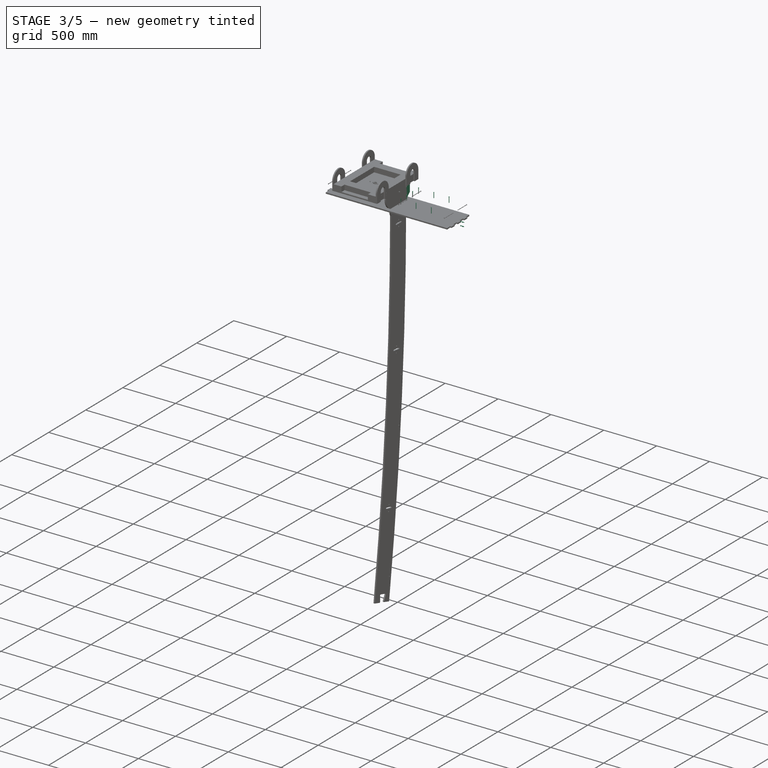
[diagram: stage 3 of 5 — iso view after this stage's code; geometry added in this stage tinted green]
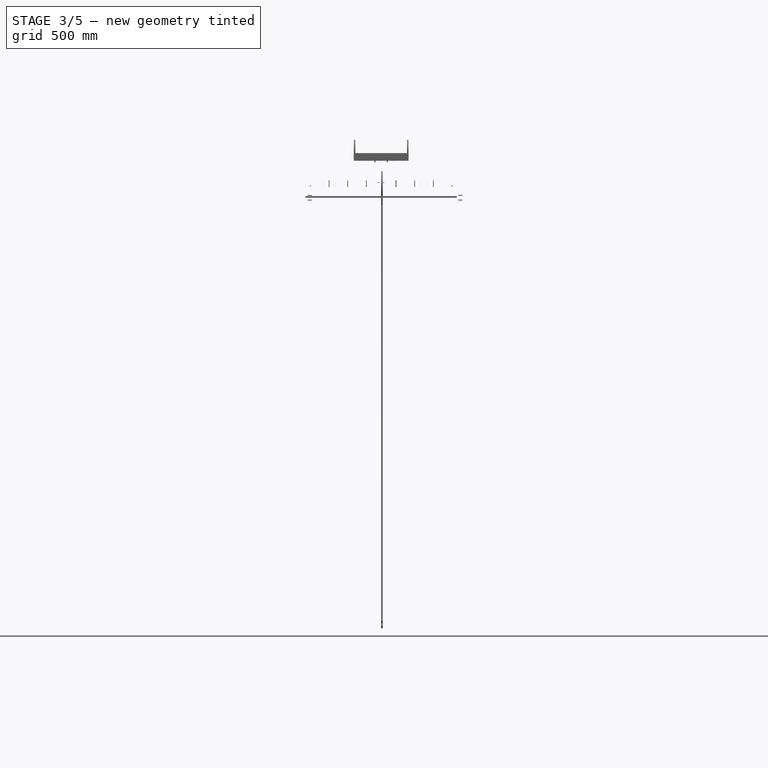
[diagram: stage 3 of 5 — front view after this stage's code; geometry added in this stage tinted green]
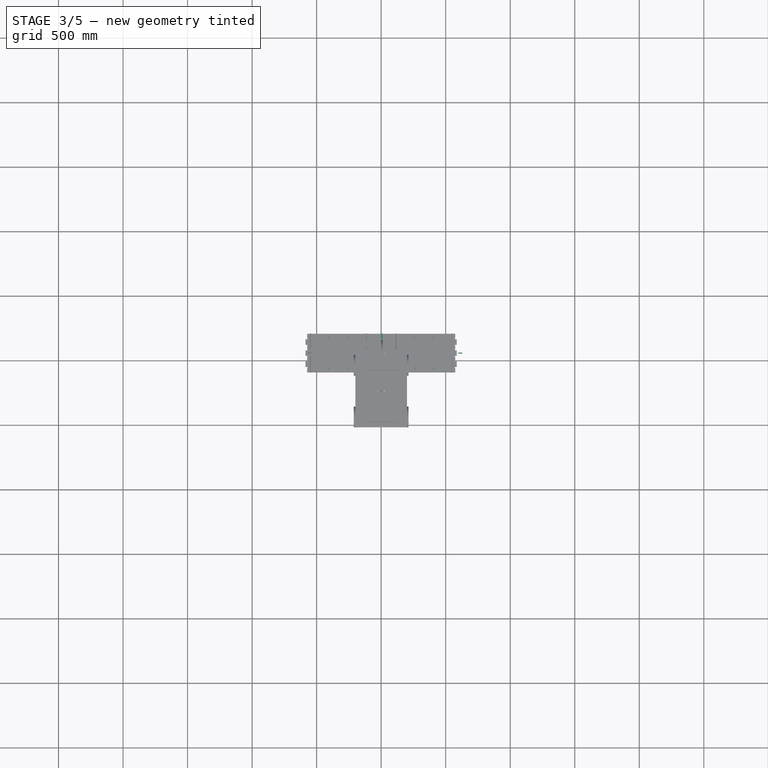
[diagram: stage 3 of 5 — top view after this stage's code; geometry added in this stage tinted green]
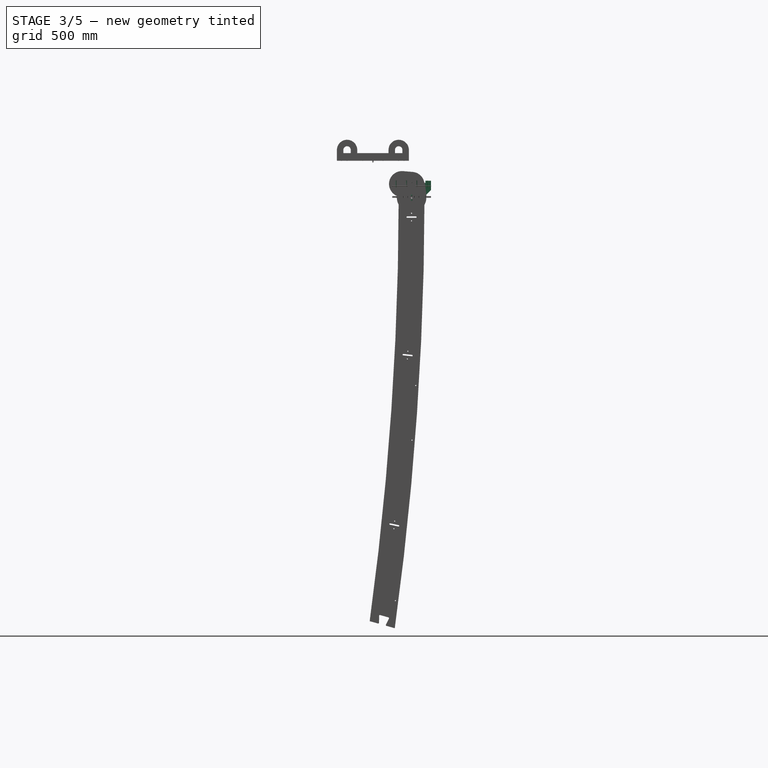
[diagram: stage 3 of 5 — right view after this stage's code; geometry added in this stage tinted green]
FEATURE [Sketcher::SketchObject] Sketch012
  FullyConstrained = true
  MapMode = 5
  Placement = pos=(0,0,0) rot=(0.57735,0.57735,0.57735;2.0944rad)
  Support = -> [YZ_Plane006]
  expr: Constraints[13] = <<d>>.support_width
  expr: Constraints[15] = <<d>>.support_thickness * 2 + <<d>>.post_width_3_2
  expr: Constraints[19] = <<d>>.support_thickness * 3
  expr: Constraints[5] = <<d>>.support_thickness * 2
  sketch-geometry (8):
    g0: ArcOfCircle CenterX=0 CenterY=0 CenterZ=0 NormalX=0 NormalY=0 NormalZ=1 AngleXU=0 Radius=114 StartAngle=3.14159 EndAngle=6.28319
    g1: LineSegment StartX=-114 StartY=1.4e-14 StartZ=0 EndX=-114 EndY=24 EndZ=0
    g2: LineSegment StartX=114 StartY=-2.79e-14 StartZ=0 EndX=114 EndY=24 EndZ=0
    g3: LineSegment StartX=-114 StartY=24 StartZ=0 EndX=-150 EndY=60 EndZ=0
    g4: LineSegment StartX=-150 StartY=60 StartZ=0 EndX=-150 EndY=131 EndZ=0
    g5: LineSegment StartX=-150 StartY=131 StartZ=0 EndX=150 EndY=131 EndZ=0
    g6: LineSegment StartX=150 StartY=131 StartZ=0 EndX=150 EndY=60 EndZ=0
    g7: LineSegment StartX=150 StartY=60 StartZ=0 EndX=114 EndY=24 EndZ=0
  constraints (21):
    c: PointOnObject(g0,g-1)
    c: PointOnObject(g0,g-1)
    c: Vertical(g1)
    c: Coincident(g2,g0)
    c: Coincident(g1,g0)
    c: DistanceY(g1,g1) = 24
    c: Coincident(g1,g3)
    c: Coincident(g3,g4)
    c: Vertical(g4)
    c: Coincident(g4,g5)
    c: Coincident(g5,g6)
    c: Coincident(g6,g7)
    c: Coincident(g7,g2)
    c: DistanceX(g5,g5) = 300
    c: Symmetric(g4,g5,g-2)
    c: DistanceY(g4,g4) = 71
    c: Angle(g-2,g3) = 0.785398
    c: Symmetric(g2,g1,g-2)
    c: Symmetric(g6,g3,g-2)
    c: DistanceY(g1,g3) = 36
    c: Coincident(g0,g-1)
FEATURE [PartDesign::Pad] Pad005
  Direction = (1,-2e-16,3e-16)
  Length = 12
  Length2 = 10
  Placement = pos=(0,0,0) rot=(0.57735,0.57735,0.57735;2.0944rad)
  Profile = -> Sketch012
  ReferenceAxis = -> Sketch012 [N_Axis]
  Type = 0
  expr: Length = <<d>>.support_thickness
FEATURE [Sketcher::SketchObject] Sketch013
  FullyConstrained = true
  MapMode = 5
  Placement = pos=(0,0,0) rot=(0.57735,0.57735,0.57735;2.0944rad)
  Support = -> [YZ_Plane006]
  expr: Constraints[33] = <<d>>.support_width
  expr: Constraints[41] = <<d>>.support_thickness
  expr: Constraints[50] = <<d>>.support_thickness * 2 + <<d>>.post_width_3_2
  expr: Constraints[52] = <<d>>.support_thickness * 2
  expr: Constraints[53] = <<d>>.support_thickness * 3
  sketch-geometry (19):
    g0: LineSegment StartX=64.2857 StartY=131 StartZ=0 EndX=107.143 EndY=131 EndZ=0
    g1: LineSegment StartX=107.143 StartY=131 StartZ=0 EndX=107.143 EndY=119 EndZ=0
    g2: LineSegment StartX=107.143 StartY=119 StartZ=0 EndX=64.2857 EndY=119 EndZ=0
    g3: LineSegment StartX=64.2857 StartY=119 StartZ=0 EndX=64.2857 EndY=131 EndZ=0
    g4: LineSegment StartX=-21.4286 StartY=131 StartZ=0 EndX=21.4286 EndY=131 EndZ=0
    g5: LineSegment StartX=21.4286 StartY=131 StartZ=0 EndX=21.4286 EndY=119 EndZ=0
    g6: LineSegment StartX=21.4286 StartY=119 StartZ=0 EndX=-21.4286 EndY=119 EndZ=0
    g7: LineSegment StartX=-21.4286 StartY=119 StartZ=0 EndX=-21.4286 EndY=131 EndZ=0
    g8: LineSegment StartX=-107.143 StartY=131 StartZ=0 EndX=-64.2857 EndY=131 EndZ=0
    g9: LineSegment StartX=-64.2857 StartY=131 StartZ=0 EndX=-64.2857 EndY=119 EndZ=0
    g10: LineSegment StartX=-64.2857 StartY=119 StartZ=0 EndX=-107.143 EndY=119 EndZ=0
    g11: LineSegment StartX=-107.143 StartY=119 StartZ=0 EndX=-107.143 EndY=131 EndZ=0
    g12: LineSegment StartX=-107.143 StartY=131 StartZ=0 EndX=-150 EndY=131 EndZ=0
    g13: LineSegment StartX=-64.2857 StartY=131 StartZ=0 EndX=-21.4286 EndY=131 EndZ=0
    g14: LineSegment StartX=21.4286 StartY=131 StartZ=0 EndX=64.2857 EndY=131 EndZ=0
    g15: LineSegment StartX=107.143 StartY=131 StartZ=0 EndX=150 EndY=131 EndZ=0
    g16: LineSegment StartX=-150 StartY=131 StartZ=0 EndX=-150 EndY=60 EndZ=0
    g17: LineSegment StartX=-150 StartY=60 StartZ=0 EndX=-114 EndY=24 EndZ=0
    g18: LineSegment StartX=-114 StartY=24 StartZ=0 EndX=-114 EndY=0 EndZ=0
  constraints (54):
    c: Coincident(g0,g1)
    c: Coincident(g1,g2)
    c: Coincident(g2,g3)
    c: Coincident(g3,g0)
    c: Horizontal(g0)
    c: Horizontal(g2)
    c: Vertical(g1)
    c: Vertical(g3)
    c: Coincident(g4,g5)
    c: Coincident(g5,g6)
    c: Coincident(g6,g7)
    c: Coincident(g7,g4)
    c: Horizontal(g4)
    c: Horizontal(g6)
    c: Vertical(g5)
    c: Vertical(g7)
    c: Coincident(g8,g9)
    c: Coincident(g9,g10)
    c: Coincident(g10,g11)
    c: Coincident(g11,g8)
    c: Horizontal(g8)
    c: Horizontal(g10)
    c: Vertical(g9)
    c: Vertical(g11)
    c: Coincident(g12,g8)
    c: Horizontal(g12)
    c: Coincident(g13,g8)
    c: Horizontal(g13)
    c: Coincident(g14,g4)
    c: Coincident(g14,g0)
    c: Horizontal(g14)
    c: Coincident(g15,g0)
    c: Symmetric(g12,g15,g-2)
    c: DistanceX(g12,g15) = 300
    c: Equal(g12,g8)
    c: Equal(g8,g13)
    c: Equal(g13,g4)
    c: Equal(g4,g14)
    c: Equal(g14,g0)
    c: Equal(g0,g15)
    c: Coincident(g13,g4)
    c: DistanceY(g11,g11) = 12
    c: Horizontal(g9,g6)
    c: Horizontal(g6,g2)
    c: Coincident(g12,g16)
    c: Vertical(g16)
    c: Coincident(g16,g17)
    c: Coincident(g17,g18)
    c: PointOnObject(g18,g-1)
    c: Vertical(g18)
    c: DistanceY(g16,g16) = 71
    c: Angle(g-2,g17) = 0.785398
    c: DistanceY(g18,g18) = 24
    c: DistanceY(g17,g17) = 36
FEATURE [PartDesign::Pocket] Pocket001
  BaseFeature = -> Pad005
  Direction = (-1,2e-16,-3e-16)
  Length = 5
  Length2 = 5
  Placement = pos=(0,0,0) rot=(0.57735,0.57735,0.57735;2.0944rad)
  Profile = -> Sketch013
  ReferenceAxis = -> Sketch013 [N_Axis]
  Reversed = true
  Type = 1
FEATURE [Sketcher::SketchObject] Sketch033
  FullyConstrained = true
  MapMode = 5
  Placement = pos=(0,0,0) rot=(0.57735,0.57735,0.57735;2.0944rad)
  Support = -> [YZ_Plane006]
  expr: Constraints[33] = <<d>>.support_width
  expr: Constraints[41] = <<d>>.support_thickness
  expr: Constraints[50] = <<d>>.support_thickness * 2 + <<d>>.post_width_3_2
  expr: Constraints[52] = <<d>>.support_thickness * 2
  expr: Constraints[53] = <<d>>.support_thickness * 3
  expr: Constraints[54] = <<d>>.tool_diam
  sketch-geometry (25):
    g0: LineSegment StartX=64.2857 StartY=131 StartZ=0 EndX=107.143 EndY=131 EndZ=0
    g1: LineSegment StartX=107.143 StartY=131 StartZ=0 EndX=107.143 EndY=119 EndZ=0
    g2: LineSegment StartX=107.143 StartY=119 StartZ=0 EndX=64.2857 EndY=119 EndZ=0
    g3: LineSegment StartX=64.2857 StartY=119 StartZ=0 EndX=64.2857 EndY=131 EndZ=0
    g4: LineSegment StartX=-21.4286 StartY=131 StartZ=0 EndX=21.4286 EndY=131 EndZ=0
    g5: LineSegment StartX=21.4286 StartY=131 StartZ=0 EndX=21.4286 EndY=119 EndZ=0
    g6: LineSegment StartX=21.4286 StartY=119 StartZ=0 EndX=-21.4286 EndY=119 EndZ=0
    g7: LineSegment StartX=-21.4286 StartY=119 StartZ=0 EndX=-21.4286 EndY=131 EndZ=0
    g8: LineSegment StartX=-107.143 StartY=131 StartZ=0 EndX=-64.2857 EndY=131 EndZ=0
    g9: LineSegment StartX=-64.2857 StartY=131 StartZ=0 EndX=-64.2857 EndY=119 EndZ=0
    g10: LineSegment StartX=-64.2857 StartY=119 StartZ=0 EndX=-107.143 EndY=119 EndZ=0
    g11: LineSegment StartX=-107.143 StartY=119 StartZ=0 EndX=-107.143 EndY=131 EndZ=0
    g12: LineSegment StartX=-107.143 StartY=131 StartZ=0 EndX=-150 EndY=131 EndZ=0
    g13: LineSegment StartX=-64.2857 StartY=131 StartZ=0 EndX=-21.4286 EndY=131 EndZ=0
    g14: LineSegment StartX=21.4286 StartY=131 StartZ=0 EndX=64.2857 EndY=131 EndZ=0
    g15: LineSegment StartX=107.143 StartY=131 StartZ=0 EndX=150 EndY=131 EndZ=0
    g16: LineSegment StartX=-150 StartY=131 StartZ=0 EndX=-150 EndY=60 EndZ=0
    g17: LineSegment StartX=-150 StartY=60 StartZ=0 EndX=-114 EndY=24 EndZ=0
    g18: LineSegment StartX=-114 StartY=24 StartZ=0 EndX=-114 EndY=0 EndZ=0
    g19: Circle CenterX=103.143 CenterY=119 CenterZ=0 NormalX=0 NormalY=0 NormalZ=1 AngleXU=0 Radius=4
    g20: Circle CenterX=68.2857 CenterY=119 CenterZ=0 NormalX=0 NormalY=0 NormalZ=1 AngleXU=0 Radius=4
    g21: Circle CenterX=17.4286 CenterY=119 CenterZ=0 NormalX=0 NormalY=0 NormalZ=1 AngleXU=0 Radius=4
    g22: Circle CenterX=-17.4286 CenterY=119 CenterZ=0 NormalX=0 NormalY=0 NormalZ=1 AngleXU=0 Radius=4
    g23: Circle CenterX=-68.2857 CenterY=119 CenterZ=0 NormalX=0 NormalY=0 NormalZ=1 AngleXU=0 Radius=4
    g24: Circle CenterX=-103.143 CenterY=119 CenterZ=0 NormalX=0 NormalY=0 NormalZ=1 AngleXU=0 Radius=4
  constraints (72):
    c: Coincident(g0,g1)
    c: Coincident(g1,g2)
    c: Coincident(g2,g3)
    c: Coincident(g3,g0)
    c: Horizontal(g0)
    c: Horizontal(g2)
    c: Vertical(g1)
    c: Vertical(g3)
    c: Coincident(g4,g5)
    c: Coincident(g5,g6)
    c: Coincident(g6,g7)
    c: Coincident(g7,g4)
    c: Horizontal(g4)
    c: Horizontal(g6)
    c: Vertical(g5)
    c: Vertical(g7)
    c: Coincident(g8,g9)
    c: Coincident(g9,g10)
    c: Coincident(g10,g11)
    c: Coincident(g11,g8)
    c: Horizontal(g8)
    c: Horizontal(g10)
    c: Vertical(g9)
    c: Vertical(g11)
    c: Coincident(g12,g8)
    c: Horizontal(g12)
    c: Coincident(g13,g8)
    c: Horizontal(g13)
    c: Coincident(g14,g4)
    c: Coincident(g14,g0)
    c: Horizontal(g14)
    c: Coincident(g15,g0)
    c: Symmetric(g12,g15,g-2)
    c: DistanceX(g12,g15) = 300
    c: Equal(g12,g8)
    c: Equal(g8,g13)
    c: Equal(g13,g4)
    c: Equal(g4,g14)
    c: Equal(g14,g0)
    c: Equal(g0,g15)
    c: Coincident(g13,g4)
    c: DistanceY(g11,g11) = 12
    c: Horizontal(g9,g6)
    c: Horizontal(g6,g2)
    c: Coincident(g12,g16)
    c: Vertical(g16)
    c: Coincident(g16,g17)
    c: Coincident(g17,g18)
    c: PointOnObject(g18,g-1)
    c: Vertical(g18)
    c: DistanceY(g16,g16) = 71
    c: Angle(g-2,g17) = 0.785398
    c: DistanceY(g18,g18) = 24
    c: DistanceY(g17,g17) = 36
    c: Diameter(g19) = 8
    c: PointOnObject(g19,g2)
    c: PointOnObject(g1,g19)
    c: PointOnObject(g20,g2)
    c: PointOnObject(g2,g20)
    c: Equal(g20,g19)
    c: PointOnObject(g21,g6)
    c: PointOnObject(g5,g21)
    c: PointOnObject(g22,g6)
    c: PointOnObject(g6,g22)
    c: Equal(g22,g21)
    c: Equal(g21,g19)
    c: PointOnObject(g23,g10)
    c: PointOnObject(g9,g23)
    c: PointOnObject(g24,g10)
    c: PointOnObject(g10,g24)
    c: Equal(g24,g23)
    c: Equal(g23,g19)
FEATURE [PartDesign::Pocket] Pocket008  label="cnc_tolerance"
  BaseFeature = -> Pocket001
  Direction = (-1,2e-16,-3e-16)
  Length = 5
  Length2 = 5
  Placement = pos=(0,0,0) rot=(0.57735,0.57735,0.57735;2.0944rad)
  Profile = -> Sketch033
  ReferenceAxis = -> Sketch033 [N_Axis]
  Reversed = true
  Type = 1
FEATURE [Part::Feature] Feature001  label="pillow_block_bearing_head_bottom"
  Placement = pos=(0,0,131) rot=(0,0,1;0rad)
  shape: bbox 47.31 x 26.51 x 108.8 mm, 261 faces, 21 solids (baked)
  expr: .Placement.Base.z = <<d>>.support_thickness * 7 + <<d>>.post_width_3_2
FEATURE [Sketcher::SketchObject] Sketch034  label="Sketch032"
  FullyConstrained = true
  MapMode = 5
  Placement = pos=(0,0,0) rot=(0.57735,0.57735,0.57735;2.0944rad)
  Support = -> [YZ_Plane006]
  expr: Constraints[0] = <<d>>.screws_diam
  sketch-geometry (1):
    g0: Circle CenterX=0 CenterY=0 CenterZ=0 NormalX=0 NormalY=0 NormalZ=1 AngleXU=0 Radius=5
  constraints (2):
    c: Diameter(g0) = 10
    c: Coincident(g0,g-1)
FEATURE [PartDesign::Hole] Hole002  label="Hole"
  BaseFeature = -> Pocket008
  CustomThreadClearance = 0
  Depth = 782.783
  DepthType = 1
  Diameter = 13.5
  DrillForDepth = false
  DrillPoint = 1
  DrillPointAngle = 118
  HoleCutCountersinkAngle = 90
  HoleCutCustomValues = false
  HoleCutDepth = 0
  HoleCutDiameter = 6.1
  HoleCutType = 0
  ModelThread = false
  Placement = pos=(0,0,0) rot=(0.57735,0.57735,0.57735;2.0944rad)
  Profile = -> Sketch034
  Reversed = true
  Tapered = false
  TaperedAngle = 90
  ThreadClass = 0
  ThreadDepth = 782.783
  ThreadDepthType = 0
  ThreadDirection = 0
  ThreadFit = 0
  ThreadSize = 20
  ThreadType = 1
  Threaded = false
  UseCustomThreadClearance = false
FEATURE [Part::FeaturePython] Screw024  label="M5x50-Screw2035"  # Fasteners workbench fastener (typed FeaturePython)
  Placement = pos=(-115,120,132) rot=(0,0,1;0rad)
  diameter = 7
  invert = false
  leftHanded = false
  length = 11
  lengthCustom = 50
  matchOuter = false
  offset = 0
  thread = false
  type = 37
  expr: .Placement.Base.x = -<<d>>.panel_width / 8 + <<d>>.post_height_3_2 / 2
  expr: .Placement.Base.y = <<d>>.support_width / 2 - <<d>>.post_height_3_2 / 2.5
  expr: .Placement.Base.z = <<d>>.support_thickness * 7 + <<d>>.post_width_3_2 + 1
FEATURE [Part::FeaturePython] Screw025  label="M5x50-Screw2036"  # Fasteners workbench fastener (typed FeaturePython)
  Placement = pos=(-115,-120,132) rot=(0,0,1;0rad)
  diameter = 7
  invert = false
  leftHanded = false
  length = 11
  lengthCustom = 50
  matchOuter = false
  offset = 0
  thread = false
  type = 37
  expr: .Placement.Base.x = -<<d>>.panel_width / 8 + <<d>>.post_height_3_2 / 2
  expr: .Placement.Base.y = -<<d>>.support_width / 2 + <<d>>.post_height_3_2 / 2.5
  expr: .Placement.Base.z = <<d>>.support_thickness * 7 + <<d>>.post_width_3_2 + 1
FEATURE [Part::FeaturePython] Screw026  label="M5x50-Screw2037"  # Fasteners workbench fastener (typed FeaturePython)
  Placement = pos=(-115,40,132) rot=(0,0,1;0rad)
  diameter = 7
  invert = false
  leftHanded = false
  length = 11
  lengthCustom = 50
  matchOuter = false
  offset = 0
  thread = false
  type = 37
  expr: .Placement.Base.x = -<<d>>.panel_width / 8 + <<d>>.post_height_3_2 / 2
  expr: .Placement.Base.y = (<<d>>.support_width / 2 - <<d>>.post_height_3_2 / 2.5) / 3
  expr: .Placement.Base.z = <<d>>.support_thickness * 7 + <<d>>.post_width_3_2 + 1
FEATURE [Part::FeaturePython] Screw027  label="M5x50-Screw2038"  # Fasteners workbench fastener (typed FeaturePython)
  Placement = pos=(-115,-40,132) rot=(0,0,1;0rad)
  diameter = 7
  invert = false
  leftHanded = false
  length = 11
  lengthCustom = 50
  matchOuter = false
  offset = 0
  thread = false
  type = 37
  expr: .Placement.Base.x = -<<d>>.panel_width / 8 + <<d>>.post_height_3_2 / 2
  expr: .Placement.Base.y = -(<<d>>.support_width / 2 - <<d>>.post_height_3_2 / 2.5) / 3
  expr: .Placement.Base.z = <<d>>.support_thickness * 7 + <<d>>.post_width_3_2 + 1
FEATURE [Part::FeaturePython] Screw028  label="M5x50-Screw2039"  # Fasteners workbench fastener (typed FeaturePython)
  Placement = pos=(115,120,132) rot=(0,0,1;0rad)
  diameter = 7
  invert = false
  leftHanded = false
  length = 11
  lengthCustom = 50
  matchOuter = false
  offset = 0
  thread = false
  type = 37
  expr: .Placement.Base.x = <<d>>.panel_width / 8 - <<d>>.post_height_3_2 / 2
  expr: .Placement.Base.y = <<d>>.support_width / 2 - <<d>>.post_height_3_2 / 2.5
  expr: .Placement.Base.z = <<d>>.support_thickness * 7 + <<d>>.post_width_3_2 + 1
FEATURE [Part::FeaturePython] Screw029  label="M5x50-Screw2040"  # Fasteners workbench fastener (typed FeaturePython)
  Placement = pos=(115,-120,132) rot=(0,0,1;0rad)
  diameter = 7
  invert = false
  leftHanded = false
  length = 11
  lengthCustom = 50
  matchOuter = false
  offset = 0
  thread = false
  type = 37
  expr: .Placement.Base.x = <<d>>.panel_width / 8 - <<d>>.post_height_3_2 / 2
  expr: .Placement.Base.y = -<<d>>.support_width / 2 + <<d>>.post_height_3_2 / 2.5
  expr: .Placement.Base.z = <<d>>.support_thickness * 7 + <<d>>.post_width_3_2 + 1
FEATURE [Part::FeaturePython] Screw030  label="M5x50-Screw2041"  # Fasteners workbench fastener (typed FeaturePython)
  Placement = pos=(115,40,132) rot=(0,0,1;0rad)
  diameter = 7
  invert = false
  leftHanded = false
  length = 11
  lengthCustom = 50
  matchOuter = false
  offset = 0
  thread = false
  type = 37
  expr: .Placement.Base.x = <<d>>.panel_width / 8 - <<d>>.post_height_3_2 / 2
  expr: .Placement.Base.y = (<<d>>.support_width / 2 - <<d>>.post_height_3_2 / 2.5) / 3
  expr: .Placement.Base.z = <<d>>.support_thickness * 7 + <<d>>.post_width_3_2 + 1
FEATURE [Part::FeaturePython] Screw031  label="M5x50-Screw2042"  # Fasteners workbench fastener (typed FeaturePython)
  Placement = pos=(115,-40,132) rot=(0,0,1;0rad)
  diameter = 7
  invert = false
  leftHanded = false
  length = 11
  lengthCustom = 50
  matchOuter = false
  offset = 0
  thread = false
  type = 37
  expr: .Placement.Base.x = <<d>>.panel_width / 8 - <<d>>.post_height_3_2 / 2
  expr: .Placement.Base.y = -(<<d>>.support_width / 2 - <<d>>.post_height_3_2 / 2.5) / 3
  expr: .Placement.Base.z = <<d>>.support_thickness * 7 + <<d>>.post_width_3_2 + 1
FEATURE [Part::Compound] Compound004  label="screws_short_posts_2"
  Links = -> [Screw024,Screw025,Screw026,Screw027,Screw028,Screw029,Screw030,Screw031]
FEATURE [Part::FeaturePython] Screw032  label="M5x50-Screw2043"  # Fasteners workbench fastener (typed FeaturePython)
  Placement = pos=(-259.5,120,132) rot=(0,0,1;0rad)
  diameter = 7
  invert = false
  leftHanded = false
  length = 11
  lengthCustom = 50
  matchOuter = false
  offset = 0
  thread = false
  type = 37
  expr: .Placement.Base.x = (-<<d>>.support_bottom_width / 2 + <<d>>.post_height_3_2 / 2 - (-<<d>>.panel_width / 8 + <<d>>.post_height_3_2 / 2)) / 3 + -<<d>>.panel_width / 8 + <<d>>.post_height_3_2 / 2
  expr: .Placement.Base.y = <<d>>.support_width / 2 - <<d>>.post_height_3_2 / 2.5
  expr: .Placement.Base.z = <<d>>.support_thickness * 7 + <<d>>.post_width_3_2 + 1
FEATURE [Part::FeaturePython] Screw033  label="M5x50-Screw2044"  # Fasteners workbench fastener (typed FeaturePython)
  Placement = pos=(-404,120,132) rot=(0,0,1;0rad)
  diameter = 7
  invert = false
  leftHanded = false
  length = 11
  lengthCustom = 50
  matchOuter = false
  offset = 0
  thread = false
  type = 37
  expr: .Placement.Base.x = (-<<d>>.support_bottom_width / 2 + <<d>>.post_height_3_2 / 2 - (-<<d>>.panel_width / 8 + <<d>>.post_height_3_2 / 2)) / 3 * 2 + -<<d>>.panel_width / 8 + <<d>>.post_height_3_2 / 2
  expr: .Placement.Base.y = <<d>>.support_width / 2 - <<d>>.post_height_3_2 / 2.5
  expr: .Placement.Base.z = <<d>>.support_thickness * 7 + <<d>>.post_width_3_2 + 1
FEATURE [Part::FeaturePython] Screw034  label="M5x50-Screw2045"  # Fasteners workbench fastener (typed FeaturePython)
  Placement = pos=(-259.5,-120,132) rot=(0,0,1;0rad)
  diameter = 7
  invert = false
  leftHanded = false
  length = 11
  lengthCustom = 50
  matchOuter = false
  offset = 0
  thread = false
  type = 37
  expr: .Placement.Base.x = (-<<d>>.support_bottom_width / 2 + <<d>>.post_height_3_2 / 2 - (-<<d>>.panel_width / 8 + <<d>>.post_height_3_2 / 2)) / 3 + -<<d>>.panel_width / 8 + <<d>>.post_height_3_2 / 2
  expr: .Placement.Base.y = -<<d>>.support_width / 2 + <<d>>.post_height_3_2 / 2.5
  expr: .Placement.Base.z = <<d>>.support_thickness * 7 + <<d>>.post_width_3_2 + 1
FEATURE [Part::FeaturePython] Screw035  label="M5x50-Screw2046"  # Fasteners workbench fastener (typed FeaturePython)
  Placement = pos=(-404,-120,132) rot=(0,0,1;0rad)
  diameter = 7
  invert = false
  leftHanded = false
  length = 11
  lengthCustom = 50
  matchOuter = false
  offset = 0
  thread = false
  type = 37
  expr: .Placement.Base.x = (-<<d>>.support_bottom_width / 2 + <<d>>.post_height_3_2 / 2 - (-<<d>>.panel_width / 8 + <<d>>.post_height_3_2 / 2)) / 3 * 2 + -<<d>>.panel_width / 8 + <<d>>.post_height_3_2 / 2
  expr: .Placement.Base.y = -<<d>>.support_width / 2 + <<d>>.post_height_3_2 / 2.5
  expr: .Placement.Base.z = <<d>>.support_thickness * 7 + <<d>>.post_width_3_2 + 1
FEATURE [Part::FeaturePython] Screw036  label="M5x50-Screw2047"  # Fasteners workbench fastener (typed FeaturePython)
  Placement = pos=(404,120,132) rot=(0,0,1;0rad)
  diameter = 7
  invert = false
  leftHanded = false
  length = 11
  lengthCustom = 50
  matchOuter = false
  offset = 0
  thread = false
  type = 37
  expr: .Placement.Base.x = -((-<<d>>.support_bottom_width / 2 + <<d>>.post_height_3_2 / 2 - (-<<d>>.panel_width / 8 + <<d>>.post_height_3_2 / 2)) / 3 * 2 + -<<d>>.panel_width / 8 + <<d>>.post_height_3_2 / 2)
  expr: .Placement.Base.y = <<d>>.support_width / 2 - <<d>>.post_height_3_2 / 2.5
  expr: .Placement.Base.z = <<d>>.support_thickness * 7 + <<d>>.post_width_3_2 + 1
FEATURE [Part::FeaturePython] Screw037  label="M5x50-Screw2048"  # Fasteners workbench fastener (typed FeaturePython)
  Placement = pos=(259.5,120,132) rot=(0,0,1;0rad)
  diameter = 7
  invert = false
  leftHanded = false
  length = 11
  lengthCustom = 50
  matchOuter = false
  offset = 0
  thread = false
  type = 37
  expr: .Placement.Base.x = -((-<<d>>.support_bottom_width / 2 + <<d>>.post_height_3_2 / 2 - (-<<d>>.panel_width / 8 + <<d>>.post_height_3_2 / 2)) / 3 + -<<d>>.panel_width / 8 + <<d>>.post_height_3_2 / 2)
  expr: .Placement.Base.y = <<d>>.support_width / 2 - <<d>>.post_height_3_2 / 2.5
  expr: .Placement.Base.z = <<d>>.support_thickness * 7 + <<d>>.post_width_3_2 + 1
FEATURE [Part::FeaturePython] Screw038  label="M5x50-Screw2049"  # Fasteners workbench fastener (typed FeaturePython)
  Placement = pos=(404,-120,132) rot=(0,0,1;0rad)
  diameter = 7
  invert = false
  leftHanded = false
  length = 11
  lengthCustom = 50
  matchOuter = false
  offset = 0
  thread = false
  type = 37
  expr: .Placement.Base.x = -((-<<d>>.support_bottom_width / 2 + <<d>>.post_height_3_2 / 2 - (-<<d>>.panel_width / 8 + <<d>>.post_height_3_2 / 2)) / 3 * 2 + -<<d>>.panel_width / 8 + <<d>>.post_height_3_2 / 2)
  expr: .Placement.Base.y = -<<d>>.support_width / 2 + <<d>>.post_height_3_2 / 2.5
  expr: .Placement.Base.z = <<d>>.support_thickness * 7 + <<d>>.post_width_3_2 + 1
FEATURE [Part::FeaturePython] Screw039  label="M5x50-Screw2050"  # Fasteners workbench fastener (typed FeaturePython)
  Placement = pos=(259.5,-120,132) rot=(0,0,1;0rad)
  diameter = 7
  invert = false
  leftHanded = false
  length = 11
  lengthCustom = 50
  matchOuter = false
  offset = 0
  thread = false
  type = 37
  expr: .Placement.Base.x = -((-<<d>>.support_bottom_width / 2 + <<d>>.post_height_3_2 / 2 - (-<<d>>.panel_width / 8 + <<d>>.post_height_3_2 / 2)) / 3 + -<<d>>.panel_width / 8 + <<d>>.post_height_3_2 / 2)
  expr: .Placement.Base.y = -<<d>>.support_width / 2 + <<d>>.post_height_3_2 / 2.5
  expr: .Placement.Base.z = <<d>>.support_thickness * 7 + <<d>>.post_width_3_2 + 1
FEATURE [Part::Compound] Compound005  label="screws_long_posts"
  Links = -> [Screw032,Screw033,Screw034,Screw035,Screw036,Screw037,Screw038,Screw039]
FEATURE [Part::Feature] Feature006  label="pillow_block_bearing_head_bottom001"
  Placement = pos=(574,0,0) rot=(0,-1,0;1.5708rad)
  shape: bbox 108.8 x 26.51 x 47.31 mm, 261 faces, 21 solids (baked)
  expr: .Placement.Base.x = <<d>>.support_bottom_width / 2 - <<d>>.sides_thickness
FEATURE [Part::Feature] Feature003  label="pillow_block_bearing_head_bottom002"
  Placement = pos=(-574,0,0) rot=(0,1,0;1.5708rad)
  shape: bbox 108.8 x 26.51 x 47.31 mm, 261 faces, 21 solids (baked)
  expr: .Placement.Base.x = -(<<d>>.support_bottom_width / 2 - <<d>>.sides_thickness)
FEATURE [Part::FeaturePython] Screw040  label="M5x30-Screw"  # Fasteners workbench fastener (typed FeaturePython)
  Placement = pos=(570,0,18.5) rot=(0,-1,0;1.5708rad)
  diameter = 7
  invert = false
  leftHanded = false
  length = 1
  lengthCustom = 30
  matchOuter = false
  offset = 0
  thread = false
  type = 39
  expr: .Placement.Base.x = <<d>>.support_bottom_width / 2 - <<d>>.sides_thickness - 4
FEATURE [Part::FeaturePython] Screw041  label="M5x30-Screw214"  # Fasteners workbench fastener (typed FeaturePython)
  Placement = pos=(570,0,-18) rot=(0,-1,0;1.5708rad)
  diameter = 7
  invert = false
  leftHanded = false
  length = 1
  lengthCustom = 30
  matchOuter = false
  offset = 0
  thread = false
  type = 39
  expr: .Placement.Base.x = <<d>>.support_bottom_width / 2 - <<d>>.sides_thickness - 4
FEATURE [Part::FeaturePython] Screw042  label="M5x30-Screw215"  # Fasteners workbench fastener (typed FeaturePython)
  Placement = pos=(-570,0,-18) rot=(0,1,0;1.5708rad)
  diameter = 7
  invert = false
  leftHanded = false
  length = 1
  lengthCustom = 30
  matchOuter = false
  offset = 0
  thread = false
  type = 39
  expr: .Placement.Base.x = -(<<d>>.support_bottom_width / 2 - <<d>>.sides_thickness - 4)
FEATURE [Part::FeaturePython] Screw043  label="M5x30-Screw216"  # Fasteners workbench fastener (typed FeaturePython)
  Placement = pos=(-570,0,18) rot=(0,1,0;1.5708rad)
  diameter = 7
  invert = false
  leftHanded = false
  length = 1
  lengthCustom = 30
  matchOuter = false
  offset = 0
  thread = false
  type = 39
  expr: .Placement.Base.x = -(<<d>>.support_bottom_width / 2 - <<d>>.sides_thickness - 4)
FEATURE [Sketcher::SketchObject] Sketch035
  FullyConstrained = true
  MapMode = 5
  Placement = pos=(0,0,0) rot=(0.57735,0.57735,0.57735;2.0944rad)
  Support = -> [YZ_Plane006]
  expr: Constraints[3] = <<d>>.distance_screws_ball_bearing
  sketch-geometry (2):
    g0: Circle CenterX=0 CenterY=24 CenterZ=0 NormalX=0 NormalY=0 NormalZ=1 AngleXU=0 Radius=2.5
    g1: Circle CenterX=0 CenterY=-24 CenterZ=0 NormalX=0 NormalY=0 NormalZ=1 AngleXU=0 Radius=2.5
  constraints (5):
    c: PointOnObject(g0,g-2)
    c: Diameter(g0) = 5
    c: Diameter(g1) = 5
    c: DistanceY(g1,g0) = 48
    c: Symmetric(g0,g1,g-1)
FEATURE [PartDesign::Hole] Hole003
  BaseFeature = -> Hole002
  CustomThreadClearance = 0
  Depth = 782.783
  DepthType = 1
  Diameter = 5.5
  DrillForDepth = false
  DrillPoint = 1
  DrillPointAngle = 118
  HoleCutCountersinkAngle = 90
  HoleCutCustomValues = false
  HoleCutDepth = 0
  HoleCutDiameter = 8.8
  HoleCutType = 0
  ModelThread = false
  Placement = pos=(0,0,0) rot=(0.57735,0.57735,0.57735;2.0944rad)
  Profile = -> Sketch035
  Reversed = true
  Tapered = false
  TaperedAngle = 90
  ThreadClass = 0
  ThreadDepth = 782.783
  ThreadDepthType = 0
  ThreadDirection = 0
  ThreadFit = 0
  ThreadSize = 13
  ThreadType = 1
  Threaded = false
  UseCustomThreadClearance = false
FEATURE [Part::FeaturePython] Nut  label="M5-Nut"  # Fasteners workbench fastener (typed FeaturePython)
  Placement = pos=(586,0,18.5) rot=(0,1,0;1.5708rad)
  diameter = 1
  invert = false
  leftHanded = false
  matchOuter = false
  offset = 0
  thread = false
  type = 20
  expr: .Placement.Base.x = <<d>>.support_bottom_width / 2
FEATURE [Part::FeaturePython] Nut001  label="M5-Nut176"  # Fasteners workbench fastener (typed FeaturePython)
  Placement = pos=(586,0,-18.5) rot=(0,1,0;1.5708rad)
  diameter = 1
  invert = false
  leftHanded = false
  matchOuter = false
  offset = 0
  thread = false
  type = 20
  expr: .Placement.Base.x = <<d>>.support_bottom_width / 2
FEATURE [Part::FeaturePython] Nut002  label="M5-Nut177"  # Fasteners workbench fastener (typed FeaturePython)
  Placement = pos=(-586,0,18.5) rot=(0,-1,0;1.5708rad)
  diameter = 1
  invert = false
  leftHanded = false
  matchOuter = false
  offset = 0
  thread = false
  type = 20
  expr: .Placement.Base.x = -<<d>>.support_bottom_width / 2
FEATURE [Part::FeaturePython] Nut003  label="M5-Nut178"  # Fasteners workbench fastener (typed FeaturePython)
  Placement = pos=(-586,0,-18.5) rot=(0,-1,0;1.5708rad)
  diameter = 1
  invert = false
  leftHanded = false
  matchOuter = false
  offset = 0
  thread = false
  type = 20
  expr: .Placement.Base.x = -<<d>>.support_bottom_width / 2
FEATURE [Part::Compound] Compound006  label="bolts_ball_bearings_sides"
  Links = -> [Screw040,Screw041,Screw042,Screw043,Nut,Nut001,Nut002,Nut003]
  Placement = pos=(30,0,4e-15) rot=(0,0,1;0rad)
FEATURE [Part::FeaturePython] Nut004  label="M5-Nut174"  # Fasteners workbench fastener (typed FeaturePython)
  Placement = pos=(-18.5,0,119) rot=(0,1,0;3.14159rad)
  diameter = 1
  invert = false
  leftHanded = false
  matchOuter = false
  offset = 0
  thread = false
  type = 20
  expr: .Placement.Base.z = <<d>>.support_thickness * 6 + <<d>>.post_width_3_2
FEATURE [Part::FeaturePython] Nut015  label="M5-Nut175"  # Fasteners workbench fastener (typed FeaturePython)
  Placement = pos=(18.5,0,119) rot=(0,1,0;3.14159rad)
  diameter = 1
  invert = false
  leftHanded = false
  matchOuter = false
  offset = 0
  thread = false
  type = 20
  expr: .Placement.Base.z = <<d>>.support_thickness * 6 + <<d>>.post_width_3_2
FEATURE [Sketcher::SketchObject] Sketch036
  FullyConstrained = true
  MapMode = 5
  Support = -> [XY_Plane005]
  expr: Constraints[4] = <<d>>.distance_screws_ball_bearing
  sketch-geometry (2):
    g0: Circle CenterX=24 CenterY=0 CenterZ=0 NormalX=0 NormalY=0 NormalZ=1 AngleXU=0 Radius=2.5
    g1: Circle CenterX=-24 CenterY=0 CenterZ=0 NormalX=0 NormalY=0 NormalZ=1 AngleXU=0 Radius=2.5
  constraints (5):
    c: PointOnObject(g0,g-1)
    c: Symmetric(g1,g0,g-2)
    c: Equal(g0,g1)
    c: Diameter(g0) = 5
    c: DistanceX(g1,g0) = 48
FEATURE [PartDesign::Hole] Hole004  label="Hole002"
  BaseFeature = -> MultiTransform001
  CustomThreadClearance = 0
  Depth = 2443.89
  DepthType = 1
  Diameter = 5.5
  DrillForDepth = false
  DrillPoint = 1
  DrillPointAngle = 118
  HoleCutCountersinkAngle = 90
  HoleCutCustomValues = false
  HoleCutDepth = 0
  HoleCutDiameter = 8.8
  HoleCutType = 0
  ModelThread = false
  Profile = -> Sketch036
  Reversed = true
  Tapered = false
  TaperedAngle = 90
  ThreadClass = 0
  ThreadDepth = 2443.89
  ThreadDepthType = 0
  ThreadDirection = 0
  ThreadFit = 0
  ThreadSize = 13
  ThreadType = 1
  Threaded = false
  UseCustomThreadClearance = false
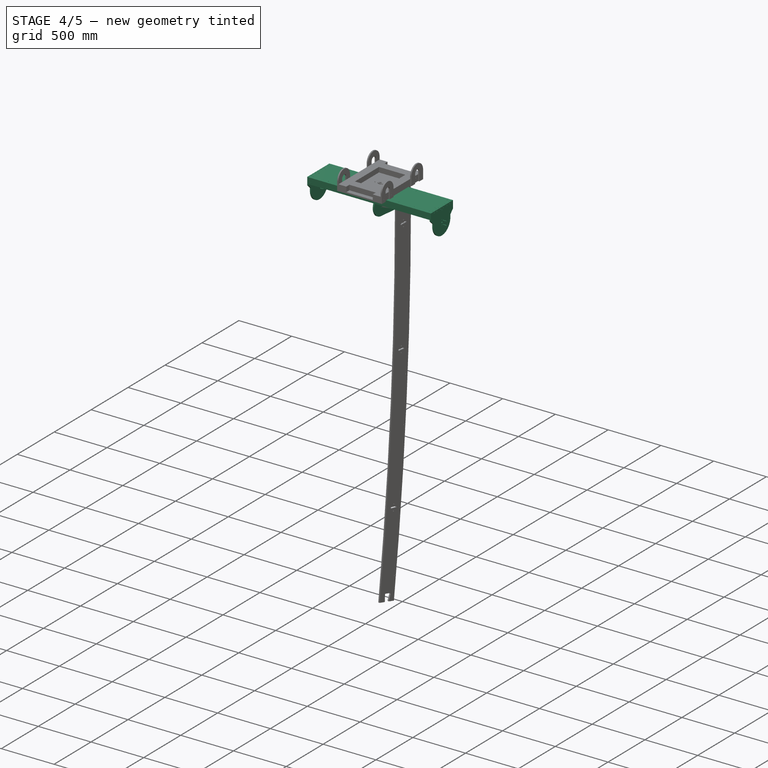
[diagram: stage 4 of 5 — iso view after this stage's code; geometry added in this stage tinted green]
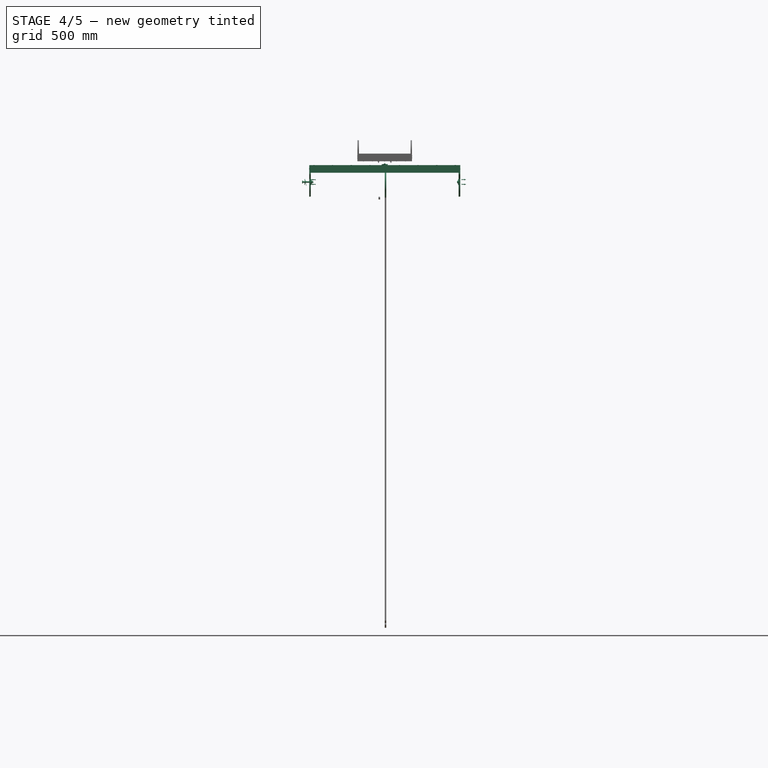
[diagram: stage 4 of 5 — front view after this stage's code; geometry added in this stage tinted green]
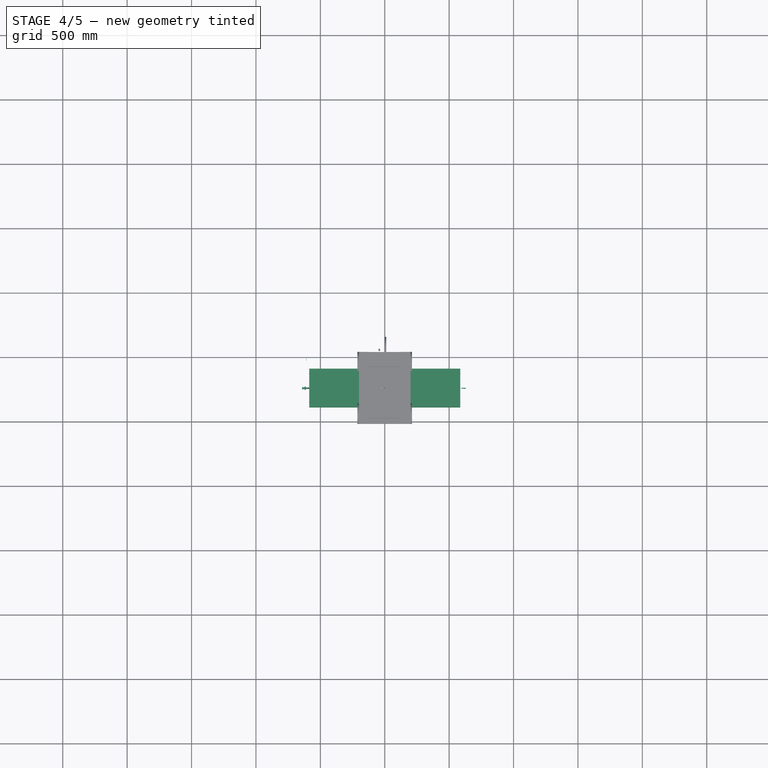
[diagram: stage 4 of 5 — top view after this stage's code; geometry added in this stage tinted green]
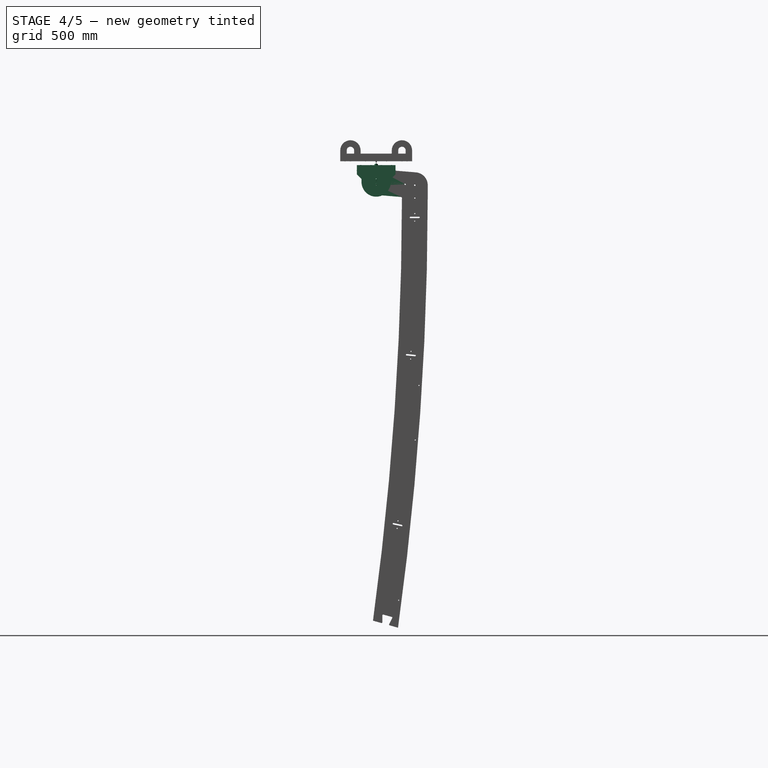
[diagram: stage 4 of 5 — right view after this stage's code; geometry added in this stage tinted green]
FEATURE [Sketcher::SketchObject] Sketch008
  FullyConstrained = true
  MapMode = 5
  Placement = pos=(0,0,0) rot=(0.57735,0.57735,0.57735;2.0944rad)
  Support = -> [YZ_Plane004]
  expr: Constraints[11] = <<d>>.sides_width / 2
  expr: Constraints[12] = <<d>>.sides_width * (1 / 2 + 1 / 8)
  expr: Constraints[13] = <<d>>.sides_width * 1.5
  expr: Constraints[3] = <<d>>.sides_width
  expr: Constraints[7] = <<d>>.sides_width
  sketch-geometry (7):
    g0: ArcOfCircle CenterX=0 CenterY=100 CenterZ=0 NormalX=0 NormalY=0 NormalZ=1 AngleXU=0 Radius=100 StartAngle=0 EndAngle=1.48766
    g1: LineSegment StartX=100 StartY=1.1e-15 StartZ=0 EndX=100 EndY=100 EndZ=0
    g2: ArcOfCircle CenterX=0 CenterY=1.1e-15 CenterZ=0 NormalX=0 NormalY=0 NormalZ=1 AngleXU=0 Radius=100 StartAngle=3.14159 EndAngle=6.28319
    g3: LineSegment StartX=8.30455 StartY=199.655 StartZ=0 EndX=-291.695 EndY=224.655 EndZ=0
    g4: LineSegment StartX=-308.305 StartY=25.3454 StartZ=0 EndX=-107.959 EndY=8.64997 EndZ=0
    g5: ArcOfCircle CenterX=-300 CenterY=125 CenterZ=0 NormalX=0 NormalY=0 NormalZ=1 AngleXU=0 Radius=100 StartAngle=1.48766 EndAngle=4.62925
    g6: ArcOfCircle CenterX=-108.68 CenterY=1.1e-15 CenterZ=0 NormalX=0 NormalY=0 NormalZ=1 AngleXU=0 Radius=8.67995 StartAngle=0 EndAngle=1.48766
  constraints (18):
    c: PointOnObject(g0,g-2)
    c: Tangent(g1,g0) = -1.5708
    c: Vertical(g1)
    c: Diameter(g2) = 200
    c: Coincident(g2,g1)
    c: Tangent(g4,g5) = -1.5708
    c: Tangent(g3,g5) = -1.5708
    c: Diameter(g5) = 200
    c: Tangent(g3,g0) = -1.5708
    c: Parallel(g4,g3)
    c: Horizontal(g1,g2)
    c: DistanceY(g-1,g0) = 100
    c: DistanceY(g-1,g5) = 125
    c: DistanceX(g5,g-1) = 300
    c: Horizontal(g2,g2)
    c: Tangent(g4,g6) = 1.5708
    c: Coincident(g2,g-1)
    c: Tangent(g2,g6) = 1.5708
FEATURE [PartDesign::Pad] Pad003
  Direction = (1,-2e-16,3e-16)
  Length = 12
  Length2 = 10
  Placement = pos=(0,0,0) rot=(0.57735,0.57735,0.57735;2.0944rad)
  Profile = -> Sketch008
  ReferenceAxis = -> Sketch008 [N_Axis]
  Type = 0
  expr: Length = <<d>>.sides_thickness
FEATURE [Sketcher::SketchObject] Sketch009
  FullyConstrained = true
  MapMode = 5
  Placement = pos=(0,0,0) rot=(0.57735,0.57735,0.57735;2.0944rad)
  Support = -> [YZ_Plane004]
  expr: Constraints[4] = <<d>>.sides_width / 2
  expr: Constraints[5] = <<d>>.sides_width * 1.5
  expr: Constraints[6] = <<d>>.sides_width * (1 / 2 + 1 / 8)
  sketch-geometry (8):
    g0: Circle CenterX=-300 CenterY=125 CenterZ=0 NormalX=0 NormalY=0 NormalZ=1 AngleXU=0 Radius=10
    g1: Circle CenterX=0 CenterY=100 CenterZ=0 NormalX=0 NormalY=0 NormalZ=1 AngleXU=0 Radius=10
    g2: Circle CenterX=0 CenterY=0 CenterZ=0 NormalX=0 NormalY=0 NormalZ=1 AngleXU=0 Radius=10
    g3: LineSegment StartX=-300 StartY=125 StartZ=0 EndX=-225 EndY=118.75 EndZ=0
    g4: LineSegment StartX=-225 StartY=118.75 StartZ=0 EndX=-150 EndY=112.5 EndZ=0
    g5: LineSegment StartX=-150 StartY=112.5 StartZ=0 EndX=-75 EndY=106.25 EndZ=0
    g6: LineSegment StartX=-75 StartY=106.25 StartZ=0 EndX=0 EndY=100 EndZ=0
    g7: Circle CenterX=-75 CenterY=106.25 CenterZ=0 NormalX=0 NormalY=0 NormalZ=1 AngleXU=0 Radius=10
  constraints (21):
    c: Equal(g2,g1)
    c: Equal(g2,g0)
    c: Radius(g2) = 10
    c: PointOnObject(g1,g-2)
    c: DistanceY(g-1,g1) = 100
    c: DistanceX(g0,g-1) = 300
    c: DistanceY(g-1,g0) = 125
    c: Coincident(g3,g0)
    c: Coincident(g5,g4)
    c: Coincident(g6,g1)
    c: Coincident(g3,g4)
    c: Coincident(g5,g6)
    c: Parallel(g5,g3)
    c: Parallel(g6,g3)
    c: Parallel(g5,g4)
    c: Equal(g6,g5)
    c: Equal(g5,g4)
    c: Equal(g4,g3)
    c: Coincident(g7,g5)
    c: Equal(g7,g2)
    c: Coincident(g2,g-1)
FEATURE [PartDesign::Hole] Hole001
  BaseFeature = -> Pad003
  CustomThreadClearance = 0
  Depth = 1359.02
  DepthType = 1
  Diameter = 11
  DrillForDepth = false
  DrillPoint = 1
  DrillPointAngle = 118
  HoleCutCountersinkAngle = 90
  HoleCutCustomValues = false
  HoleCutDepth = 0
  HoleCutDiameter = 6.1
  HoleCutType = 0
  ModelThread = false
  Placement = pos=(0,0,0) rot=(0.57735,0.57735,0.57735;2.0944rad)
  Profile = -> Sketch009
  Reversed = true
  Tapered = false
  TaperedAngle = 90
  ThreadClass = 0
  ThreadDepth = 1359.02
  ThreadDepthType = 0
  ThreadDirection = 0
  ThreadFit = 0
  ThreadSize = 18
  ThreadType = 1
  Threaded = false
  UseCustomThreadClearance = false
FEATURE [Part::Feature] Feature004  label="pillow_block_bearing_right_arm_1"
  Placement = pos=(-12,0,0) rot=(0.707107,0,0.707107;3.14159rad)
  shape: bbox 108.8 x 26.51 x 47.31 mm, 261 faces, 21 solids (baked)
  expr: .Placement.Base.x = -<<d>>.sides_thickness
FEATURE [Part::FeaturePython] Nut009  label="M12-Nut027"  # Fasteners workbench fastener (typed FeaturePython)
  Placement = pos=(36,0,0) rot=(0,1,0;1.5708rad)
  diameter = 5
  invert = false
  leftHanded = false
  matchOuter = false
  offset = 0
  thread = false
  type = 23
  expr: .Placement.Base.x = <<d>>.sides_thickness * 3
FEATURE [Part::FeaturePython] Screw008  label="M12x80-Screw027"  # Fasteners workbench fastener (typed FeaturePython)
  Placement = pos=(-24,0,0) rot=(0,-1,0;1.5708rad)
  diameter = 11
  invert = false
  leftHanded = false
  length = 5
  lengthCustom = 80
  matchOuter = false
  offset = 0
  thread = false
  type = 39
  expr: .Placement.Base.x = -<<d>>.sides_thickness * 2
FEATURE [Part::FeaturePython] Washer010  label="M10-Washer091"  # Fasteners workbench fastener (typed FeaturePython)
  Placement = pos=(-610,-75,106.25) rot=(0,1,0;1.5708rad)
  diameter = 9
  invert = false
  matchOuter = false
  offset = 0
  type = 4
  expr: .Placement.Base.x = -<<d>>.panel_width / 2
  expr: .Placement.Base.y = -<<d>>.sides_width * 1.5 / 4
  expr: .Placement.Base.z = <<d>>.sides_width * (1 / 32 + 1 / 2)
FEATURE [Sketcher::SketchObject] Sketch032  label="post_3_003"
  FullyConstrained = true
  expr: Constraints[6] = <<d>>.post_width_3_2
  expr: Constraints[7] = <<d>>.post_height_3_2
  sketch-geometry (4):
    g0: LineSegment StartX=-23.5 StartY=37.5 StartZ=0 EndX=23.5 EndY=37.5 EndZ=0
    g1: LineSegment StartX=23.5 StartY=37.5 StartZ=0 EndX=23.5 EndY=-37.5 EndZ=0
    g2: LineSegment StartX=23.5 StartY=-37.5 StartZ=0 EndX=-23.5 EndY=-37.5 EndZ=0
    g3: LineSegment StartX=-23.5 StartY=-37.5 StartZ=0 EndX=-23.5 EndY=37.5 EndZ=0
  constraints (10):
    c: Coincident(g0,g1)
    c: Coincident(g1,g2)
    c: Coincident(g2,g3)
    c: Coincident(g3,g0)
    c: Horizontal(g2)
    c: Vertical(g3)
    c: DistanceX(g0,g0) = 47
    c: DistanceY(g1,g1) = 75
    c: Symmetric(g0,g0,g-2)
    c: Symmetric(g0,g1,g-1)
FEATURE [Part::Extrusion] Extrude005  label="support_bottom_post_1"
  Base = -> Sketch032
  Dir = (0,0,1)
  DirMode = 0
  FaceMakerClass = Part::FaceMakerBullseye
  LengthFwd = 1148
  LengthRev = 0
  Placement = pos=(0,-112.5,95.5) rot=(0.707107,0,0.707107;3.14159rad)
  Solid = true
  Symmetric = true
  expr: .Placement.Base.y = -<<d>>.support_width / 2 + 0.5 * <<d>>.post_height_3_2
  expr: .Placement.Base.z = <<d>>.support_thickness * 6 + 0.5 * <<d>>.post_width_3_2
  expr: LengthFwd = <<d>>.support_bottom_width - 2 * <<d>>.sides_thickness
FEATURE [Part::Extrusion] Extrude006  label="support_bottom_post_2"
  Base = -> Sketch032
  Dir = (0,0,1)
  DirMode = 2
  FaceMakerClass = Part::FaceMakerBullseye
  LengthFwd = 1148
  LengthRev = 0
  Placement = pos=(0,112.5,95.5) rot=(0,1,0;1.5708rad)
  Solid = true
  Symmetric = true
  expr: .Placement.Base.y = <<d>>.support_width / 2 - 0.5 * <<d>>.post_height_3_2
  expr: .Placement.Base.z = <<d>>.support_thickness * 6 + 0.5 * <<d>>.post_width_3_2
  expr: LengthFwd = <<d>>.support_bottom_width - 2 * <<d>>.sides_thickness
FEATURE [Part::Extrusion] Extrude007  label="support_bottom_post_3"
  Base = -> Sketch032
  Dir = (0,0,1)
  DirMode = 2
  FaceMakerClass = Part::FaceMakerBullseye
  LengthFwd = 150
  LengthRev = 0
  Placement = pos=(-536.5,0,95.5) rot=(0.57735,-0.57735,-0.57735;4.18879rad)
  Solid = true
  Symmetric = true
  expr: .Placement.Base.x = -<<d>>.support_bottom_width / 2 + <<d>>.post_height_3_2 / 2 + <<d>>.sides_thickness
  expr: .Placement.Base.z = <<d>>.support_thickness * 6 + 0.5 * <<d>>.post_width_3_2
  expr: LengthFwd = <<d>>.support_width - 2 * <<d>>.post_height_3_2
FEATURE [Part::Extrusion] Extrude008  label="support_bottom_post_4"
  Base = -> Sketch032
  Dir = (0,0,1)
  DirMode = 2
  FaceMakerClass = Part::FaceMakerBullseye
  LengthFwd = 150
  LengthRev = 0
  Placement = pos=(536.5,0,95.5) rot=(0.57735,0.57735,0.57735;4.18879rad)
  Solid = true
  Symmetric = true
  expr: .Placement.Base.x = <<d>>.support_bottom_width / 2 - <<d>>.post_height_3_2 / 2 - <<d>>.sides_thickness
  expr: .Placement.Base.z = <<d>>.support_thickness * 6 + 0.5 * <<d>>.post_width_3_2
  expr: LengthFwd = <<d>>.support_width - 2 * <<d>>.post_height_3_2
FEATURE [Part::Extrusion] Extrude009  label="support_bottom_post_005"
  Base = -> Sketch032
  Dir = (0,0,1)
  DirMode = 2
  FaceMakerClass = Part::FaceMakerBullseye
  LengthFwd = 150
  LengthRev = 0
  Placement = pos=(115,0,95.5) rot=(0.57735,0.57735,0.57735;4.18879rad)
  Solid = true
  Symmetric = true
  expr: .Placement.Base.x = <<d>>.panel_width / 8 - <<d>>.post_height_3_2 / 2
  expr: .Placement.Base.z = <<d>>.support_thickness * 6 + 0.5 * <<d>>.post_width_3_2
  expr: LengthFwd = <<d>>.support_width - 2 * <<d>>.post_height_3_2
FEATURE [Part::Extrusion] Extrude010  label="support_bottom_post_006"
  Base = -> Sketch032
  Dir = (0,0,1)
  DirMode = 2
  FaceMakerClass = Part::FaceMakerBullseye
  LengthFwd = 150
  LengthRev = 0
  Placement = pos=(-115,0,95.5) rot=(0.57735,0.57735,0.57735;4.18879rad)
  Solid = true
  Symmetric = true
  expr: .Placement.Base.x = -<<d>>.panel_width / 8 + <<d>>.post_height_3_2 / 2
  expr: .Placement.Base.z = <<d>>.support_thickness * 6 + 0.5 * <<d>>.post_width_3_2
  expr: LengthFwd = <<d>>.support_width - 2 * <<d>>.post_height_3_2
FEATURE [Part::FeaturePython] Screw  label="M5x30-Screw212"  # Fasteners workbench fastener (typed FeaturePython)
  Placement = pos=(19,0,135) rot=(0,0,1;0rad)
  diameter = 7
  invert = false
  leftHanded = false
  length = 1
  lengthCustom = 30
  matchOuter = false
  offset = 0
  thread = false
  type = 39
  expr: .Placement.Base.z = <<d>>.support_thickness * 7 + <<d>>.post_width_3_2 + 4
FEATURE [Part::FeaturePython] Screw001  label="M5x30-Screw213"  # Fasteners workbench fastener (typed FeaturePython)
  Placement = pos=(-19,0,135) rot=(0,0,1;0rad)
  diameter = 7
  invert = false
  leftHanded = false
  length = 1
  lengthCustom = 30
  matchOuter = false
  offset = 0
  thread = false
  type = 39
  expr: .Placement.Base.z = <<d>>.support_thickness * 7 + <<d>>.post_width_3_2 + 4
FEATURE [Part::FeaturePython] Screw002  label="M5x50-Screw"  # Fasteners workbench fastener (typed FeaturePython)
  Placement = pos=(-587,0,101.5) rot=(0,-1,0;1.5708rad)
  diameter = 7
  invert = false
  leftHanded = false
  length = 11
  lengthCustom = 50
  matchOuter = false
  offset = 0
  thread = false
  type = 37
  expr: .Placement.Base.x = -<<d>>.support_bottom_width / 2 - 1
  expr: .Placement.Base.z = <<d>>.support_thickness * 6 + <<d>>.post_width_3_2 / 2 + 6
FEATURE [Part::FeaturePython] Screw003  label="M5x50-Screw2022"  # Fasteners workbench fastener (typed FeaturePython)
  Placement = pos=(-587,112.5,101.5) rot=(0,-1,0;1.5708rad)
  diameter = 7
  invert = false
  leftHanded = false
  length = 11
  lengthCustom = 50
  matchOuter = false
  offset = 0
  thread = false
  type = 37
  expr: .Placement.Base.x = -<<d>>.support_bottom_width / 2 - 1
  expr: .Placement.Base.y = <<d>>.support_width / 2 - <<d>>.post_height_3_2 / 2
  expr: .Placement.Base.z = <<d>>.support_thickness * 6 + <<d>>.post_width_3_2 / 2 + 6
FEATURE [Part::FeaturePython] Screw004  label="M5x50-Screw2023"  # Fasteners workbench fastener (typed FeaturePython)
  Placement = pos=(-587,-112.5,101.5) rot=(0,-1,0;1.5708rad)
  diameter = 7
  invert = false
  leftHanded = false
  length = 11
  lengthCustom = 50
  matchOuter = false
  offset = 0
  thread = false
  type = 37
  expr: .Placement.Base.x = -<<d>>.support_bottom_width / 2 - 1
  expr: .Placement.Base.y = -(<<d>>.support_width / 2 - <<d>>.post_height_3_2 / 2)
  expr: .Placement.Base.z = <<d>>.support_thickness * 6 + <<d>>.post_width_3_2 / 2 + 6
FEATURE [Part::Compound] Compound001  label="screws_side_right"
  Links = -> [Screw002,Screw003,Screw004]
FEATURE [Part::FeaturePython] Screw014  label="M5x50-Screw2024"  # Fasteners workbench fastener (typed FeaturePython)
  Placement = pos=(587,0,101.5) rot=(0,1,0;1.5708rad)
  diameter = 7
  invert = false
  leftHanded = false
  length = 11
  lengthCustom = 50
  matchOuter = false
  offset = 0
  thread = false
  type = 37
  expr: .Placement.Base.x = <<d>>.support_bottom_width / 2 + 1
  expr: .Placement.Base.z = <<d>>.support_thickness * 6 + <<d>>.post_width_3_2 / 2 + 6
FEATURE [Part::FeaturePython] Screw006  label="M5x50-Screw2025"  # Fasteners workbench fastener (typed FeaturePython)
  Placement = pos=(587,112.5,101.5) rot=(0,1,0;1.5708rad)
  diameter = 7
  invert = false
  leftHanded = false
  length = 11
  lengthCustom = 50
  matchOuter = false
  offset = 0
  thread = false
  type = 37
  expr: .Placement.Base.x = <<d>>.support_bottom_width / 2 + 1
  expr: .Placement.Base.y = <<d>>.support_width / 2 - <<d>>.post_height_3_2 / 2
  expr: .Placement.Base.z = <<d>>.support_thickness * 6 + <<d>>.post_width_3_2 / 2 + 6
FEATURE [Part::FeaturePython] Screw015  label="M5x50-Screw2026"  # Fasteners workbench fastener (typed FeaturePython)
  Placement = pos=(587,-112.5,101.5) rot=(0,1,0;1.5708rad)
  diameter = 7
  invert = false
  leftHanded = false
  length = 11
  lengthCustom = 50
  matchOuter = false
  offset = 0
  thread = false
  type = 37
  expr: .Placement.Base.x = <<d>>.support_bottom_width / 2 + 1
  expr: .Placement.Base.y = -(<<d>>.support_width / 2 - <<d>>.post_height_3_2 / 2)
  expr: .Placement.Base.z = <<d>>.support_thickness * 6 + <<d>>.post_width_3_2 / 2 + 6
FEATURE [Part::Compound] Compound002  label="screws_side_left"
  Links = -> [Screw014,Screw006,Screw015]
FEATURE [Part::FeaturePython] Screw016  label="M5x50-Screw2027"  # Fasteners workbench fastener (typed FeaturePython)
  Placement = pos=(-548.5,120,132) rot=(0,0,1;0rad)
  diameter = 7
  invert = false
  leftHanded = false
  length = 11
  lengthCustom = 50
  matchOuter = false
  offset = 0
  thread = false
  type = 37
  expr: .Placement.Base.x = -<<d>>.support_bottom_width / 2 + <<d>>.post_height_3_2 / 2
  expr: .Placement.Base.y = <<d>>.support_width / 2 - <<d>>.post_height_3_2 / 2.5
  expr: .Placement.Base.z = <<d>>.support_thickness * 7 + <<d>>.post_width_3_2 + 1
FEATURE [Part::FeaturePython] Screw017  label="M5x50-Screw2028"  # Fasteners workbench fastener (typed FeaturePython)
  Placement = pos=(-548.5,-120,132) rot=(0,0,1;0rad)
  diameter = 7
  invert = false
  leftHanded = false
  length = 11
  lengthCustom = 50
  matchOuter = false
  offset = 0
  thread = false
  type = 37
  expr: .Placement.Base.x = -<<d>>.support_bottom_width / 2 + <<d>>.post_height_3_2 / 2
  expr: .Placement.Base.y = -<<d>>.support_width / 2 + <<d>>.post_height_3_2 / 2.5
  expr: .Placement.Base.z = <<d>>.support_thickness * 7 + <<d>>.post_width_3_2 + 1
FEATURE [Part::FeaturePython] Screw018  label="M5x50-Screw2029"  # Fasteners workbench fastener (typed FeaturePython)
  Placement = pos=(-548.5,40,132) rot=(0,0,1;0rad)
  diameter = 7
  invert = false
  leftHanded = false
  length = 11
  lengthCustom = 50
  matchOuter = false
  offset = 0
  thread = false
  type = 37
  expr: .Placement.Base.x = -<<d>>.support_bottom_width / 2 + <<d>>.post_height_3_2 / 2
  expr: .Placement.Base.y = (<<d>>.support_width / 2 - <<d>>.post_height_3_2 / 2.5) / 3
  expr: .Placement.Base.z = <<d>>.support_thickness * 7 + <<d>>.post_width_3_2 + 1
FEATURE [Part::FeaturePython] Screw019  label="M5x50-Screw2030"  # Fasteners workbench fastener (typed FeaturePython)
  Placement = pos=(-548.5,-40,132) rot=(0,0,1;0rad)
  diameter = 7
  invert = false
  leftHanded = false
  length = 11
  lengthCustom = 50
  matchOuter = false
  offset = 0
  thread = false
  type = 37
  expr: .Placement.Base.x = -<<d>>.support_bottom_width / 2 + <<d>>.post_height_3_2 / 2
  expr: .Placement.Base.y = -(<<d>>.support_width / 2 - <<d>>.post_height_3_2 / 2.5) / 3
  expr: .Placement.Base.z = <<d>>.support_thickness * 7 + <<d>>.post_width_3_2 + 1
FEATURE [Part::FeaturePython] Screw020  label="M5x50-Screw2031"  # Fasteners workbench fastener (typed FeaturePython)
  Placement = pos=(548.5,120,132) rot=(0,0,1;0rad)
  diameter = 7
  invert = false
  leftHanded = false
  length = 11
  lengthCustom = 50
  matchOuter = false
  offset = 0
  thread = false
  type = 37
  expr: .Placement.Base.x = <<d>>.support_bottom_width / 2 - <<d>>.post_height_3_2 / 2
  expr: .Placement.Base.y = <<d>>.support_width / 2 - <<d>>.post_height_3_2 / 2.5
  expr: .Placement.Base.z = <<d>>.support_thickness * 7 + <<d>>.post_width_3_2 + 1
FEATURE [Part::FeaturePython] Screw021  label="M5x50-Screw2032"  # Fasteners workbench fastener (typed FeaturePython)
  Placement = pos=(548.5,-120,132) rot=(0,0,1;0rad)
  diameter = 7
  invert = false
  leftHanded = false
  length = 11
  lengthCustom = 50
  matchOuter = false
  offset = 0
  thread = false
  type = 37
  expr: .Placement.Base.x = <<d>>.support_bottom_width / 2 - <<d>>.post_height_3_2 / 2
  expr: .Placement.Base.y = -<<d>>.support_width / 2 + <<d>>.post_height_3_2 / 2.5
  expr: .Placement.Base.z = <<d>>.support_thickness * 7 + <<d>>.post_width_3_2 + 1
FEATURE [Part::FeaturePython] Screw022  label="M5x50-Screw2033"  # Fasteners workbench fastener (typed FeaturePython)
  Placement = pos=(548.5,40,132) rot=(0,0,1;0rad)
  diameter = 7
  invert = false
  leftHanded = false
  length = 11
  lengthCustom = 50
  matchOuter = false
  offset = 0
  thread = false
  type = 37
  expr: .Placement.Base.x = <<d>>.support_bottom_width / 2 - <<d>>.post_height_3_2 / 2
  expr: .Placement.Base.y = (<<d>>.support_width / 2 - <<d>>.post_height_3_2 / 2.5) / 3
  expr: .Placement.Base.z = <<d>>.support_thickness * 7 + <<d>>.post_width_3_2 + 1
FEATURE [Part::FeaturePython] Screw023  label="M5x50-Screw2034"  # Fasteners workbench fastener (typed FeaturePython)
  Placement = pos=(548.5,-40,132) rot=(0,0,1;0rad)
  diameter = 7
  invert = false
  leftHanded = false
  length = 11
  lengthCustom = 50
  matchOuter = false
  offset = 0
  thread = false
  type = 37
  expr: .Placement.Base.x = <<d>>.support_bottom_width / 2 - <<d>>.post_height_3_2 / 2
  expr: .Placement.Base.y = -(<<d>>.support_width / 2 - <<d>>.post_height_3_2 / 2.5) / 3
  expr: .Placement.Base.z = <<d>>.support_thickness * 7 + <<d>>.post_width_3_2 + 1
FEATURE [Part::Compound] Compound003  label="screws_short_posts"
  Links = -> [Screw016,Screw017,Screw018,Screw019,Screw020,Screw021,Screw022,Screw023]
FEATURE [PartDesign::Body] Body006  label="support_side_left"
  Group = -> [Sketch012,Pad005,Sketch013,Pocket001,Sketch033,Pocket008,Sketch034,Hole002,Sketch035,Hole003]
  Origin = -> Origin006
  Placement = pos=(574,0,0) rot=(0,0,1;0rad)
  Tip = -> Hole003
  expr: .Placement.Base.x = <<d>>.support_bottom_width / 2 - <<d>>.sides_thickness
FEATURE [Part::Mirroring] Part__Mirroring002  label="support_side_right"
  Base = (9.53674e-07,1.99e-13,8.5)
  Normal = (1,0,-1.19209e-07)
  Source = -> Body006
FEATURE [Part::Compound] Compound011  label="ball_bearing_top_screws"
  Links = -> [Screw,Screw001,Nut004,Nut015]
FEATURE [Part::Compound] Compound009  label="ball_bearing_right_arm"
  Links = -> [Feature004,Screw008,Nut009]
  Placement = pos=(-610,-300,125) rot=(0,0,1;0rad)
  expr: .Placement.Base.x = -<<d>>.panel_width / 2
  expr: .Placement.Base.y = -<<d>>.sides_width * 1.5
  expr: .Placement.Base.z = <<d>>.sides_width * (1 / 2 + 1 / 8)
FEATURE [Sketcher::SketchObject] Sketch038
  FullyConstrained = true
  MapMode = 5
  Placement = pos=(0,0,0) rot=(0.57735,0.57735,0.57735;2.0944rad)
  Support = -> [YZ_Plane004]
  expr: Constraints[10] = <<d>>.distance_screws_ball_bearing
  expr: Constraints[5] = <<d>>.sides_width * 1.5
  expr: Constraints[6] = <<d>>.sides_width * (1 / 2 + 1 / 8)
  sketch-geometry (4):
    g0: Circle CenterX=-300 CenterY=149 CenterZ=0 NormalX=0 NormalY=0 NormalZ=1 AngleXU=0 Radius=2.5
    g1: Circle CenterX=-300 CenterY=101 CenterZ=0 NormalX=0 NormalY=0 NormalZ=1 AngleXU=0 Radius=2.5
    g2: LineSegment StartX=-300 StartY=149 StartZ=0 EndX=-300 EndY=125 EndZ=0
    g3: LineSegment StartX=-300 StartY=125 StartZ=0 EndX=-300 EndY=101 EndZ=0
  constraints (11):
    c: Equal(g0,g1)
    c: Diameter(g0) = 5
    c: Vertical(g2)
    c: Coincident(g3,g2)
    c: Vertical(g3)
    c: DistanceX(g2,g-1) = 300
    c: DistanceY(g2) = 125
    c: Equal(g2,g3)
    c: Coincident(g0,g2)
    c: Coincident(g1,g3)
    c: DistanceY(g1,g0) = 48
FEATURE [PartDesign::Hole] Hole005
  BaseFeature = -> Hole001
  CustomThreadClearance = 0
  Depth = 1203.89
  DepthType = 1
  Diameter = 5.5
  DrillForDepth = false
  DrillPoint = 1
  DrillPointAngle = 118
  HoleCutCountersinkAngle = 90
  HoleCutCustomValues = false
  HoleCutDepth = 0
  HoleCutDiameter = 6.1
  HoleCutType = 0
  ModelThread = false
  Placement = pos=(0,0,0) rot=(0.57735,0.57735,0.57735;2.0944rad)
  Profile = -> Sketch038
  Reversed = true
  Tapered = false
  TaperedAngle = 90
  ThreadClass = 0
  ThreadDepth = 1203.89
  ThreadDepthType = 0
  ThreadDirection = 0
  ThreadFit = 0
  ThreadSize = 13
  ThreadType = 1
  Threaded = false
  UseCustomThreadClearance = false
FEATURE [Part::FeaturePython] Nut016  label="M12-Nut028"  # Fasteners workbench fastener (typed FeaturePython)
  Placement = pos=(-36,0,0) rot=(0,-1,0;1.5708rad)
  diameter = 5
  invert = false
  leftHanded = false
  matchOuter = false
  offset = 0
  thread = false
  type = 23
  expr: .Placement.Base.x = -<<d>>.sides_thickness * 3
FEATURE [Part::Compound] Compound016  label="head_bottom"
  Links = -> [Body005,Part__Mirroring002,Extrude005,Extrude006,Extrude007,Extrude008,Extrude009,Extrude010,Body006,Compound003,Compound004,Compound001,Compound002,Feature001,Compound011,Compound007,Compound005,Feature006,Feature003,Compound006]
  Placement = pos=(0,-300,125) rot=(0,0,1;0rad)
  expr: .Placement.Base.y = -<<d>>.sides_width * 1.5
  expr: .Placement.Base.z = <<d>>.sides_width * (1 / 2 + 1 / 8)
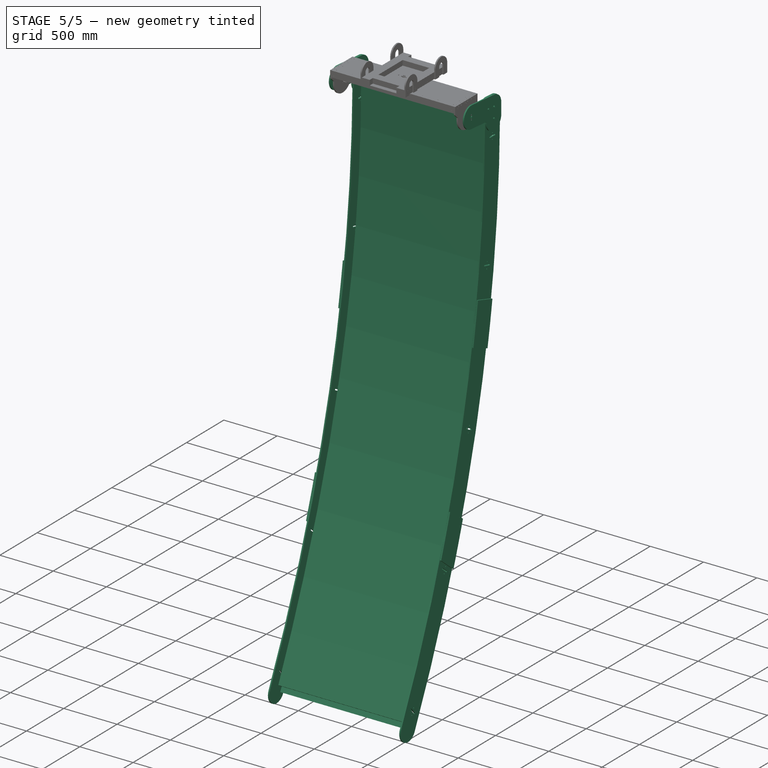
[diagram: stage 5 of 5 — iso view after this stage's code; geometry added in this stage tinted green]
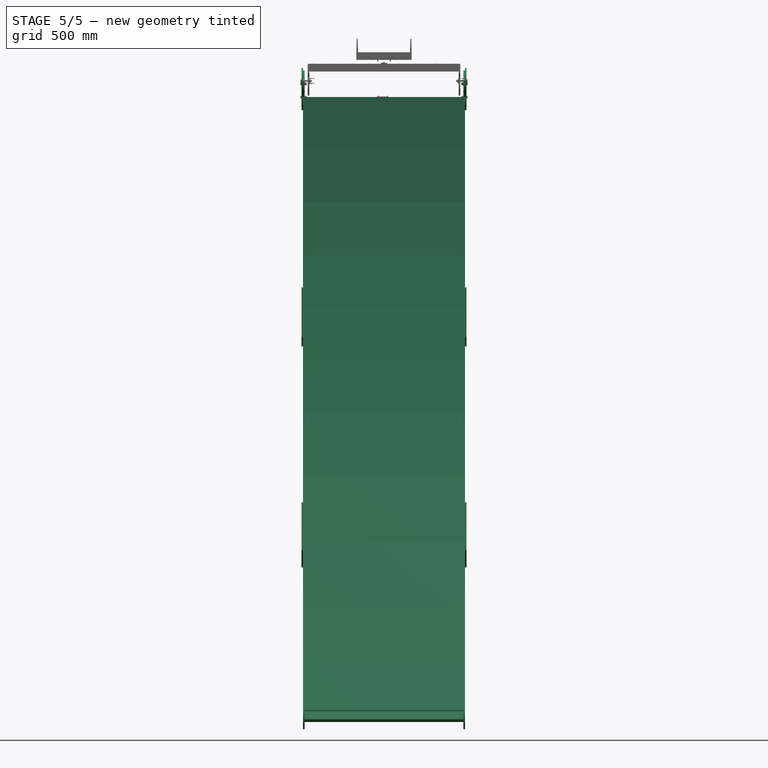
[diagram: stage 5 of 5 — front view after this stage's code; geometry added in this stage tinted green]
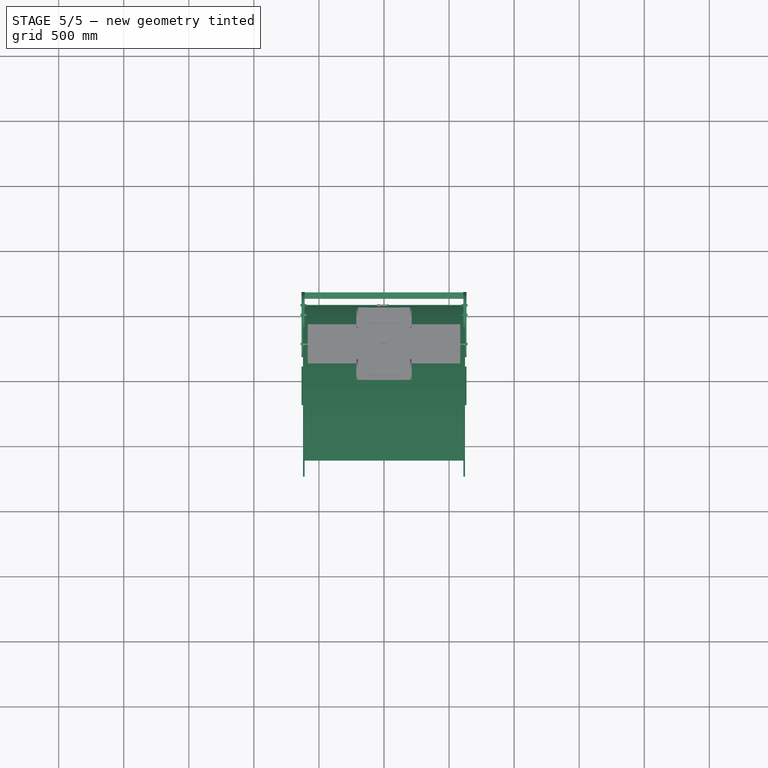
[diagram: stage 5 of 5 — top view after this stage's code; geometry added in this stage tinted green]
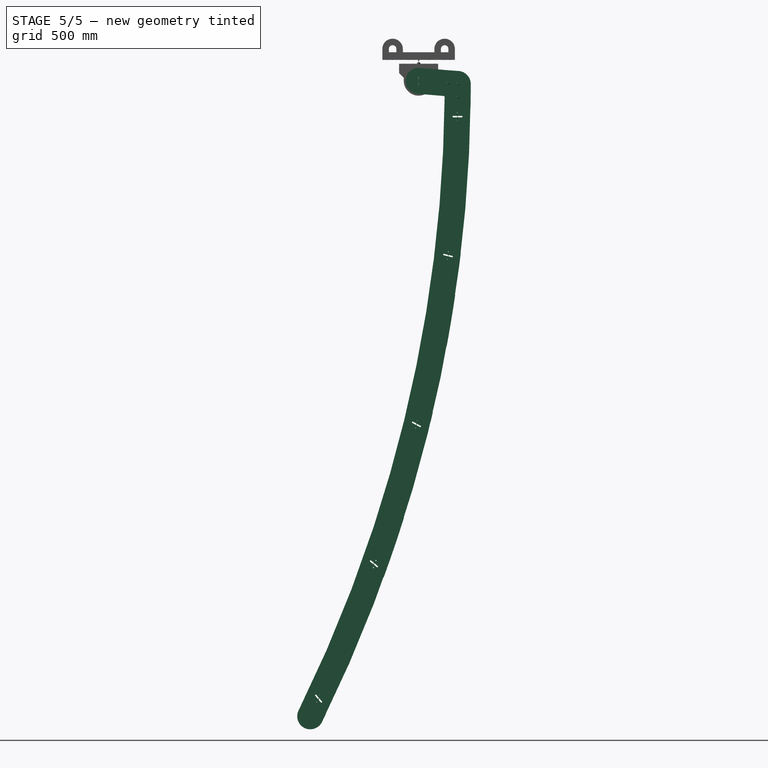
[diagram: stage 5 of 5 — right view after this stage's code; geometry added in this stage tinted green]
FEATURE [Spreadsheet::Sheet] Spreadsheet  label="d"
  cells = A1=Focus Distance; B1(focus_distance)=12000; A2=Panel Length; B2(panel_length)=2440; A3=Panel Width; B3(panel_width)=1220; A4=Panel Thickness; B4(panel_thickness)=4; A5=Sides Thickness; B5(sides_thickness)=12; A6=Screws Diameter; B6(screws_diam)=10; A7=Sides Width; B7(sides_width)=200; A8=support_thickness; B8(support_thickness)=12; A9=support_width; B9(support_width)=300; A10=Support Bottom Width; B10(support_bottom_width)==panel_width - 4 * sides_thickness; A11=Ball Bearing Internal Diam; B11(ball_bearing_int_diam)=12; A12=Distance between pipes; B12(tubes_distance)=400; A13=3x2 posts width; B13(post_width_3_2)=47; A14=3x2 posts height; B14(post_height_3_2)=75; A15=tubes diameter; B15(tubes_diam)=50; A16=tool diameter; B16(tool_diam)=8; A17=distance_screws_ball_bearing; B17(distance_screws_ball_bearing)=48
FEATURE [Sketcher::SketchObject] Sketch
  FullyConstrained = true
  MapMode = 5
  Placement = pos=(0,0,0) rot=(0.57735,0.57735,0.57735;2.0944rad)
  Support = -> [YZ_Plane]
  expr: Constraints[12] = <<d>>.panel_length / 2
  expr: Constraints[21] = <<d>>.panel_thickness
  expr: Constraints[6] = <<d>>.focus_distance
  sketch-geometry (11):
    g0: ArcOfParabola CenterX=0 CenterY=0 CenterZ=0 NormalX=0 NormalY=0 NormalZ=1 Focal=12000 AngleXU=-3.14159 StartAngle=0 EndAngle=2436.08
    g1: GeomPoint X=-12000 Y=0 Z=0
    g2: LineSegment StartX=0 StartY=0 StartZ=0 EndX=-12000 EndY=0 EndZ=0
    g3: LineSegment StartX=-123.635 StartY=-2436.08 StartZ=0 EndX=-30.9883 EndY=-1219.61 EndZ=0
    g4: LineSegment StartX=-30.9883 StartY=-1219.61 StartZ=0 EndX=0 EndY=0 EndZ=0
    g5: ArcOfParabola CenterX=4 CenterY=0 CenterZ=0 NormalX=0 NormalY=0 NormalZ=1 Focal=12004 AngleXU=-3.14159 StartAngle=0 EndAngle=2436.9
    g6: GeomPoint X=-12000 Y=0 Z=0
    g7: LineSegment StartX=4 StartY=0 StartZ=0 EndX=-12000 EndY=0 EndZ=0
    g8: LineSegment StartX=0 StartY=0 StartZ=0 EndX=4 EndY=0 EndZ=0
    g9: LineSegment StartX=-123.635 StartY=-2436.08 StartZ=0 EndX=-119.677 EndY=-2436.9 EndZ=0
    g10: LineSegment StartX=-12000 StartY=0 StartZ=0 EndX=-119.677 EndY=-2436.9 EndZ=0
  constraints (27):
    c: InternalAlignment(g1,g0)
    c: Coincident(g1,g2)
    c: Coincident(g0,g2)
    c: PointOnObject(g1,g-1)
    c: Coincident(g0,g-1)
    c: Coincident(g0,g-1)
    c: Distance(g2) = 12000
    c: Coincident(g3,g0)
    c: PointOnObject(g3,g0)
    c: Coincident(g4,g3)
    c: Coincident(g4,g0)
    c: Equal(g3,g4)
    c: Distance(g4) = 1220
    c: InternalAlignment(g6,g5)
    c: Coincident(g6,g7)
    c: Coincident(g5,g7)
    c: Coincident(g6,g1)
    c: PointOnObject(g5,g-1)
    c: PointOnObject(g5,g-1)
    c: Coincident(g8,g0)
    c: Coincident(g8,g5)
    c: DistanceX(g8,g8) = 4
    c: Coincident(g9,g0)
    c: Coincident(g5,g9)
    c: Coincident(g10,g1)
    c: Coincident(g10,g5)
    c: PointOnObject(g0,g10)
FEATURE [PartDesign::Pad] Pad
  Direction = (1,-2e-16,3e-16)
  Length = 1220
  Length2 = 10
  Midplane = true
  Placement = pos=(0,0,0) rot=(0.57735,0.57735,0.57735;2.0944rad)
  Profile = -> Sketch
  ReferenceAxis = -> Sketch [N_Axis]
  Type = 0
  expr: Length = <<d>>.panel_width
FEATURE [PartDesign::Body] Body  label="panel_1"
  Group = -> [Sketch,Pad]
  Origin = -> Origin
  Tip = -> Pad
FEATURE [Sketcher::SketchObject] Sketch001
  FullyConstrained = true
  MapMode = 5
  Placement = pos=(0,0,0) rot=(0.57735,0.57735,0.57735;2.0944rad)
  Support = -> [YZ_Plane001]
  expr: Constraints[11] = <<d>>.panel_length / 2
  expr: Constraints[19] = <<d>>.panel_thickness
  expr: Constraints[5] = <<d>>.focus_distance
  sketch-geometry (21):
    g0: ArcOfParabola CenterX=0 CenterY=0 CenterZ=0 NormalX=0 NormalY=0 NormalZ=1 Focal=12000 AngleXU=-3.14159 StartAngle=-1.934e-13 EndAngle=2436.08
    g1: GeomPoint X=-12000 Y=0 Z=0
    g2: LineSegment StartX=0 StartY=0 StartZ=0 EndX=-12000 EndY=0 EndZ=0
    g3: LineSegment StartX=-123.635 StartY=-2436.08 StartZ=0 EndX=-30.9883 EndY=-1219.61 EndZ=0
    g4: LineSegment StartX=-30.9883 StartY=-1219.61 StartZ=0 EndX=0 EndY=2.274e-13 EndZ=0
    g5: ArcOfParabola CenterX=4 CenterY=0 CenterZ=0 NormalX=0 NormalY=0 NormalZ=1 Focal=12004 AngleXU=-3.14159 StartAngle=-2.378e-13 EndAngle=2436.9
    g6: GeomPoint X=-12000 Y=0 Z=0
    g7: LineSegment StartX=4 StartY=0 StartZ=0 EndX=-12000 EndY=0 EndZ=0
    g8: LineSegment StartX=0 StartY=1.934e-13 StartZ=0 EndX=4 EndY=2.378e-13 EndZ=0
    g9: LineSegment StartX=-123.635 StartY=-2436.08 StartZ=0 EndX=-119.677 EndY=-2436.9 EndZ=0
    g10: LineSegment StartX=-12000 StartY=0 StartZ=0 EndX=-119.677 EndY=-2436.9 EndZ=0
    g11: ArcOfParabola CenterX=0 CenterY=1.934e-13 CenterZ=0 NormalX=0 NormalY=0 NormalZ=1 Focal=12000 AngleXU=-3.14159 StartAngle=2436.08 EndAngle=4847.74
    g12: GeomPoint X=-12000 Y=0 Z=0
    g13: LineSegment StartX=0 StartY=1.934e-13 StartZ=0 EndX=-12000 EndY=0 EndZ=0
    g14: LineSegment StartX=-123.635 StartY=-2436.08 StartZ=0 EndX=-277.006 EndY=-3646.4 EndZ=0
    g15: LineSegment StartX=-277.006 StartY=-3646.4 StartZ=0 EndX=-489.595 EndY=-4847.74 EndZ=0
    g16: ArcOfParabola CenterX=4 CenterY=2.378e-13 CenterZ=0 NormalX=0 NormalY=0 NormalZ=1 Focal=12004 AngleXU=-3.14159 StartAngle=2436.9 EndAngle=4849.36
    g17: GeomPoint X=-12000 Y=0 Z=0
    g18: LineSegment StartX=4 StartY=2.378e-13 StartZ=0 EndX=-12000 EndY=0 EndZ=0
    g19: LineSegment StartX=-12000 StartY=0 StartZ=0 EndX=-489.595 EndY=-4847.74 EndZ=0
    g20: LineSegment StartX=-489.595 StartY=-4847.74 StartZ=0 EndX=-485.759 EndY=-4849.36 EndZ=0
  constraints (48):
    c: InternalAlignment(g1,g0)
    c: Coincident(g1,g2)
    c: Coincident(g0,g2)
    c: PointOnObject(g1,g-1)
    c: Coincident(g0,g-1)
    c: Distance(g2) = 12000
    c: Coincident(g3,g0)
    c: PointOnObject(g3,g0)
    c: Coincident(g4,g3)
    c: Coincident(g4,g0)
    c: Equal(g3,g4)
    c: Distance(g4) = 1220
    c: InternalAlignment(g6,g5)
    c: Coincident(g6,g7)
    c: Coincident(g5,g7)
    c: Coincident(g6,g1)
    c: PointOnObject(g5,g-1)
    c: Coincident(g8,g0)
    c: Coincident(g8,g5)
    c: DistanceX(g8,g8) = 4
    c: Coincident(g9,g0)
    c: Coincident(g5,g9)
    c: Coincident(g10,g1)
    c: Coincident(g10,g5)
    c: PointOnObject(g0,g10)
    c: InternalAlignment(g12,g11)
    c: Coincident(g12,g13)
    c: Coincident(g11,g13)
    c: Coincident(g12,g1)
    c: Coincident(g11,g0)
    c: Coincident(g11,g9)
    c: Coincident(g14,g9)
    c: PointOnObject(g14,g11)
    c: Coincident(g15,g14)
    c: Coincident(g15,g11)
    c: Equal(g15,g14)
    c: Equal(g14,g3)
    c: InternalAlignment(g17,g16)
    c: Coincident(g17,g18)
    c: Coincident(g16,g18)
    c: Coincident(g17,g1)
    c: Coincident(g16,g5)
    c: Coincident(g16,g9)
    c: Coincident(g19,g1)
    c: Coincident(g19,g11)
    c: Coincident(g20,g11)
    c: Coincident(g20,g16)
    c: PointOnObject(g16,g19)
FEATURE [PartDesign::Pad] Pad001
  Direction = (1,-2e-16,3e-16)
  Length = 1220
  Length2 = 10
  Midplane = true
  Placement = pos=(0,0,0) rot=(0.57735,0.57735,0.57735;2.0944rad)
  Profile = -> Sketch001
  ReferenceAxis = -> Sketch001 [N_Axis]
  Type = 0
  expr: Length = <<d>>.panel_width
FEATURE [Sketcher::SketchObject] Sketch025  label="post_3_2"
  FullyConstrained = true
  expr: Constraints[6] = <<d>>.post_width_3_2
  expr: Constraints[7] = <<d>>.post_height_3_2
  sketch-geometry (4):
    g0: LineSegment StartX=-23.5 StartY=37.5 StartZ=0 EndX=23.5 EndY=37.5 EndZ=0
    g1: LineSegment StartX=23.5 StartY=37.5 StartZ=0 EndX=23.5 EndY=-37.5 EndZ=0
    g2: LineSegment StartX=23.5 StartY=-37.5 StartZ=0 EndX=-23.5 EndY=-37.5 EndZ=0
    g3: LineSegment StartX=-23.5 StartY=-37.5 StartZ=0 EndX=-23.5 EndY=37.5 EndZ=0
  constraints (10):
    c: Coincident(g0,g1)
    c: Coincident(g1,g2)
    c: Coincident(g2,g3)
    c: Coincident(g3,g0)
    c: Horizontal(g2)
    c: Vertical(g3)
    c: DistanceX(g0,g0) = 47
    c: DistanceY(g1,g1) = 75
    c: Symmetric(g0,g0,g-2)
    c: Symmetric(g0,g1,g-1)
FEATURE [Sketcher::SketchObject] Sketch026
  FullyConstrained = false
  MapMode = 5
  Placement = pos=(0,0,0) rot=(0.57735,0.57735,0.57735;2.0944rad)
  Support = -> [YZ_Plane002]
  expr: Constraints[11] = <<d>>.panel_length / 2
  expr: Constraints[19] = <<d>>.panel_thickness
  expr: Constraints[55] = <<d>>.panel_thickness
  expr: Constraints[5] = <<d>>.focus_distance
  sketch-geometry (26):
    g0: ArcOfParabola CenterX=0 CenterY=0 CenterZ=0 NormalX=0 NormalY=0 NormalZ=1 Focal=5000 AngleXU=-3.14159 StartAngle=2.97e-13 EndAngle=2418.07
    g1: GeomPoint X=-5000 Y=0 Z=0
    g2: LineSegment StartX=0 StartY=0 StartZ=0 EndX=-5000 EndY=0 EndZ=0
    g3: LineSegment StartX=-292.354 StartY=-2418.07 StartZ=0 EndX=-74.1451 EndY=-1217.74 EndZ=0
    g4: LineSegment StartX=-74.1451 StartY=-1217.74 StartZ=0 EndX=0 EndY=-2.274e-13 EndZ=0
    g5: ArcOfParabola CenterX=4 CenterY=0 CenterZ=0 NormalX=0 NormalY=0 NormalZ=1 Focal=5004 AngleXU=-3.14159 StartAngle=-4.9e-15 EndAngle=2420.01
    g6: GeomPoint X=-5000 Y=0 Z=0
    g7: LineSegment StartX=4 StartY=0 StartZ=0 EndX=-5000 EndY=0 EndZ=0
    g8: LineSegment StartX=0 StartY=-2.97e-13 StartZ=0 EndX=4 EndY=4.9e-15 EndZ=0
    g9: LineSegment StartX=-292.354 StartY=-2418.07 StartZ=0 EndX=-288.587 EndY=-2420.01 EndZ=0
    g10: LineSegment StartX=-5000 StartY=0 StartZ=0 EndX=-288.587 EndY=-2420.01 EndZ=0
    g11: ArcOfParabola CenterX=0 CenterY=-2.97e-13 CenterZ=0 NormalX=0 NormalY=0 NormalZ=1 Focal=5000 AngleXU=3.14159 StartAngle=2418.07 EndAngle=4713.37
    g12: GeomPoint X=-5000 Y=0 Z=0
    g13: LineSegment StartX=0 StartY=-2.97e-13 StartZ=0 EndX=-5000 EndY=0 EndZ=0
    g14: LineSegment StartX=-292.354 StartY=-2418.07 StartZ=0 EndX=-643.166 EndY=-3586.55 EndZ=0
    g15: LineSegment StartX=-643.166 StartY=-3586.55 StartZ=0 EndX=-1110.79 EndY=-4713.37 EndZ=0
    g16: ArcOfParabola CenterX=4 CenterY=4.9e-15 CenterZ=0 NormalX=0 NormalY=0 NormalZ=1 Focal=5004 AngleXU=-3.14159 StartAngle=2420.01 EndAngle=4717.14
    g17: GeomPoint X=-5000 Y=0 Z=0
    g18: LineSegment StartX=4 StartY=4.9e-15 StartZ=0 EndX=-5000 EndY=0 EndZ=0
    g19: LineSegment StartX=-5000 StartY=0 StartZ=0 EndX=-1110.79 EndY=-4713.37 EndZ=0
    g20: LineSegment StartX=-1110.79 StartY=-4713.37 StartZ=0 EndX=-1107.68 EndY=-4717.14 EndZ=0
    g21: LineSegment StartX=-254.339 StartY=-2273.96 StartZ=0 EndX=-258.227 EndY=-2273.02 EndZ=0
    g22: LineSegment StartX=-258.227 StartY=-2273.02 StartZ=0 EndX=-324.843 EndY=-2565.56 EndZ=0
    g23: LineSegment StartX=-324.843 StartY=-2565.56 StartZ=0 EndX=-324.843 EndY=-2565.56 EndZ=0
    g24: LineSegment StartX=-324.843 StartY=-2565.56 StartZ=0 EndX=-254.339 EndY=-2273.96 EndZ=0
    g25: Circle CenterX=-288.587 CenterY=-2420.01 CenterZ=0 NormalX=0 NormalY=0 NormalZ=1 AngleXU=0 Radius=150.004
  constraints (62):
    c: InternalAlignment(g1,g0)
    c: Coincident(g1,g2)
    c: Coincident(g0,g2)
    c: PointOnObject(g1,g-1)
    c: Coincident(g0,g-1)
    c: Distance(g2) = 12000
    c: Coincident(g3,g0)
    c: PointOnObject(g3,g0)
    c: Coincident(g4,g3)
    c: Coincident(g4,g0)
    c: Equal(g3,g4)
    c: Distance(g4) = 1220
    c: InternalAlignment(g6,g5)
    c: Coincident(g6,g7)
    c: Coincident(g5,g7)
    c: Coincident(g6,g1)
    c: PointOnObject(g5,g-1)
    c: Coincident(g8,g0)
    c: Coincident(g8,g5)
    c: DistanceX(g8,g8) = 4
    c: Coincident(g9,g0)
    c: Coincident(g5,g9)
    c: Coincident(g10,g1)
    c: Coincident(g10,g5)
    c: PointOnObject(g0,g10)
    c: InternalAlignment(g12,g11)
    c: Coincident(g12,g13)
    c: Coincident(g11,g13)
    c: Coincident(g12,g1)
    c: Coincident(g11,g0)
    c: Coincident(g11,g9)
    c: Coincident(g14,g9)
    c: PointOnObject(g14,g11)
    c: Coincident(g15,g14)
    c: Coincident(g15,g11)
    c: Equal(g15,g14)
    c: Equal(g14,g3)
    c: InternalAlignment(g17,g16)
    c: Coincident(g17,g18)
    c: Coincident(g16,g18)
    c: Coincident(g17,g1)
    c: Coincident(g16,g5)
    c: Coincident(g16,g9)
    c: Coincident(g19,g1)
    c: Coincident(g19,g11)
    c: Coincident(g20,g11)
    c: Coincident(g20,g16)
    c: PointOnObject(g16,g19)
    c: Coincident(g21,g22)
    c: Coincident(g22,g23)
    c: Coincident(g23,g24)
    c: Coincident(g24,g21)
    c: Perpendicular(g24,g23)
    c: Perpendicular(g23,g22)
    c: Perpendicular(g24,g21)
    c: Distance(g21) = 4
    c: PointOnObject(g21,g5)
    c: PointOnObject(g23,g16)
    c: Distance(g24) = 300
    c: Coincident(g25,g5)
    c: PointOnObject(g23,g25)
    c: PointOnObject(g21,g25)
FEATURE [PartDesign::Pad] Pad011
  Direction = (1,-2e-16,3e-16)
  Length = 1220
  Length2 = 10
  Midplane = true
  Placement = pos=(0,0,0) rot=(0.57735,0.57735,0.57735;2.0944rad)
  Profile = -> Sketch026
  ReferenceAxis = -> Sketch026 [N_Axis]
  Type = 0
  expr: Length = <<d>>.panel_width
FEATURE [Sketcher::SketchObject] Sketch028
  FullyConstrained = true
  MapMode = 5
  Placement = pos=(0,0,0) rot=(0.57735,0.57735,0.57735;2.0944rad)
  Support = -> [YZ_Plane013]
  expr: Constraints[113] = <<d>>.sides_width * 2
  expr: Constraints[17] = <<d>>.panel_length / 2
  expr: Constraints[25] = <<d>>.sides_width / 2
  expr: Constraints[26] = <<d>>.sides_width / 2
  expr: Constraints[35] = <<d>>.sides_width
  expr: Constraints[36] = <<d>>.sides_width * 2
  expr: Constraints[37] = <<d>>.sides_width * 2
  expr: Constraints[38] = <<d>>.sides_width
  expr: Constraints[45] = <<d>>.sides_width
  expr: Constraints[5] = <<d>>.focus_distance
  expr: Constraints[68] = <<d>>.sides_thickness
  sketch-geometry (46):
    g0: ArcOfParabola CenterX=0 CenterY=0 CenterZ=0 NormalX=0 NormalY=0 NormalZ=1 Focal=12000 AngleXU=-3.14159 StartAngle=0 EndAngle=4847.74
    g1: GeomPoint X=-12000 Y=0 Z=0
    g2: LineSegment StartX=0 StartY=0 StartZ=0 EndX=-12000 EndY=0 EndZ=0
    g3: LineSegment StartX=0 StartY=0 StartZ=0 EndX=-30.9883 EndY=-1219.61 EndZ=0
    g4: LineSegment StartX=-30.9883 StartY=-1219.61 StartZ=0 EndX=-123.635 EndY=-2436.08 EndZ=0
    g5: LineSegment StartX=-123.635 StartY=-2436.08 StartZ=0 EndX=-277.006 EndY=-3646.4 EndZ=0
    g6: LineSegment StartX=-277.006 StartY=-3646.4 StartZ=0 EndX=-489.595 EndY=-4847.74 EndZ=0
    g7: ArcOfCircle CenterX=-24429.6 CenterY=18.6672 CenterZ=0 NormalX=0 NormalY=0 NormalZ=1 AngleXU=0 Radius=24429.6 StartAngle=6.08264 EndAngle=6.28242
    g8: ArcOfCircle CenterX=-499.606 CenterY=-4896.73 CenterZ=0 NormalX=0 NormalY=0 NormalZ=1 AngleXU=0 Radius=100 StartAngle=2.939 EndAngle=6.0806
    g9: ArcOfCircle CenterX=0 CenterY=200 CenterZ=0 NormalX=0 NormalY=0 NormalZ=1 AngleXU=0 Radius=100.152 StartAngle=6.28242 EndAngle=7.39101
    g10: LineSegment StartX=100 StartY=0 StartZ=0 EndX=100.152 EndY=199.924 EndZ=0
    g11: LineSegment StartX=-155.34 StartY=389.473 StartZ=0 EndX=44.7284 EndY=289.609 EndZ=0
    g12: Circle CenterX=-400 CenterY=400 CenterZ=0 NormalX=0 NormalY=0 NormalZ=1 AngleXU=0 Radius=100
    g13: LineSegment StartX=-100 StartY=0 StartZ=0 EndX=-100 EndY=76.3751 EndZ=0
    g14: LineSegment StartX=-400 StartY=400 StartZ=0 EndX=-200 EndY=300 EndZ=0
    g15: LineSegment StartX=-200 StartY=300 StartZ=0 EndX=0 EndY=200 EndZ=0
    g16: ArcOfCircle CenterX=-200 CenterY=300 CenterZ=0 NormalX=0 NormalY=0 NormalZ=1 AngleXU=0 Radius=100 StartAngle=1.10783 EndAngle=4.24942
    g17: LineSegment StartX=-244.66 StartY=210.527 StartZ=0 EndX=-155.424 EndY=165.984 EndZ=0
    g18: ArcOfCircle CenterX=-200.152 CenterY=76.3751 CenterZ=0 NormalX=0 NormalY=0 NormalZ=1 AngleXU=0 Radius=100.152 StartAngle=0 EndAngle=1.10783
    g19: LineSegment StartX=-156.644 StartY=-1640.66 StartZ=0 EndX=-90.4497 EndY=-1649.83 EndZ=0
    g20: LineSegment StartX=-83.6725 StartY=-1643.15 StartZ=0 EndX=-90.3028 EndY=-1590.02 EndZ=0
    g21: LineSegment StartX=-83.5256 StartY=-1583.33 StartZ=0 EndX=-17.3316 EndY=-1592.5 EndZ=0
    g22: LineSegment StartX=-12.4535 StartY=-1600.31 StartZ=0 EndX=-29.1337 EndY=-1651.19 EndZ=0
    g23: LineSegment StartX=-24.2556 StartY=-1659 StartZ=0 EndX=41.9385 EndY=-1668.17 EndZ=0
    g24: ArcOfCircle CenterX=-89.6263 CenterY=-1643.89 CenterZ=0 NormalX=0 NormalY=0 NormalZ=1 AngleXU=0 Radius=6 StartAngle=4.57473 EndAngle=6.40733
    g25: ArcOfCircle CenterX=-84.349 CenterY=-1589.27 CenterZ=0 NormalX=0 NormalY=0 NormalZ=1 AngleXU=0 Radius=6 StartAngle=1.43314 EndAngle=3.26574
    g26: ArcOfCircle CenterX=-18.1549 CenterY=-1598.44 CenterZ=0 NormalX=0 NormalY=0 NormalZ=1 AngleXU=0 Radius=6 StartAngle=5.96639 EndAngle=7.71633
    g27: ArcOfCircle CenterX=-23.4323 CenterY=-1653.06 CenterZ=0 NormalX=0 NormalY=0 NormalZ=1 AngleXU=0 Radius=6 StartAngle=2.8248 EndAngle=4.57473
    g28: LineSegment StartX=-90.4497 StartY=-1649.83 StartZ=0 EndX=-24.2556 EndY=-1659 EndZ=0
    g29: LineSegment StartX=-431.707 StartY=-3251.07 StartZ=0 EndX=-597.56 EndY=-4876.61 EndZ=0
    g30: LineSegment StartX=-100 StartY=0 StartZ=0 EndX=-265.853 EndY=-1625.54 EndZ=0
    g31: LineSegment StartX=-265.853 StartY=-1625.54 StartZ=0 EndX=-431.707 EndY=-3251.07 EndZ=0
    g32: LineSegment StartX=-12000 StartY=0 StartZ=0 EndX=-265.853 EndY=-1625.54 EndZ=0
    g33: LineSegment StartX=-12000 StartY=0 StartZ=0 EndX=-431.707 EndY=-3251.07 EndZ=0
    g34: LineSegment StartX=-17.3316 StartY=-1592.5 StartZ=0 EndX=-26.5015 EndY=-1658.69 EndZ=0
    g35: ArcOfCircle CenterX=-24429.6 CenterY=18.6672 CenterZ=0 NormalX=0 NormalY=0 NormalZ=1 AngleXU=0 Radius=24329.6 StartAngle=6.21493 EndAngle=6.22302
    g36: ArcOfCircle CenterX=-24429.6 CenterY=18.6672 CenterZ=0 NormalX=0 NormalY=0 NormalZ=1 AngleXU=0 Radius=24329.6 StartAngle=6.22302 EndAngle=6.28242
    g37: ArcOfCircle CenterX=-24429.6 CenterY=18.6672 CenterZ=0 NormalX=0 NormalY=0 NormalZ=1 AngleXU=0 Radius=24529.6 StartAngle=6.21436 EndAngle=6.22252
    g38: ArcOfCircle CenterX=-24429.6 CenterY=18.6672 CenterZ=0 NormalX=0 NormalY=0 NormalZ=1 AngleXU=0 Radius=24529.6 StartAngle=6.22252 EndAngle=6.28242
    g39: ArcOfCircle CenterX=-24429.6 CenterY=18.6672 CenterZ=0 NormalX=0 NormalY=0 NormalZ=1 AngleXU=0 Radius=24329.6 StartAngle=6.0806 EndAngle=6.20684
    g40: ArcOfCircle CenterX=-24429.6 CenterY=18.6672 CenterZ=0 NormalX=0 NormalY=0 NormalZ=1 AngleXU=0 Radius=24329.6 StartAngle=6.20684 EndAngle=6.21493
    g41: ArcOfCircle CenterX=-24429.6 CenterY=18.6672 CenterZ=0 NormalX=0 NormalY=0 NormalZ=1 AngleXU=0 Radius=24529.6 StartAngle=6.0806 EndAngle=6.20621
    g42: ArcOfCircle CenterX=-24429.6 CenterY=18.6672 CenterZ=0 NormalX=0 NormalY=0 NormalZ=1 AngleXU=0 Radius=24529.6 StartAngle=6.20621 EndAngle=6.21436
    g43: LineSegment StartX=-144.021 StartY=-1444.36 StartZ=0 EndX=54.8784 EndY=-1468.59 EndZ=0
    g44: LineSegment StartX=-170.853 StartY=-1836.86 StartZ=0 EndX=27.3717 EndY=-1867.64 EndZ=0
    g45: Circle CenterX=41.9385 CenterY=-1668.17 CenterZ=0 NormalX=0 NormalY=0 NormalZ=1 AngleXU=0 Radius=200
  constraints (117):
    c: InternalAlignment(g1,g0)
    c: Coincident(g1,g2)
    c: Coincident(g0,g2)
    c: PointOnObject(g1,g-1)
    c: Coincident(g0,g-1)
    c: Distance(g2) = 12000
    c: Coincident(g3,g0)
    c: PointOnObject(g3,g0)
    c: Coincident(g3,g4)
    c: PointOnObject(g4,g0)
    c: Coincident(g4,g5)
    c: PointOnObject(g5,g0)
    c: Coincident(g6,g5)
    c: Coincident(g6,g0)
    c: Equal(g6,g5)
    c: Equal(g5,g4)
    c: Equal(g4,g3)
    c: Distance(g3) = 1220
    c: Coincident(g7,g0)
    c: Coincident(g7,g0)
    c: PointOnObject(g4,g7)
    c: Coincident(g39,g7)
    c: PointOnObject(g36,g2)
    c: Coincident(g41,g7)
    c: PointOnObject(g38,g-1)
    c: DistanceX(g36,g7) = 100
    c: DistanceX(g7,g38) = 100
    c: Tangent(g8,g39) = 1.5708
    c: Tangent(g8,g41) = -1.5708
    c: Distance(g7,g8) = 50
    c: PointOnObject(g9,g-2)
    c: PointOnObject(g7,g2)
    c: Tangent(g10,g38) = -1.5708
    c: Tangent(g10,g9) = -1.5708
    c: Tangent(g11,g9) = 1.5708
    c: DistanceY(g-1,g9) = 200
    c: DistanceX(g12,g0) = 400
    c: DistanceY(g0,g12) = 400
    c: Diameter(g12) = 200
    c: Coincident(g13,g36)
    c: Coincident(g14,g12)
    c: Coincident(g15,g9)
    c: Equal(g15,g14)
    c: Parallel(g14,g15)
    c: Coincident(g16,g14)
    c: Diameter(g16) = 200
    c: Tangent(g11,g16) = 1.5708
    c: Coincident(g14,g15)
    c: Vertical(g13)
    c: Parallel(g17,g11)
    c: Tangent(g17,g16) = -1.5708
    c: Tangent(g17,g18) = 1.5708
    c: Tangent(g13,g18) = -1.5708
    c: Equal(g18,g9)
    c: Equal(g19,g23)
    c: Angle(g20,g19) = 1.309
    c: Tangent(g20,g24) = -1.5708
    c: Tangent(g19,g24) = -1.5708
    c: Tangent(g20,g25) = 1.5708
    c: Tangent(g21,g25) = 1.5708
    c: Tangent(g21,g26) = 1.5708
    c: Tangent(g22,g26) = 1.5708
    c: Tangent(g23,g27) = -1.5708
    c: Tangent(g22,g27) = -1.5708
    c: Coincident(g28,g19)
    c: Coincident(g28,g23)
    c: Equal(g19,g28)
    c: Equal(g21,g23)
    c: Diameter(g27) = 12
    c: Equal(g24,g27)
    c: Equal(g27,g25)
    c: Equal(g25,g26)
    c: Coincident(g40,g35)
    c: Coincident(g39,g35)
    c: Coincident(g40,g19)
    c: Coincident(g42,g37)
    c: Coincident(g41,g37)
    c: Coincident(g42,g23)
    c: Coincident(g30,g13)
    c: Coincident(g29,g8)
    c: Coincident(g31,g29)
    c: Coincident(g30,g31)
    c: Equal(g30,g31)
    c: Equal(g31,g29)
    c: PointOnObject(g30,g29)
    c: PointOnObject(g29,g30)
    c: Coincident(g32,g1)
    c: Coincident(g32,g30)
    c: Coincident(g33,g1)
    c: Coincident(g33,g29)
    c: PointOnObject(g19,g23)
    c: PointOnObject(g23,g19)
    c: Parallel(g21,g28)
    c: PointOnObject(g19,g32)
    c: Parallel(g19,g32)
    c: Coincident(g34,g21)
    c: PointOnObject(g34,g28)
    c: Equal(g34,g21)
    c: Perpendicular(g21,g34)
    c: Coincident(g35,g36)
    c: Coincident(g35,g36)
    c: Coincident(g37,g38)
    c: Coincident(g37,g38)
    c: Coincident(g39,g40)
    c: Coincident(g39,g40)
    c: Coincident(g41,g42)
    c: Coincident(g41,g42)
    c: Coincident(g43,g35)
    c: Coincident(g43,g37)
    c: Coincident(g44,g39)
    c: Coincident(g44,g41)
    c: Coincident(g45,g37)
    c: PointOnObject(g37,g45)
    c: Diameter(g45) = 400
    c: PointOnObject(g42,g45)
    c: PointOnObject(g1,g43)
    c: PointOnObject(g1,g44)
FEATURE [PartDesign::Pad] Pad013
  Direction = (1,-2e-16,3e-16)
  Length = 12
  Length2 = 10
  Placement = pos=(0,0,0) rot=(0.57735,0.57735,0.57735;2.0944rad)
  Profile = -> Sketch028
  ReferenceAxis = -> Sketch028 [N_Axis]
  Type = 0
  expr: Length = <<d>>.sides_thickness
FEATURE [PartDesign::Body] Body013  label="side_left_joint_1"
  Group = -> [Sketch028,Pad013]
  Origin = -> Origin013
  Placement = pos=(622,0,0) rot=(0,0,1;0rad)
  Tip = -> Pad013
  expr: .Placement.Base.x = <<d>>.panel_width / 2 + <<d>>.sides_thickness
FEATURE [Part::Mirroring] Part__Mirroring010  label="side_right_joint_1"
  Base = (0,0,0)
  Normal = (1,0,0)
  Source = -> Body013
FEATURE [Sketcher::SketchObject] Sketch029
  FullyConstrained = true
  MapMode = 5
  Placement = pos=(0,0,0) rot=(0.57735,0.57735,0.57735;2.0944rad)
  Support = -> [YZ_Plane014]
  expr: Constraints[107] = <<d>>.sides_thickness
  expr: Constraints[151] = <<d>>.sides_width * 2
  expr: Constraints[17] = <<d>>.panel_length / 2
  expr: Constraints[25] = <<d>>.sides_width / 2
  expr: Constraints[26] = <<d>>.sides_width / 2
  expr: Constraints[35] = <<d>>.sides_width
  expr: Constraints[36] = <<d>>.sides_width * 2
  expr: Constraints[37] = <<d>>.sides_width * 2
  expr: Constraints[38] = <<d>>.sides_width
  expr: Constraints[45] = <<d>>.sides_width
  expr: Constraints[5] = <<d>>.focus_distance
  expr: Constraints[64] = <<d>>.sides_thickness
  sketch-geometry (59):
    g0: ArcOfParabola CenterX=0 CenterY=0 CenterZ=0 NormalX=0 NormalY=0 NormalZ=1 Focal=12000 AngleXU=-3.14159 StartAngle=0 EndAngle=4847.74
    g1: GeomPoint X=-12000 Y=0 Z=0
    g2: LineSegment StartX=0 StartY=0 StartZ=0 EndX=-12000 EndY=0 EndZ=0
    g3: LineSegment StartX=0 StartY=0 StartZ=0 EndX=-30.9883 EndY=-1219.61 EndZ=0
    g4: LineSegment StartX=-30.9883 StartY=-1219.61 StartZ=0 EndX=-123.635 EndY=-2436.08 EndZ=0
    g5: LineSegment StartX=-123.635 StartY=-2436.08 StartZ=0 EndX=-277.006 EndY=-3646.4 EndZ=0
    g6: LineSegment StartX=-277.006 StartY=-3646.4 StartZ=0 EndX=-489.595 EndY=-4847.74 EndZ=0
    g7: ArcOfCircle CenterX=-24429.6 CenterY=18.6672 CenterZ=0 NormalX=0 NormalY=0 NormalZ=1 AngleXU=0 Radius=24429.6 StartAngle=6.08264 EndAngle=6.28242
    g8: ArcOfCircle CenterX=-499.606 CenterY=-4896.73 CenterZ=0 NormalX=0 NormalY=0 NormalZ=1 AngleXU=0 Radius=100 StartAngle=2.939 EndAngle=6.0806
    g9: ArcOfCircle CenterX=0 CenterY=200 CenterZ=0 NormalX=0 NormalY=0 NormalZ=1 AngleXU=0 Radius=100.152 StartAngle=6.28242 EndAngle=7.39101
    g10: LineSegment StartX=100 StartY=0 StartZ=0 EndX=100.152 EndY=199.924 EndZ=0
    g11: LineSegment StartX=-155.34 StartY=389.473 StartZ=0 EndX=44.7284 EndY=289.609 EndZ=0
    g12: Circle CenterX=-400 CenterY=400 CenterZ=0 NormalX=0 NormalY=0 NormalZ=1 AngleXU=0 Radius=100
    g13: LineSegment StartX=-100 StartY=0 StartZ=0 EndX=-100 EndY=76.3751 EndZ=0
    g14: LineSegment StartX=-400 StartY=400 StartZ=0 EndX=-200 EndY=300 EndZ=0
    g15: LineSegment StartX=-200 StartY=300 StartZ=0 EndX=0 EndY=200 EndZ=0
    g16: ArcOfCircle CenterX=-200 CenterY=300 CenterZ=0 NormalX=0 NormalY=0 NormalZ=1 AngleXU=0 Radius=100 StartAngle=1.10783 EndAngle=4.24942
    g17: LineSegment StartX=-244.66 StartY=210.527 StartZ=0 EndX=-155.424 EndY=165.984 EndZ=0
    g18: ArcOfCircle CenterX=-200.152 CenterY=76.3751 CenterZ=0 NormalX=0 NormalY=0 NormalZ=1 AngleXU=0 Radius=100.152 StartAngle=1e-16 EndAngle=1.10783
    g19: LineSegment StartX=-324.803 StartY=-3281.11 StartZ=0 EndX=-260.012 EndY=-3299.32 EndZ=0
    g20: LineSegment StartX=-252.39 StartY=-3293.62 StartZ=0 EndX=-251.732 EndY=-3239.59 EndZ=0
    g21: LineSegment StartX=-244.109 StartY=-3233.88 StartZ=0 EndX=-179.319 EndY=-3252.09 EndZ=0
    g22: LineSegment StartX=-175.537 StartY=-3260.47 StartZ=0 EndX=-199.003 EndY=-3309.15 EndZ=0
    g23: LineSegment StartX=-195.222 StartY=-3317.53 StartZ=0 EndX=-130.431 EndY=-3335.74 EndZ=0
    g24: ArcOfCircle CenterX=-258.389 CenterY=-3293.55 CenterZ=0 NormalX=0 NormalY=0 NormalZ=1 AngleXU=0 Radius=6 StartAngle=4.43842 EndAngle=6.27102
    g25: ArcOfCircle CenterX=-245.733 CenterY=-3239.66 CenterZ=0 NormalX=0 NormalY=0 NormalZ=1 AngleXU=0 Radius=6 StartAngle=1.29683 EndAngle=3.12943
    g26: ArcOfCircle CenterX=-180.942 CenterY=-3257.87 CenterZ=0 NormalX=0 NormalY=0 NormalZ=1 AngleXU=0 Radius=6 StartAngle=5.83396 EndAngle=7.58002
    g27: ArcOfCircle CenterX=-193.599 CenterY=-3311.76 CenterZ=0 NormalX=0 NormalY=0 NormalZ=1 AngleXU=0 Radius=6 StartAngle=2.69237 EndAngle=4.43842
    g28: LineSegment StartX=-100 StartY=0 StartZ=0 EndX=-265.853 EndY=-1625.54 EndZ=0
    g29: LineSegment StartX=-265.853 StartY=-1625.54 StartZ=0 EndX=-431.707 EndY=-3251.07 EndZ=0
    g30: LineSegment StartX=-431.707 StartY=-3251.07 StartZ=0 EndX=-597.56 EndY=-4876.61 EndZ=0
    g31: LineSegment StartX=-12000 StartY=0 StartZ=0 EndX=-431.707 EndY=-3251.07 EndZ=0
    g32: LineSegment StartX=-156.644 StartY=-1640.66 StartZ=0 EndX=-90.4497 EndY=-1649.83 EndZ=0
    g33: LineSegment StartX=-83.6725 StartY=-1643.15 StartZ=0 EndX=-90.3028 EndY=-1590.02 EndZ=0
    g34: LineSegment StartX=-83.5256 StartY=-1583.33 StartZ=0 EndX=-17.3316 EndY=-1592.5 EndZ=0
    g35: LineSegment StartX=-12.4535 StartY=-1600.31 StartZ=0 EndX=-29.1337 EndY=-1651.19 EndZ=0
    g36: LineSegment StartX=-24.2556 StartY=-1659 StartZ=0 EndX=41.9385 EndY=-1668.17 EndZ=0
    g37: LineSegment StartX=-12000 StartY=0 StartZ=0 EndX=-265.853 EndY=-1625.54 EndZ=0
    g38: ArcOfCircle CenterX=-24429.6 CenterY=18.6672 CenterZ=0 NormalX=0 NormalY=0 NormalZ=1 AngleXU=0 Radius=24529.6 StartAngle=6.21436 EndAngle=6.28242
    g39: ArcOfCircle CenterX=-24429.6 CenterY=18.6672 CenterZ=0 NormalX=0 NormalY=0 NormalZ=1 AngleXU=0 Radius=24329.6 StartAngle=6.21493 EndAngle=6.28242
    g40: ArcOfCircle CenterX=-84.349 CenterY=-1589.27 CenterZ=0 NormalX=0 NormalY=0 NormalZ=1 AngleXU=0 Radius=6 StartAngle=1.43314 EndAngle=3.26574
    g41: ArcOfCircle CenterX=-18.1549 CenterY=-1598.44 CenterZ=0 NormalX=0 NormalY=0 NormalZ=1 AngleXU=0 Radius=6 StartAngle=5.96639 EndAngle=7.71633
    g42: ArcOfCircle CenterX=-23.4323 CenterY=-1653.06 CenterZ=0 NormalX=0 NormalY=0 NormalZ=1 AngleXU=0 Radius=6 StartAngle=2.8248 EndAngle=4.57473
    g43: ArcOfCircle CenterX=-89.6263 CenterY=-1643.89 CenterZ=0 NormalX=0 NormalY=0 NormalZ=1 AngleXU=0 Radius=6 StartAngle=4.57473 EndAngle=6.40733
    g44: LineSegment StartX=-260.012 StartY=-3299.32 StartZ=0 EndX=-195.222 EndY=-3317.53 EndZ=0
    g45: LineSegment StartX=-179.319 StartY=-3252.09 StartZ=0 EndX=-197.527 EndY=-3316.88 EndZ=0
    g46: LineSegment StartX=-90.4497 StartY=-1649.83 StartZ=0 EndX=-24.2556 EndY=-1659 EndZ=0
    g47: LineSegment StartX=-17.3316 StartY=-1592.5 StartZ=0 EndX=-26.5015 EndY=-1658.69 EndZ=0
    g48: ArcOfCircle CenterX=-24429.6 CenterY=18.6672 CenterZ=0 NormalX=0 NormalY=0 NormalZ=1 AngleXU=0 Radius=24329.6 StartAngle=6.14714 EndAngle=6.15522
    g49: ArcOfCircle CenterX=-24429.6 CenterY=18.6672 CenterZ=0 NormalX=0 NormalY=0 NormalZ=1 AngleXU=0 Radius=24329.6 StartAngle=6.15522 EndAngle=6.21493
    g50: ArcOfCircle CenterX=-24429.6 CenterY=18.6672 CenterZ=0 NormalX=0 NormalY=0 NormalZ=1 AngleXU=0 Radius=24529.6 StartAngle=6.14601 EndAngle=6.15416
    g51: ArcOfCircle CenterX=-24429.6 CenterY=18.6672 CenterZ=0 NormalX=0 NormalY=0 NormalZ=1 AngleXU=0 Radius=24529.6 StartAngle=6.15416 EndAngle=6.21436
    g52: ArcOfCircle CenterX=-24429.6 CenterY=18.6672 CenterZ=0 NormalX=0 NormalY=0 NormalZ=1 AngleXU=0 Radius=24529.6 StartAngle=6.0806 EndAngle=6.13785
    g53: ArcOfCircle CenterX=-24429.6 CenterY=18.6672 CenterZ=0 NormalX=0 NormalY=0 NormalZ=1 AngleXU=0 Radius=24529.6 StartAngle=6.13785 EndAngle=6.14601
    g54: ArcOfCircle CenterX=-24429.6 CenterY=18.6672 CenterZ=0 NormalX=0 NormalY=0 NormalZ=1 AngleXU=0 Radius=24329.6 StartAngle=6.0806 EndAngle=6.13905
    g55: ArcOfCircle CenterX=-24429.6 CenterY=18.6672 CenterZ=0 NormalX=0 NormalY=0 NormalZ=1 AngleXU=0 Radius=24329.6 StartAngle=6.13905 EndAngle=6.14714
    g56: Circle CenterX=-130.431 CenterY=-3335.74 CenterZ=0 NormalX=0 NormalY=0 NormalZ=1 AngleXU=0 Radius=200
    g57: LineSegment StartX=-298.906 StartY=-3086.07 StartZ=0 EndX=-103.889 EndY=-3137.51 EndZ=0
    g58: LineSegment StartX=-158.589 StartY=-3533.75 StartZ=0 EndX=-352.277 EndY=-3475.95 EndZ=0
  constraints (154):
    c: InternalAlignment(g1,g0)
    c: Coincident(g1,g2)
    c: Coincident(g0,g2)
    c: PointOnObject(g1,g-1)
    c: Coincident(g0,g-1)
    c: Distance(g2) = 12000
    c: Coincident(g3,g0)
    c: PointOnObject(g3,g0)
    c: Coincident(g3,g4)
    c: PointOnObject(g4,g0)
    c: Coincident(g4,g5)
    c: PointOnObject(g5,g0)
    c: Coincident(g6,g5)
    c: Coincident(g6,g0)
    c: Equal(g6,g5)
    c: Equal(g5,g4)
    c: Equal(g4,g3)
    c: Distance(g3) = 1220
    c: Coincident(g7,g0)
    c: Coincident(g7,g0)
    c: PointOnObject(g4,g7)
    c: Coincident(g54,g7)
    c: PointOnObject(g39,g2)
    c: Coincident(g52,g7)
    c: PointOnObject(g38,g-1)
    c: DistanceX(g39,g7) = 100
    c: DistanceX(g7,g38) = 100
    c: Tangent(g8,g54) = 1.5708
    c: Tangent(g8,g52) = -1.5708
    c: Distance(g7,g8) = 50
    c: PointOnObject(g9,g-2)
    c: PointOnObject(g7,g2)
    c: Tangent(g10,g38) = -1.5708
    c: Tangent(g10,g9) = -1.5708
    c: Tangent(g11,g9) = 1.5708
    c: DistanceY(g-1,g9) = 200
    c: DistanceX(g12,g0) = 400
    c: DistanceY(g0,g12) = 400
    c: Diameter(g12) = 200
    c: Coincident(g13,g39)
    c: Coincident(g14,g12)
    c: Coincident(g15,g9)
    c: Equal(g15,g14)
    c: Parallel(g14,g15)
    c: Coincident(g16,g14)
    c: Diameter(g16) = 200
    c: Tangent(g11,g16) = 1.5708
    c: Coincident(g14,g15)
    c: Vertical(g13)
    c: Parallel(g17,g11)
    c: Tangent(g17,g16) = -1.5708
    c: Tangent(g17,g18) = 1.5708
    c: Tangent(g13,g18) = -1.5708
    c: Equal(g18,g9)
    c: Equal(g19,g23)
    c: Tangent(g20,g24) = -1.5708
    c: Tangent(g19,g24) = -1.5708
    c: Tangent(g20,g25) = 1.5708
    c: Tangent(g21,g25) = 1.5708
    c: Tangent(g21,g26) = 1.5708
    c: Tangent(g22,g26) = 1.5708
    c: Tangent(g23,g27) = -1.5708
    c: Tangent(g22,g27) = -1.5708
    c: Equal(g21,g23)
    c: Diameter(g27) = 12
    c: Equal(g24,g27)
    c: Equal(g27,g25)
    c: Equal(g25,g26)
    c: Coincident(g55,g48)
    c: Coincident(g54,g48)
    c: Coincident(g55,g19)
    c: Coincident(g53,g50)
    c: Coincident(g52,g50)
    c: Coincident(g53,g23)
    c: Coincident(g28,g13)
    c: Coincident(g30,g8)
    c: Coincident(g28,g29)
    c: Coincident(g29,g30)
    c: PointOnObject(g28,g30)
    c: PointOnObject(g29,g28)
    c: Equal(g30,g29)
    c: Equal(g29,g28)
    c: Coincident(g31,g1)
    c: Coincident(g31,g29)
    c: PointOnObject(g19,g23)
    c: PointOnObject(g23,g19)
    c: PointOnObject(g19,g31)
    c: PointOnObject(g23,g31)
    c: Coincident(g37,g1)
    c: Coincident(g37,g28)
    c: PointOnObject(g32,g37)
    c: PointOnObject(g36,g37)
    c: Coincident(g51,g38)
    c: Coincident(g50,g38)
    c: Coincident(g49,g39)
    c: Coincident(g48,g39)
    c: Coincident(g49,g32)
    c: Coincident(g51,g36)
    c: Tangent(g33,g40) = 1.5708
    c: Tangent(g34,g40) = 1.5708
    c: Tangent(g34,g41) = 1.5708
    c: Tangent(g35,g41) = 1.5708
    c: Tangent(g35,g42) = -1.5708
    c: Tangent(g36,g42) = -1.5708
    c: Tangent(g32,g43) = -1.5708
    c: Tangent(g33,g43) = -1.5708
    c: Parallel(g32,g34)
    c: Diameter(g41) = 12
    c: Coincident(g44,g19)
    c: Coincident(g44,g23)
    c: Equal(g44,g19)
    c: Coincident(g45,g21)
    c: PointOnObject(g45,g44)
    c: Coincident(g46,g32)
    c: Coincident(g46,g36)
    c: Coincident(g47,g34)
    c: PointOnObject(g47,g46)
    c: Perpendicular(g34,g47)
    c: PointOnObject(g32,g36)
    c: PointOnObject(g32,g37)
    c: Equal(g43,g42)
    c: Equal(g42,g40)
    c: Equal(g40,g41)
    c: Equal(g34,g46)
    c: Equal(g46,g32)
    c: Equal(g47,g32)
    c: Equal(g32,g36)
    c: Parallel(g21,g44)
    c: Perpendicular(g21,g45)
    c: Equal(g45,g44)
    c: Angle(g20,g19) = 1.309
    c: Angle(g20,g19) = 1.309
    c: Angle(g20,g21) = 1.309
    c: Angle(g20,g21) = 1.309
    c: Angle(g33,g32) = 1.309
    c: Angle(g20,g19) = 1.309
    c: Coincident(g48,g49)
    c: Coincident(g48,g49)
    c: Coincident(g50,g51)
    c: Coincident(g50,g51)
    c: Coincident(g52,g53)
    c: Coincident(g52,g53)
    c: Coincident(g54,g55)
    c: Coincident(g54,g55)
    c: Coincident(g56,g23)
    c: PointOnObject(g50,g56)
    c: PointOnObject(g52,g56)
    c: Coincident(g57,g48)
    c: Coincident(g57,g50)
    c: Coincident(g58,g53)
    c: Coincident(g58,g55)
    c: Diameter(g56) = 400
    c: PointOnObject(g1,g57)
    c: PointOnObject(g1,g58)
FEATURE [PartDesign::Pad] Pad014
  Direction = (1,-2e-16,3e-16)
  Length = 12
  Length2 = 10
  Placement = pos=(0,0,0) rot=(0.57735,0.57735,0.57735;2.0944rad)
  Profile = -> Sketch029
  ReferenceAxis = -> Sketch029 [N_Axis]
  Type = 0
  expr: Length = <<d>>.sides_thickness
FEATURE [PartDesign::Body] Body014  label="side_left_joint_2"
  Group = -> [Sketch029,Pad014]
  Origin = -> Origin014
  Placement = pos=(622,0,0) rot=(0,0,1;0rad)
  Tip = -> Pad014
  expr: .Placement.Base.x = <<d>>.panel_width / 2 + <<d>>.sides_thickness
FEATURE [Part::Mirroring] Part__Mirroring011  label="side_right_joint_2"
  Base = (0,0,0)
  Normal = (1,0,0)
  Source = -> Body014
FEATURE [Spreadsheet::Sheet] Extrusions_BOM
  cells = A1=Base Profile; B1=Length; C1=Quantity; A2=post_3_2; B2=1172; C2=2; A3=post_3_2; B3=150; C3=4; A4=post_3_2; B4=557.5; C4=2; A5=post_3_2; B5=250; C5=2; A6=post_3_2; B6=1220; C6=5
FEATURE [Part::Feature] Feature  label="pillow_block_bearing_left_arm_1"
  Placement = pos=(12,0,0) rot=(0.707107,0,-0.707107;3.14159rad)
  shape: bbox 108.8 x 26.51 x 47.31 mm, 261 faces, 21 solids (baked)
  expr: .Placement.Base.x = <<d>>.sides_thickness
FEATURE [Part::FeaturePython] Nut005  label="M10-Nut"  # Fasteners workbench fastener (typed FeaturePython)
  Placement = pos=(607,0,100) rot=(0,-1,0;1.5708rad)
  diameter = 10
  invert = false
  leftHanded = false
  matchOuter = false
  offset = 0
  thread = false
  type = 22
  expr: .Placement.Base.x = <<d>>.panel_width / 2 - 3
  expr: .Placement.Base.z = <<d>>.sides_width / 2
FEATURE [Part::FeaturePython] Screw005  label="M10x40-Screw"  # Fasteners workbench fastener (typed FeaturePython)
  Placement = pos=(634,0,100) rot=(0,1,0;1.5708rad)
  diameter = 4
  invert = false
  leftHanded = false
  length = 4
  lengthCustom = 40
  matchOuter = false
  offset = 0
  thread = false
  type = 23
  expr: .Placement.Base.x = <<d>>.panel_width / 2 + <<d>>.sides_thickness * 2
  expr: .Placement.Base.z = <<d>>.sides_width / 2
FEATURE [Part::FeaturePython] Washer005  label="M10-Washer"  # Fasteners workbench fastener (typed FeaturePython)
  Placement = pos=(610,0,100) rot=(0,-1,0;1.5708rad)
  diameter = 9
  invert = false
  matchOuter = false
  offset = 0
  type = 4
  expr: .Placement.Base.x = <<d>>.panel_width / 2
  expr: .Placement.Base.z = <<d>>.sides_width / 2
FEATURE [Part::FeaturePython] Screw007  label="M12x80-Screw"  # Fasteners workbench fastener (typed FeaturePython)
  Placement = pos=(24,0,0) rot=(0,1,0;1.5708rad)
  diameter = 11
  invert = false
  leftHanded = false
  length = 5
  lengthCustom = 80
  matchOuter = false
  offset = 0
  thread = false
  type = 39
  expr: .Placement.Base.x = <<d>>.sides_thickness * 2
FEATURE [Part::FeaturePython] Nut008  label="M12-Nut"  # Fasteners workbench fastener (typed FeaturePython)
  Placement = pos=(-36,0,0) rot=(0,-1,0;1.5708rad)
  diameter = 5
  invert = false
  leftHanded = false
  matchOuter = false
  offset = 0
  thread = false
  type = 23
  expr: .Placement.Base.x = -<<d>>.sides_thickness * 3
FEATURE [Part::Compound] Compound008  label="ball_bearing_left_arm"
  Links = -> [Feature,Screw007,Nut008]
  Placement = pos=(610,-300,125) rot=(0,0,1;0rad)
  expr: .Placement.Base.x = <<d>>.panel_width / 2
  expr: .Placement.Base.y = -<<d>>.sides_width * 1.5
  expr: .Placement.Base.z = <<d>>.sides_width * (1 / 2 + 1 / 8)
FEATURE [Part::FeaturePython] Nut010  label="M10-Nut087"  # Fasteners workbench fastener (typed FeaturePython)
  Placement = pos=(607,0,0) rot=(0,-1,0;1.5708rad)
  diameter = 10
  invert = false
  leftHanded = false
  matchOuter = false
  offset = 0
  thread = false
  type = 22
  expr: .Placement.Base.x = <<d>>.panel_width / 2 - 3
FEATURE [Part::FeaturePython] Screw009  label="M10x40-Screw087"  # Fasteners workbench fastener (typed FeaturePython)
  Placement = pos=(634,0,0) rot=(0,1,0;1.5708rad)
  diameter = 4
  invert = false
  leftHanded = false
  length = 4
  lengthCustom = 40
  matchOuter = false
  offset = 0
  thread = false
  type = 23
  expr: .Placement.Base.x = <<d>>.panel_width / 2 + <<d>>.sides_thickness * 2
FEATURE [Part::FeaturePython] Washer006  label="M10-Washer087"  # Fasteners workbench fastener (typed FeaturePython)
  Placement = pos=(610,0,0) rot=(0,-1,0;1.5708rad)
  diameter = 9
  invert = false
  matchOuter = false
  offset = 0
  type = 4
  expr: .Placement.Base.x = <<d>>.panel_width / 2
FEATURE [Part::FeaturePython] Nut011  label="M10-Nut088"  # Fasteners workbench fastener (typed FeaturePython)
  Placement = pos=(607,-75,106.25) rot=(0,-1,0;1.5708rad)
  diameter = 10
  invert = false
  leftHanded = false
  matchOuter = false
  offset = 0
  thread = false
  type = 22
  expr: .Placement.Base.x = <<d>>.panel_width / 2 - 3
  expr: .Placement.Base.y = -<<d>>.sides_width * 1.5 / 4
  expr: .Placement.Base.z = <<d>>.sides_width * (1 / 32 + 1 / 2)
FEATURE [Part::FeaturePython] Screw010  label="M10x40-Screw088"  # Fasteners workbench fastener (typed FeaturePython)
  Placement = pos=(634,-75,106.25) rot=(0,1,0;1.5708rad)
  diameter = 4
  invert = false
  leftHanded = false
  length = 4
  lengthCustom = 40
  matchOuter = false
  offset = 0
  thread = false
  type = 23
  expr: .Placement.Base.x = <<d>>.panel_width / 2 + <<d>>.sides_thickness * 2
  expr: .Placement.Base.y = -<<d>>.sides_width * 1.5 / 4
  expr: .Placement.Base.z = <<d>>.sides_width * (1 / 32 + 1 / 2)
FEATURE [Part::FeaturePython] Washer007  label="M10-Washer088"  # Fasteners workbench fastener (typed FeaturePython)
  Placement = pos=(610,-75,106.25) rot=(0,-1,0;1.5708rad)
  diameter = 9
  invert = false
  matchOuter = false
  offset = 0
  type = 4
  expr: .Placement.Base.x = <<d>>.panel_width / 2
  expr: .Placement.Base.y = -<<d>>.sides_width * 1.5 / 4
  expr: .Placement.Base.z = <<d>>.sides_width * (1 / 32 + 1 / 2)
FEATURE [Part::Compound] Compound  label="fasteners_left_arm"
  Links = -> [Nut005,Screw005,Washer005,Nut010,Screw009,Washer006,Nut011,Screw010,Washer007]
FEATURE [Part::FeaturePython] Nut012  label="M10-Nut089"  # Fasteners workbench fastener (typed FeaturePython)
  Placement = pos=(-607,0,100) rot=(0,1,0;1.5708rad)
  diameter = 10
  invert = false
  leftHanded = false
  matchOuter = false
  offset = 0
  thread = false
  type = 22
  expr: .Placement.Base.x = -(<<d>>.panel_width / 2 - 3)
  expr: .Placement.Base.z = <<d>>.sides_width / 2
FEATURE [Part::FeaturePython] Nut013  label="M10-Nut090"  # Fasteners workbench fastener (typed FeaturePython)
  Placement = pos=(-607,0,0) rot=(0,1,0;1.5708rad)
  diameter = 10
  invert = false
  leftHanded = false
  matchOuter = false
  offset = 0
  thread = false
  type = 22
  expr: .Placement.Base.x = -(<<d>>.panel_width / 2 - 3)
FEATURE [Part::FeaturePython] Nut014  label="M10-Nut091"  # Fasteners workbench fastener (typed FeaturePython)
  Placement = pos=(-607,-75,106.25) rot=(0,1,0;1.5708rad)
  diameter = 10
  invert = false
  leftHanded = false
  matchOuter = false
  offset = 0
  thread = false
  type = 22
  expr: .Placement.Base.x = -(<<d>>.panel_width / 2 - 3)
  expr: .Placement.Base.y = -<<d>>.sides_width * 1.5 / 4
  expr: .Placement.Base.z = <<d>>.sides_width * (1 / 32 + 1 / 2)
FEATURE [Part::FeaturePython] Screw011  label="M10x40-Screw089"  # Fasteners workbench fastener (typed FeaturePython)
  Placement = pos=(-634,0,100) rot=(0,-1,0;1.5708rad)
  diameter = 4
  invert = false
  leftHanded = false
  length = 4
  lengthCustom = 40
  matchOuter = false
  offset = 0
  thread = false
  type = 23
  expr: .Placement.Base.x = -(<<d>>.panel_width / 2 + <<d>>.sides_thickness * 2)
  expr: .Placement.Base.z = <<d>>.sides_width / 2
FEATURE [Part::FeaturePython] Screw012  label="M10x40-Screw090"  # Fasteners workbench fastener (typed FeaturePython)
  Placement = pos=(-634,0,0) rot=(0,-1,0;1.5708rad)
  diameter = 4
  invert = false
  leftHanded = false
  length = 4
  lengthCustom = 40
  matchOuter = false
  offset = 0
  thread = false
  type = 23
  expr: .Placement.Base.x = -(<<d>>.panel_width / 2 + <<d>>.sides_thickness * 2)
FEATURE [Part::FeaturePython] Screw013  label="M10x40-Screw091"  # Fasteners workbench fastener (typed FeaturePython)
  Placement = pos=(-634,-75,106.25) rot=(0,-1,0;1.5708rad)
  diameter = 4
  invert = false
  leftHanded = false
  length = 4
  lengthCustom = 40
  matchOuter = false
  offset = 0
  thread = false
  type = 23
  expr: .Placement.Base.x = -(<<d>>.panel_width / 2 + <<d>>.sides_thickness * 2)
  expr: .Placement.Base.y = -<<d>>.sides_width * 1.5 / 4
  expr: .Placement.Base.z = <<d>>.sides_width * (1 / 32 + 1 / 2)
FEATURE [Part::FeaturePython] Washer008  label="M10-Washer089"  # Fasteners workbench fastener (typed FeaturePython)
  Placement = pos=(-610,0,100) rot=(0,1,0;1.5708rad)
  diameter = 9
  invert = false
  matchOuter = false
  offset = 0
  type = 4
  expr: .Placement.Base.x = -<<d>>.panel_width / 2
  expr: .Placement.Base.z = <<d>>.sides_width / 2
FEATURE [Part::FeaturePython] Washer009  label="M10-Washer090"  # Fasteners workbench fastener (typed FeaturePython)
  Placement = pos=(-610,0,0) rot=(0,1,0;1.5708rad)
  diameter = 9
  invert = false
  matchOuter = false
  offset = 0
  type = 4
  expr: .Placement.Base.x = -<<d>>.panel_width / 2
FEATURE [Part::Compound] Compound010  label="fasteners_right_arm"
  Links = -> [Nut012,Screw011,Washer008,Nut013,Screw012,Washer009,Nut014,Screw013,Washer010]
FEATURE [PartDesign::Body] Body004  label="arm_left"
  Group = -> [Sketch008,Pad003,Sketch009,Hole001,Sketch038,Hole005]
  Origin = -> Origin004
  Placement = pos=(622,0,0) rot=(0,0,1;0rad)
  Tip = -> Hole005
  expr: .Placement.Base.x = <<d>>.panel_width / 2 + <<d>>.sides_thickness
FEATURE [Part::Mirroring] Part__Mirroring001  label="arm_right"
  Base = (3.8147e-06,-149.827,62.3274)
  Normal = (1,0,-1.19209e-07)
  Source = -> Body004
FEATURE [Part::FeaturePython] Screw076  label="M12x80-Screw028"  # Fasteners workbench fastener (typed FeaturePython)
  Placement = pos=(24,0,0) rot=(0,1,0;1.5708rad)
  diameter = 11
  invert = false
  leftHanded = false
  length = 5
  lengthCustom = 80
  matchOuter = false
  offset = 0
  thread = false
  type = 39
  expr: .Placement.Base.x = <<d>>.sides_thickness * 2
FEATURE [PartDesign::Body] Body003  label="side_right_top_part"
  Group = -> [Sketch002,Pad002,Sketch005,Hole,Sketch015,Pocket002,ShapeBinder,Sketch040,Hole007]
  Origin = -> Origin003
  Placement = pos=(610,0,0) rot=(0,0,1;0rad)
  Tip = -> Hole007
  expr: .Placement.Base.x = <<d>>.panel_width / 2
FEATURE [Part::Mirroring] Part__Mirroring  label="side_left_top_part"
  Base = (-0.00012207,-37.4418,-731.131)
  Normal = (1,0,-1.19209e-07)
  Source = -> Body003
FEATURE [PartDesign::Body] Body012  label="side_left_centre_part"
  Group = -> [Sketch027,Pad012,Binder,Pocket006,ShapeBinder001,Sketch041,Hole008]
  Origin = -> Origin012
  Placement = pos=(610,0,0) rot=(0,0,1;0rad)
  Tip = -> Hole008
  expr: .Placement.Base.x = <<d>>.panel_width / 2
FEATURE [Part::Mirroring] Part__Mirroring009  label="side_right_centre_part"
  Base = (0,0,0)
  Normal = (1,0,0)
  Source = -> Body012
FEATURE [PartDesign::Body] Body008  label="side_left_bottom_part"
  Group = -> [Sketch016,Sketch017,Pad007,Pocket003,ShapeBinder002,Sketch042,Hole009]
  Origin = -> Origin008
  Placement = pos=(610,0,0) rot=(0,0,1;0rad)
  Tip = -> Hole009
  expr: .Placement.Base.x = <<d>>.panel_width / 2
FEATURE [Part::Mirroring] Part__Mirroring004  label="side_right_bottom_part"
  Base = (0,0,0)
  Normal = (1,0,0)
  Source = -> Body008
FEATURE [Part::Compound] Compound015  label="reflector"
  Links = -> [Body,Body001,Body002,Part__Mirroring,Part__Mirroring001,Part__Mirroring004,Part__Mirroring009,Part__Mirroring010,Part__Mirroring011,Compound008,Compound009,Compound,Compound010,Extrude,Body003,Body004,Body008,Body012,Body013,Body014]
FEATURE [Drawing::FeatureViewPart] Ortho004  label="Ortho_side_left_bottom"
  Direction = (1,0,0)
  HiddenWidth = 0.15
  LineWidth = 0.35
  Rotation = -95
  ShowHiddenLines = false
  ShowSmoothLines = false
  Source = -> Body008
  Tolerance = 0.05
  ViewResult = <g id="Ortho_side_left_bottom"\n   transform="rotate(-95,450,-3200) translate(450,-3200) scale(1,1)"\n  >\n<g   fill="none"\n   stroke="rgb(0, 0, 0)"\n   stroke-linecap="butt"\n   stroke-linejoin="miter"\n   stroke-width="0.350000"\n   transform="scale(1,-1)"\n  >\n<path d="M-4876.61 597.56 A24329.6 24329.6 0 0 1 -3281.11 324.803" /><path d="M-4876.61 597.56 A100 100 0 0 1 -4916.85 401.651" /><path id= "3" d=" M -3281.11 324.803 L -3299.32 260.012 " />\n<path d="M-4916.85 401.651 A24529.6 24529.6 0 0 1 -3335.74 130.431" /><path d="M-3299.32 260.012 A6 6 0 0 1 -3293.62 252.39" /><path id= "6" d=" M -3317.53 195.222 L -3335.74 130.431 " />\n<path id= "7" d=" M -3293.62 252.39 L -3239.59 251.732 " />\n<path d="M-3309.15 199.003 A6 6 0 0 1 -3317.53 195.222" /><path d="M-3233.88 244.109 A6 6 0 0 1 -3239.59 251.732" /><path id= "10" d=" M -3260.47 175.537 L -3309.15 199.003 " />\n<path id= "11" d=" M -3233.88 244.109 L -3252.09 179.319 " />\n<path d="M-3260.47 175.537 A6 6 0 0 1 -3252.09 179.319" /><circle cx ="-3542.7" cy ="183.681" r ="4" /><circle cx ="-3675.48" cy ="280.914" r ="4" /><path id= "15" d=" M -3661.56 246.81 L -3641.76 310.468 " />\n<path d="M-3651.05 243.543 A5.5 5.5 0 0 0 -3661.56 246.81" /><path d="M-3641.76 310.468 A5.5 5.5 0 1 0 -3631.25 307.201" /><path id= "18" d=" M -3631.25 307.201 L -3651.05 243.543 " />\n<circle cx ="-3617.48" cy ="272.114" r ="4" /><circle cx ="-4875.41" cy ="417.188" r ="4" /><circle cx ="-4720.9" cy ="464.311" r ="4" /><path id= "22" d=" M -4767.46 441.263 L -4742.07 502.904 " />\n<path d="M-4757.29 437.073 A5.5 5.5 0 1 0 -4767.46 441.263" /><path d="M-4742.07 502.904 A5.5 5.5 0 0 0 -4731.9 498.715" /><path id= "25" d=" M -4731.9 498.715 L -4757.29 437.073 " />\n<circle cx ="-4778.45" cy ="475.7" r ="4" /></g>\n</g>
  Visible = false
  X = 450
  Y = -3200
FEATURE [Drawing::FeatureViewPart] Ortho012  label="Ortho_side_right_bottom"
  Direction = (-1,0,0)
  HiddenWidth = 0.15
  LineWidth = 0.35
  Rotation = -86
  ShowHiddenLines = false
  ShowSmoothLines = false
  Source = -> Part__Mirroring004
  Tolerance = 0.05
  ViewResult = <g id="Ortho_side_right_bottom"\n   transform="rotate(-86,650,5650) translate(650,5650) scale(1,1)"\n  >\n<g   fill="none"\n   stroke="rgb(0, 0, 0)"\n   stroke-linecap="butt"\n   stroke-linejoin="miter"\n   stroke-width="0.350000"\n   transform="scale(1,-1)"\n  >\n<path d="M4876.61 597.56 A24329.6 24329.6 0 0 0 3281.11 324.803" /><path d="M4876.61 597.56 A100 100 0 0 0 4916.85 401.651" /><path id= "3" d=" M 3281.11 324.803 L 3299.32 260.012 " />\n<path d="M4916.85 401.651 A24529.6 24529.6 0 0 0 3335.74 130.431" /><path d="M3299.32 260.012 A6 6 0 0 0 3293.62 252.39" /><path id= "6" d=" M 3317.53 195.222 L 3335.74 130.431 " />\n<path id= "7" d=" M 3293.62 252.39 L 3239.59 251.732 " />\n<path d="M3309.15 199.003 A6 6 0 0 0 3317.53 195.222" /><path d="M3233.88 244.109 A6 6 0 0 0 3239.59 251.732" /><path id= "10" d=" M 3260.47 175.537 L 3309.15 199.003 " />\n<path id= "11" d=" M 3233.88 244.109 L 3252.09 179.319 " />\n<path d="M3260.47 175.537 A6 6 0 0 0 3252.09 179.319" /><circle cx ="3542.7" cy ="183.681" r ="4" /><circle cx ="3675.48" cy ="280.914" r ="4" /><path id= "15" d=" M 3661.56 246.81 L 3641.76 310.468 " />\n<path d="M3651.05 243.543 A5.5 5.5 0 0 1 3661.56 246.81" /><path d="M3641.76 310.468 A5.5 5.5 0 1 1 3631.25 307.201" /><path id= "18" d=" M 3631.25 307.201 L 3651.05 243.543 " />\n<circle cx ="3617.48" cy ="272.114" r ="4" /><circle cx ="4875.41" cy ="417.188" r ="4" /><circle cx ="4720.9" cy ="464.311" r ="4" /><path id= "22" d=" M 4767.46 441.263 L 4742.07 502.904 " />\n<path d="M4757.29 437.073 A5.5 5.5 0 1 1 4767.46 441.263" /><path d="M4742.07 502.904 A5.5 5.5 0 0 1 4731.9 498.715" /><path id= "25" d=" M 4731.9 498.715 L 4757.29 437.073 " />\n<circle cx ="4778.45" cy ="475.7" r ="4" /></g>\n</g>
  Visible = false
  X = 650
  Y = 5650
FEATURE [Drawing::FeaturePage] Page001  label="12mm_panel_1"
  Group = -> [Ortho001,Ortho002,Ortho003,Ortho004,Ortho005,Ortho006,Ortho007,Ortho008,Ortho009]
  Template = /Applications/FreeCAD 0.20.app/Contents/Resources/share/Mod/Drawing/Templates/CNC_1220_2440.svg
FEATURE [Drawing::FeaturePage] Page002  label="12mm_panel_2"
  Group = -> [Ortho010,Ortho011,Ortho012,Ortho013,Ortho014,Ortho015,Ortho016,Ortho017,Ortho018,Ortho019,Ortho020]
  Template = /Applications/FreeCAD 0.20.app/Contents/Resources/share/Mod/Drawing/Templates/CNC_1220_2440.svg
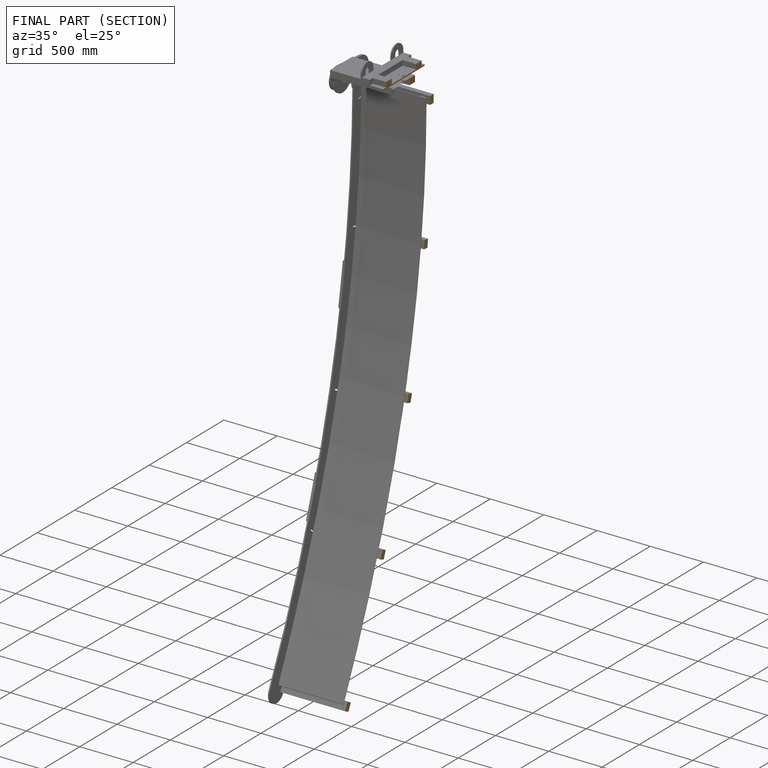
[diagram: finished part — half-section view (interior)]
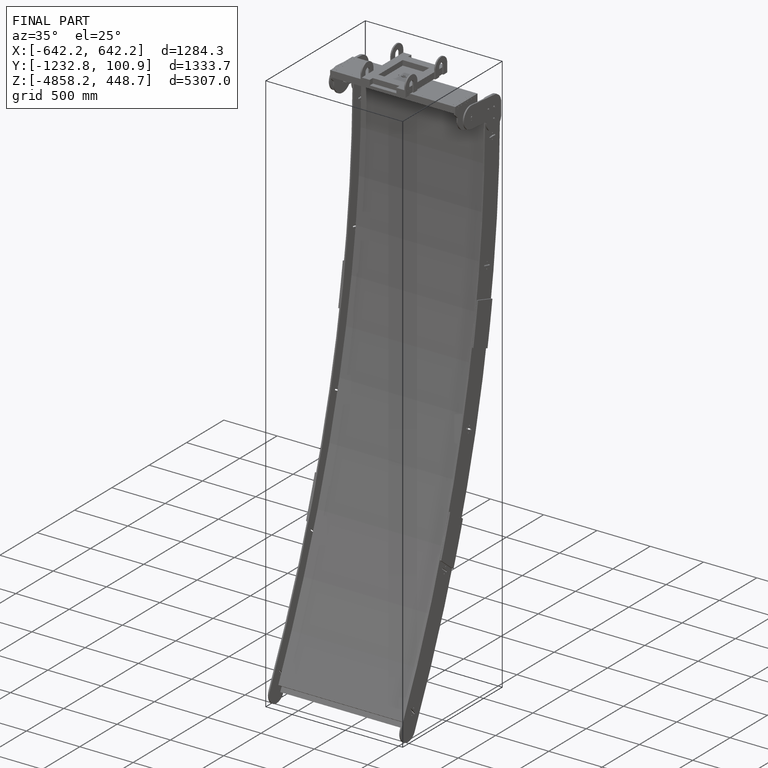
[diagram: finished part — iso view with bounding-box wireframe]
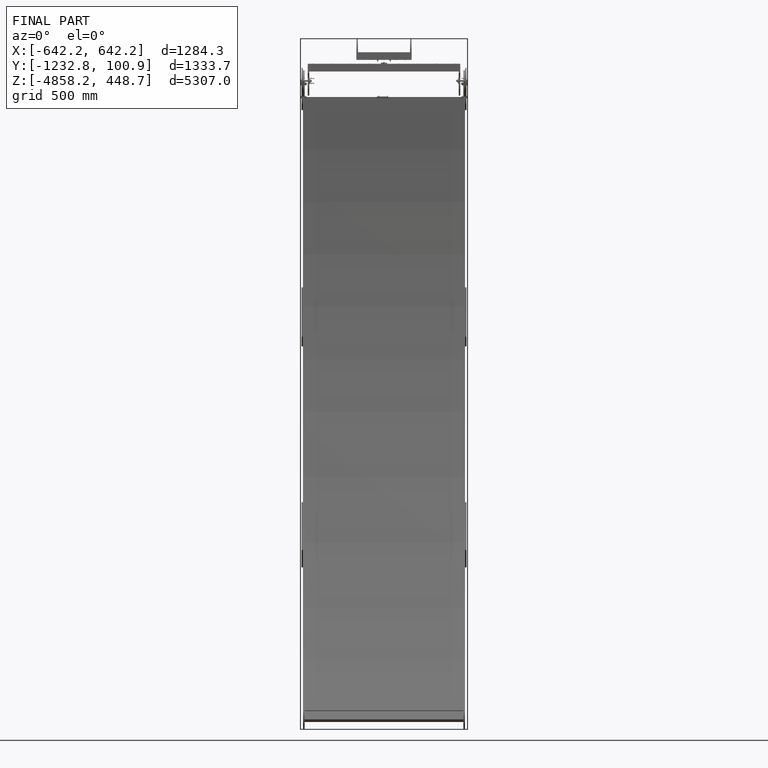
[diagram: finished part — front view with bounding-box wireframe]
